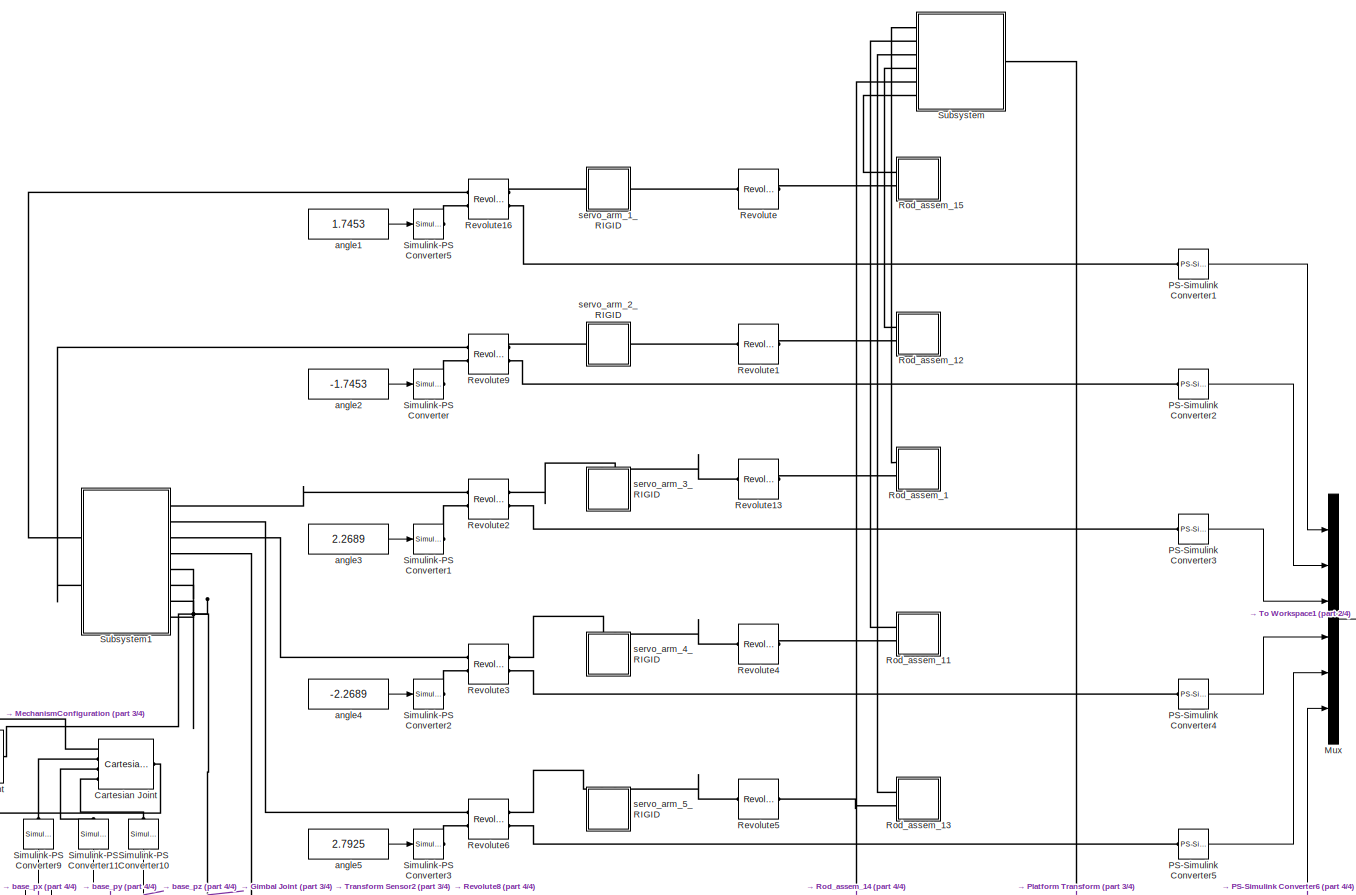
[diagram: root canvas - part 1/4, top center region]
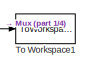
[diagram: root canvas - part 2/4, middle right region]
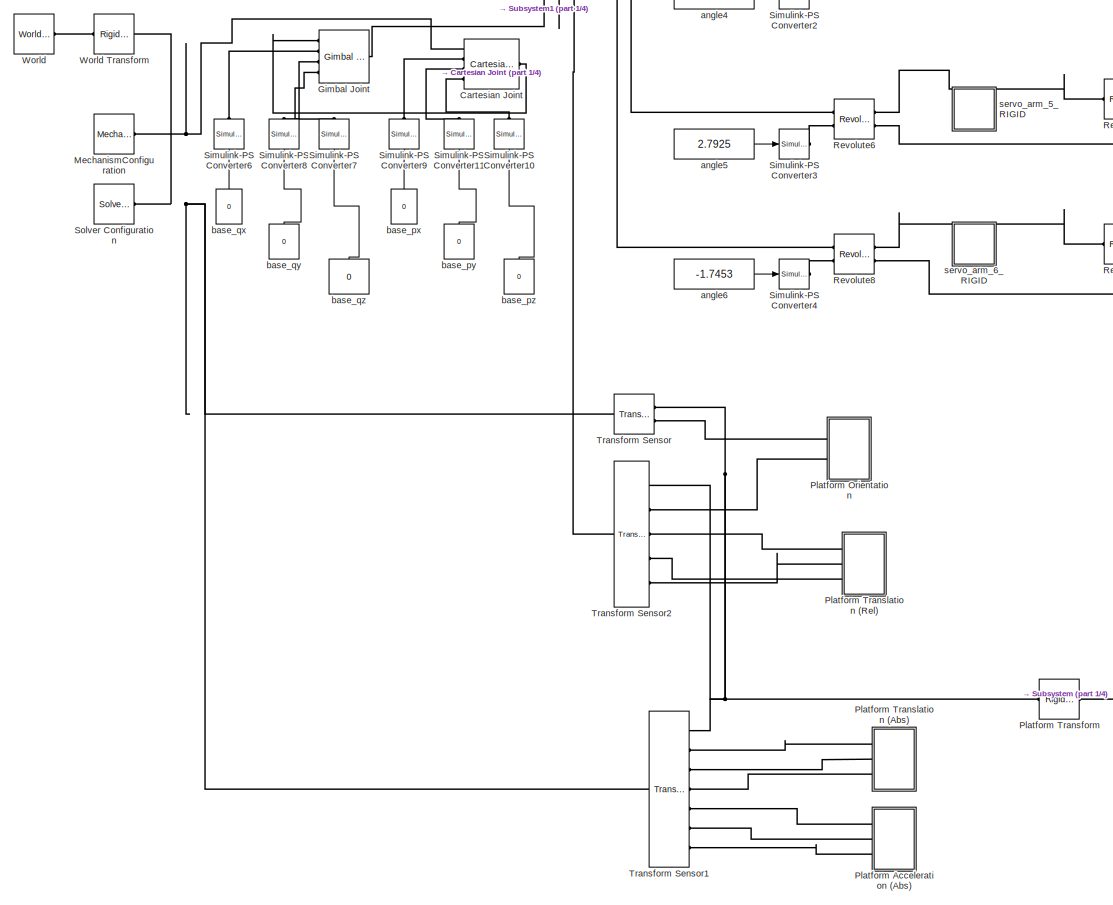
[diagram: root canvas - part 3/4, bottom left region]
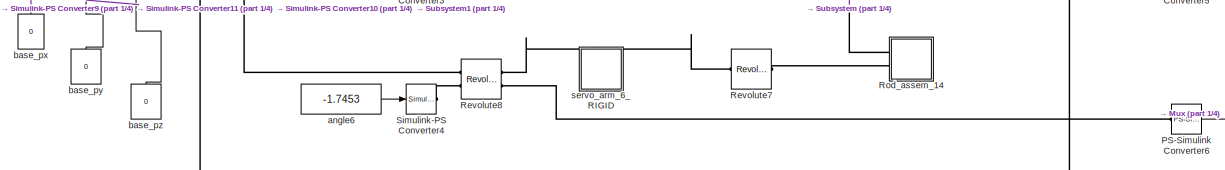
[diagram: root canvas - part 4/4, central region]
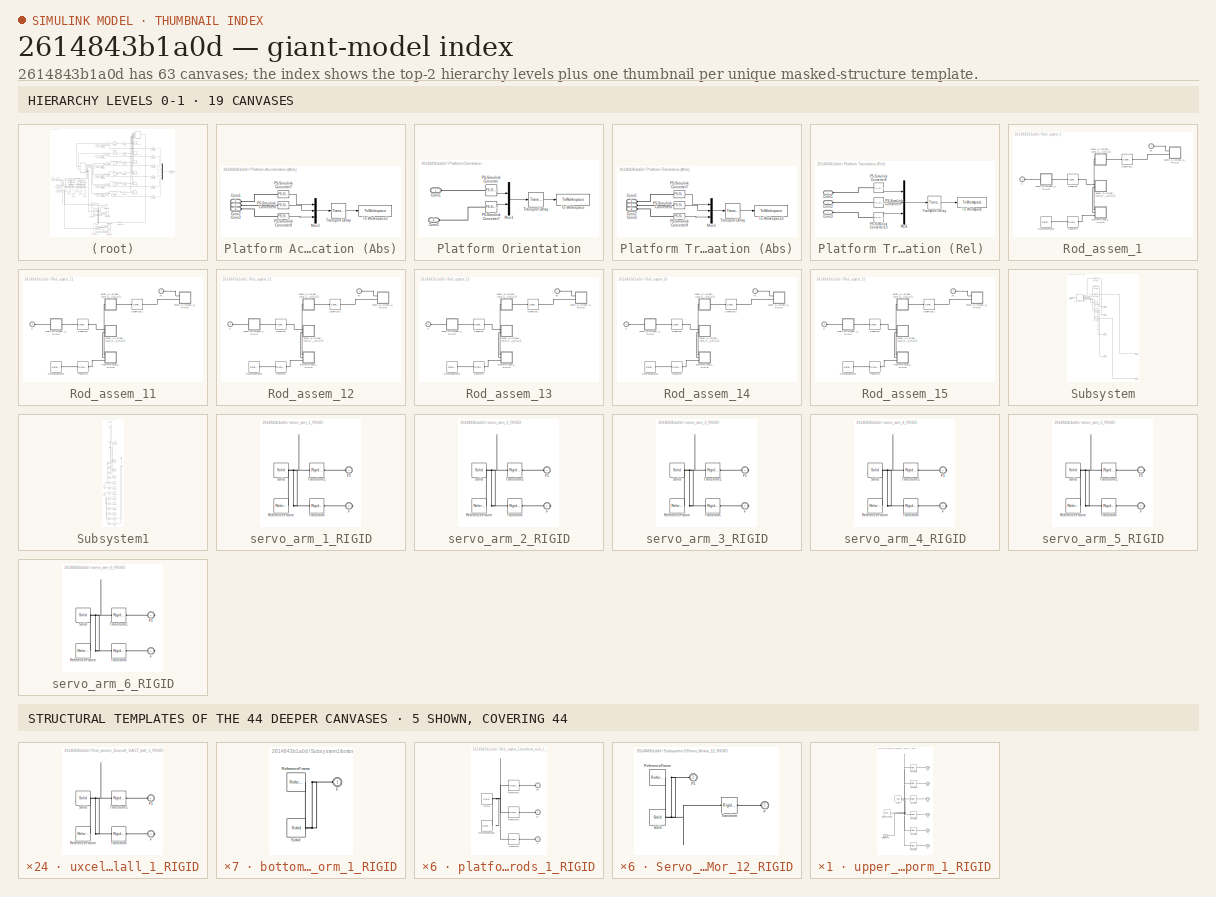
[diagram: thumbnail index - top-2 hierarchy levels (19 canvases) + 5 structural-template representatives of the remaining 44 canvases]
MODEL slx_2614843b1a0d
KIND model
CONFIG AbsTol = auto
CONFIG EnableMultiTasking = off
CONFIG FixedStep = auto
CONFIG MaxStep = auto
CONFIG MinStep = 1e-6
CONFIG RelTol = auto
CONFIG SampleTimeConstraint = Unconstrained
CONFIG Solver = VariableStepAuto
CONFIG SolverName = VariableStepAuto
CONFIG StartTime = 0.0
CONFIG StopTime = inf
WORKSPACE source: external: MATLAB File  (data not in archive)
BLOCK [Reference] Cartesian Joint  REF=sm_lib/Joints/Cartesian
Joint
  Ports = [0, 0, 0, 0, 0, 4, 1]
  SourceBlock = sm_lib/Joints/Cartesian\nJoint
  SourceProductBaseCode = MS
  SourceProductName = Simscape Multibody
  SourceType = Cartesian\nJoint
BLOCK [Reference] Gimbal Joint  REF=sm_lib/Joints/Gimbal Joint
  Ports = [0, 0, 0, 0, 0, 4, 1]
  SourceBlock = sm_lib/Joints/Gimbal Joint
  SourceProductBaseCode = MS
  SourceProductName = Simscape Multibody
  SourceType = Gimbal Joint
BLOCK [Reference] MechanismConfiguration  REF=sm_lib/Utilities/Mechanism
Configuration
  Ports = [0, 0, 0, 0, 0, 0, 1]
  SourceBlock = sm_lib/Utilities/Mechanism\nConfiguration
  SourceProductBaseCode = MS
  SourceProductName = Simscape Multibody
  SourceType = Mechanism\nConfiguration
BLOCK [Mux] Mux
  DisplayOption = bar
  Inputs = 6
  Ports = [6, 1]
BLOCK [Reference] PS-Simulink Converter1  REF=nesl_utility/PS-Simulink
Converter
  Ports = [0, 1, 0, 0, 0, 1]
  SourceBlock = nesl_utility/PS-Simulink\nConverter
  SourceProductBaseCode = SS
  SourceProductName = Simscape
  SourceType = PS-Simulink\nConverter
BLOCK [Reference] PS-Simulink Converter2  REF=nesl_utility/PS-Simulink
Converter
  Ports = [0, 1, 0, 0, 0, 1]
  SourceBlock = nesl_utility/PS-Simulink\nConverter
  SourceProductBaseCode = SS
  SourceProductName = Simscape
  SourceType = PS-Simulink\nConverter
BLOCK [Reference] PS-Simulink Converter3  REF=nesl_utility/PS-Simulink
Converter
  Ports = [0, 1, 0, 0, 0, 1]
  SourceBlock = nesl_utility/PS-Simulink\nConverter
  SourceProductBaseCode = SS
  SourceProductName = Simscape
  SourceType = PS-Simulink\nConverter
BLOCK [Reference] PS-Simulink Converter4  REF=nesl_utility/PS-Simulink
Converter
  Ports = [0, 1, 0, 0, 0, 1]
  SourceBlock = nesl_utility/PS-Simulink\nConverter
  SourceProductBaseCode = SS
  SourceProductName = Simscape
  SourceType = PS-Simulink\nConverter
BLOCK [Reference] PS-Simulink Converter5  REF=nesl_utility/PS-Simulink
Converter
  Ports = [0, 1, 0, 0, 0, 1]
  SourceBlock = nesl_utility/PS-Simulink\nConverter
  SourceProductBaseCode = SS
  SourceProductName = Simscape
  SourceType = PS-Simulink\nConverter
BLOCK [Reference] PS-Simulink Converter6  REF=nesl_utility/PS-Simulink
Converter
  Ports = [0, 1, 0, 0, 0, 1]
  SourceBlock = nesl_utility/PS-Simulink\nConverter
  SourceProductBaseCode = SS
  SourceProductName = Simscape
  SourceType = PS-Simulink\nConverter
BLOCK [SubSystem] Platform Acceleration (Abs)
  Ports = [0, 0, 0, 0, 0, 3]
  RequestExecContextInheritance = off
  Variant = off
BLOCK [PMIOPort] Platform Acceleration (Abs)/Conn1
  Port = 1
  Side = Left
BLOCK [PMIOPort] Platform Acceleration (Abs)/Conn2
  Port = 2
  Side = Left
BLOCK [PMIOPort] Platform Acceleration (Abs)/Conn3
  Port = 3
  Side = Left
BLOCK [Mux] Platform Acceleration (Abs)/Mux1
  DisplayOption = bar
  Inputs = 3
  Ports = [3, 1]
BLOCK [Reference] Platform Acceleration (Abs)/PS-Simulink Converter7  REF=nesl_utility/PS-Simulink
Converter
  Ports = [0, 1, 0, 0, 0, 1]
  SourceBlock = nesl_utility/PS-Simulink\nConverter
  SourceProductBaseCode = SS
  SourceProductName = Simscape
  SourceType = PS-Simulink\nConverter
BLOCK [Reference] Platform Acceleration (Abs)/PS-Simulink Converter8  REF=nesl_utility/PS-Simulink
Converter
  Ports = [0, 1, 0, 0, 0, 1]
  SourceBlock = nesl_utility/PS-Simulink\nConverter
  SourceProductBaseCode = SS
  SourceProductName = Simscape
  SourceType = PS-Simulink\nConverter
BLOCK [Reference] Platform Acceleration (Abs)/PS-Simulink Converter9  REF=nesl_utility/PS-Simulink
Converter
  Ports = [0, 1, 0, 0, 0, 1]
  SourceBlock = nesl_utility/PS-Simulink\nConverter
  SourceProductBaseCode = SS
  SourceProductName = Simscape
  SourceType = PS-Simulink\nConverter
BLOCK [ToWorkspace] Platform Acceleration (Abs)/To Workspace2
  FixptAsFi = on
  MaxDataPoints = inf
  Ports = [1]
  SampleTime = -1
  Save2DSignal = 3-D array (concatenate along third dimension)
  SaveFormat = Structure With Time
  VariableName = platform_acceleration
BLOCK [TransportDelay] Platform Acceleration (Abs)/Transport Delay
  DelayTime = sensor_delay
  Ports = [1, 1]
BLOCK [SubSystem] Platform Orientation
  Ports = [0, 0, 0, 0, 0, 2]
  RequestExecContextInheritance = off
  Variant = off
BLOCK [PMIOPort] Platform Orientation/Conn1
  Port = 1
  Side = Left
BLOCK [PMIOPort] Platform Orientation/Conn2
  Port = 2
  Side = Left
BLOCK [Mux] Platform Orientation/Mux1
  DisplayOption = bar
  Inputs = 2
  Ports = [2, 1]
BLOCK [Reference] Platform Orientation/PS-Simulink Converter  REF=nesl_utility/PS-Simulink
Converter
  Ports = [0, 1, 0, 0, 0, 1]
  SourceBlock = nesl_utility/PS-Simulink\nConverter
  SourceProductBaseCode = SS
  SourceProductName = Simscape
  SourceType = PS-Simulink\nConverter
BLOCK [Reference] Platform Orientation/PS-Simulink Converter7  REF=nesl_utility/PS-Simulink
Converter
  Ports = [0, 1, 0, 0, 0, 1]
  SourceBlock = nesl_utility/PS-Simulink\nConverter
  SourceProductBaseCode = SS
  SourceProductName = Simscape
  SourceType = PS-Simulink\nConverter
BLOCK [ToWorkspace] Platform Orientation/To Workspace
  FixptAsFi = on
  MaxDataPoints = inf
  Ports = [1]
  SampleTime = -1
  Save2DSignal = 3-D array (concatenate along third dimension)
  SaveFormat = Structure With Time
  VariableName = platform_orientation
BLOCK [TransportDelay] Platform Orientation/Transport Delay
  DelayTime = sensor_delay
  Ports = [1, 1]
BLOCK [Reference] Platform Transform   REF=sm_lib/Frames and
Transforms/Rigid
Transform
  Ports = [0, 0, 0, 0, 0, 1, 1]
  SourceBlock = sm_lib/Frames and\nTransforms/Rigid\nTransform
  SourceProductBaseCode = MS
  SourceProductName = Simscape Multibody
  SourceType = Rigid\nTransform
BLOCK [SubSystem] Platform Translation (Abs)
  Ports = [0, 0, 0, 0, 0, 3]
  RequestExecContextInheritance = off
  Variant = off
BLOCK [PMIOPort] Platform Translation (Abs)/Conn1
  Port = 1
  Side = Left
BLOCK [PMIOPort] Platform Translation (Abs)/Conn2
  Port = 2
  Side = Left
BLOCK [PMIOPort] Platform Translation (Abs)/Conn3
  Port = 3
  Side = Left
BLOCK [Mux] Platform Translation (Abs)/Mux1
  DisplayOption = bar
  Inputs = 3
  Ports = [3, 1]
BLOCK [Reference] Platform Translation (Abs)/PS-Simulink Converter7  REF=nesl_utility/PS-Simulink
Converter
  Ports = [0, 1, 0, 0, 0, 1]
  SourceBlock = nesl_utility/PS-Simulink\nConverter
  SourceProductBaseCode = SS
  SourceProductName = Simscape
  SourceType = PS-Simulink\nConverter
BLOCK [Reference] Platform Translation (Abs)/PS-Simulink Converter8  REF=nesl_utility/PS-Simulink
Converter
  Ports = [0, 1, 0, 0, 0, 1]
  SourceBlock = nesl_utility/PS-Simulink\nConverter
  SourceProductBaseCode = SS
  SourceProductName = Simscape
  SourceType = PS-Simulink\nConverter
BLOCK [Reference] Platform Translation (Abs)/PS-Simulink Converter9  REF=nesl_utility/PS-Simulink
Converter
  Ports = [0, 1, 0, 0, 0, 1]
  SourceBlock = nesl_utility/PS-Simulink\nConverter
  SourceProductBaseCode = SS
  SourceProductName = Simscape
  SourceType = PS-Simulink\nConverter
BLOCK [ToWorkspace] Platform Translation (Abs)/To Workspace2
  FixptAsFi = on
  MaxDataPoints = inf
  Ports = [1]
  SampleTime = -1
  Save2DSignal = 3-D array (concatenate along third dimension)
  SaveFormat = Structure With Time
  VariableName = platform_translation_abs
BLOCK [TransportDelay] Platform Translation (Abs)/Transport Delay
  DelayTime = sensor_delay
  Ports = [1, 1]
BLOCK [SubSystem] Platform Translation (Rel) 
  Ports = [0, 0, 0, 0, 0, 3]
  RequestExecContextInheritance = off
  Variant = off
BLOCK [PMIOPort] Platform Translation (Rel) /Conn1
  Port = 1
  Side = Left
BLOCK [PMIOPort] Platform Translation (Rel) /Conn2
  Port = 2
  Side = Left
BLOCK [PMIOPort] Platform Translation (Rel) /Conn3
  Port = 3
  Side = Left
BLOCK [Mux] Platform Translation (Rel) /Mux1
  DisplayOption = bar
  Inputs = 3
  Ports = [3, 1]
BLOCK [Reference] Platform Translation (Rel) /PS-Simulink Converter10  REF=nesl_utility/PS-Simulink
Converter
  Ports = [0, 1, 0, 0, 0, 1]
  SourceBlock = nesl_utility/PS-Simulink\nConverter
  SourceProductBaseCode = SS
  SourceProductName = Simscape
  SourceType = PS-Simulink\nConverter
BLOCK [Reference] Platform Translation (Rel) /PS-Simulink Converter8  REF=nesl_utility/PS-Simulink
Converter
  Ports = [0, 1, 0, 0, 0, 1]
  SourceBlock = nesl_utility/PS-Simulink\nConverter
  SourceProductBaseCode = SS
  SourceProductName = Simscape
  SourceType = PS-Simulink\nConverter
BLOCK [Reference] Platform Translation (Rel) /PS-Simulink Converter9  REF=nesl_utility/PS-Simulink
Converter
  Ports = [0, 1, 0, 0, 0, 1]
  SourceBlock = nesl_utility/PS-Simulink\nConverter
  SourceProductBaseCode = SS
  SourceProductName = Simscape
  SourceType = PS-Simulink\nConverter
BLOCK [ToWorkspace] Platform Translation (Rel) /To Workspace
  FixptAsFi = on
  MaxDataPoints = inf
  Ports = [1]
  SampleTime = -1
  Save2DSignal = 3-D array (concatenate along third dimension)
  SaveFormat = Structure With Time
  VariableName = platform_translation_rel
BLOCK [TransportDelay] Platform Translation (Rel) /Transport Delay
  DelayTime = sensor_delay
  Ports = [1, 1]
BLOCK [Reference] Revolute  REF=sm_lib/Joints/Revolute Joint
  Ports = [0, 0, 0, 0, 0, 1, 1]
  SourceBlock = sm_lib/Joints/Revolute Joint
  SourceProductBaseCode = MS
  SourceProductName = Simscape Multibody
  SourceType = Revolute Joint
BLOCK [Reference] Revolute1  REF=sm_lib/Joints/Revolute Joint
  Ports = [0, 0, 0, 0, 0, 1, 1]
  SourceBlock = sm_lib/Joints/Revolute Joint
  SourceProductBaseCode = MS
  SourceProductName = Simscape Multibody
  SourceType = Revolute Joint
BLOCK [Reference] Revolute13  REF=sm_lib/Joints/Revolute Joint
  Ports = [0, 0, 0, 0, 0, 1, 1]
  SourceBlock = sm_lib/Joints/Revolute Joint
  SourceProductBaseCode = MS
  SourceProductName = Simscape Multibody
  SourceType = Revolute Joint
BLOCK [Reference] Revolute16  REF=sm_lib/Joints/Revolute Joint
  Ports = [0, 0, 0, 0, 0, 2, 2]
  SourceBlock = sm_lib/Joints/Revolute Joint
  SourceProductBaseCode = MS
  SourceProductName = Simscape Multibody
  SourceType = Revolute Joint
BLOCK [Reference] Revolute2  REF=sm_lib/Joints/Revolute Joint
  Ports = [0, 0, 0, 0, 0, 2, 2]
  SourceBlock = sm_lib/Joints/Revolute Joint
  SourceProductBaseCode = MS
  SourceProductName = Simscape Multibody
  SourceType = Revolute Joint
BLOCK [Reference] Revolute3  REF=sm_lib/Joints/Revolute Joint
  Ports = [0, 0, 0, 0, 0, 2, 2]
  SourceBlock = sm_lib/Joints/Revolute Joint
  SourceProductBaseCode = MS
  SourceProductName = Simscape Multibody
  SourceType = Revolute Joint
BLOCK [Reference] Revolute4  REF=sm_lib/Joints/Revolute Joint
  Ports = [0, 0, 0, 0, 0, 1, 1]
  SourceBlock = sm_lib/Joints/Revolute Joint
  SourceProductBaseCode = MS
  SourceProductName = Simscape Multibody
  SourceType = Revolute Joint
BLOCK [Reference] Revolute5  REF=sm_lib/Joints/Revolute Joint
  Ports = [0, 0, 0, 0, 0, 1, 1]
  SourceBlock = sm_lib/Joints/Revolute Joint
  SourceProductBaseCode = MS
  SourceProductName = Simscape Multibody
  SourceType = Revolute Joint
BLOCK [Reference] Revolute6  REF=sm_lib/Joints/Revolute Joint
  Ports = [0, 0, 0, 0, 0, 2, 2]
  SourceBlock = sm_lib/Joints/Revolute Joint
  SourceProductBaseCode = MS
  SourceProductName = Simscape Multibody
  SourceType = Revolute Joint
BLOCK [Reference] Revolute7  REF=sm_lib/Joints/Revolute Joint
  Ports = [0, 0, 0, 0, 0, 1, 1]
  SourceBlock = sm_lib/Joints/Revolute Joint
  SourceProductBaseCode = MS
  SourceProductName = Simscape Multibody
  SourceType = Revolute Joint
BLOCK [Reference] Revolute8  REF=sm_lib/Joints/Revolute Joint
  Ports = [0, 0, 0, 0, 0, 2, 2]
  SourceBlock = sm_lib/Joints/Revolute Joint
  SourceProductBaseCode = MS
  SourceProductName = Simscape Multibody
  SourceType = Revolute Joint
BLOCK [Reference] Revolute9  REF=sm_lib/Joints/Revolute Joint
  Ports = [0, 0, 0, 0, 0, 2, 2]
  SourceBlock = sm_lib/Joints/Revolute Joint
  SourceProductBaseCode = MS
  SourceProductName = Simscape Multibody
  SourceType = Revolute Joint
BLOCK [SubSystem] Rod_assem_1
  Ports = [0, 0, 0, 0, 0, 2]
  RequestExecContextInheritance = off
  Variant = off
BLOCK [PMIOPort] Rod_assem_1/F
  Port = 2
  Side = Left
BLOCK [PMIOPort] Rod_assem_1/F1
  Port = 1
  Side = Left
BLOCK [Reference] Rod_assem_1/ReferenceFrame  REF=sm_lib/Frames and
Transforms/Reference
Frame
  Ports = [0, 0, 0, 0, 0, 0, 1]
  SourceBlock = sm_lib/Frames and\nTransforms/Reference\nFrame
  SourceProductBaseCode = MS
  SourceProductName = Simscape Multibody
  SourceType = Reference\nFrame
BLOCK [Reference] Rod_assem_1/Spherical  REF=sm_lib/Joints/Spherical
Joint
  Ports = [0, 0, 0, 0, 0, 1, 1]
  SourceBlock = sm_lib/Joints/Spherical\nJoint
  SourceProductBaseCode = MS
  SourceProductName = Simscape Multibody
  SourceType = Spherical\nJoint
BLOCK [Reference] Rod_assem_1/Spherical1  REF=sm_lib/Joints/Spherical
Joint
  Ports = [0, 0, 0, 0, 0, 1, 1]
  SourceBlock = sm_lib/Joints/Spherical\nJoint
  SourceProductBaseCode = MS
  SourceProductName = Simscape Multibody
  SourceType = Spherical\nJoint
BLOCK [Reference] Rod_assem_1/Transform  REF=sm_lib/Frames and
Transforms/Rigid
Transform
  Ports = [0, 0, 0, 0, 0, 1, 1]
  SourceBlock = sm_lib/Frames and\nTransforms/Rigid\nTransform
  SourceProductBaseCode = MS
  SourceProductName = Simscape Multibody
  SourceType = Rigid\nTransform
BLOCK [SubSystem] Rod_assem_1/platform_rods_1_RIGID
  Ports = [0, 0, 0, 0, 0, 3]
  RequestExecContextInheritance = off
  Variant = off
BLOCK [PMIOPort] Rod_assem_1/platform_rods_1_RIGID/F
  Port = 3
  Side = Left
BLOCK [PMIOPort] Rod_assem_1/platform_rods_1_RIGID/F1
  Port = 2
  Side = Left
BLOCK [PMIOPort] Rod_assem_1/platform_rods_1_RIGID/F2
  Port = 1
  Side = Left
BLOCK [Reference] Rod_assem_1/platform_rods_1_RIGID/ReferenceFrame  REF=sm_lib/Frames and
Transforms/Reference
Frame
  Ports = [0, 0, 0, 0, 0, 0, 1]
  SourceBlock = sm_lib/Frames and\nTransforms/Reference\nFrame
  SourceProductBaseCode = MS
  SourceProductName = Simscape Multibody
  SourceType = Reference\nFrame
BLOCK [Reference] Rod_assem_1/platform_rods_1_RIGID/Solid  REF=sm_lib/Body Elements/Solid
  Ports = [0, 0, 0, 0, 0, 0, 1]
  SourceBlock = sm_lib/Body Elements/Solid
  SourceProductBaseCode = MS
  SourceProductName = Simscape Multibody
  SourceType = Solid
BLOCK [Reference] Rod_assem_1/platform_rods_1_RIGID/Transform  REF=sm_lib/Frames and
Transforms/Rigid
Transform
  Ports = [0, 0, 0, 0, 0, 1, 1]
  SourceBlock = sm_lib/Frames and\nTransforms/Rigid\nTransform
  SourceProductBaseCode = MS
  SourceProductName = Simscape Multibody
  SourceType = Rigid\nTransform
BLOCK [Reference] Rod_assem_1/platform_rods_1_RIGID/Transform1  REF=sm_lib/Frames and
Transforms/Rigid
Transform
  Ports = [0, 0, 0, 0, 0, 1, 1]
  SourceBlock = sm_lib/Frames and\nTransforms/Rigid\nTransform
  SourceProductBaseCode = MS
  SourceProductName = Simscape Multibody
  SourceType = Rigid\nTransform
BLOCK [Reference] Rod_assem_1/platform_rods_1_RIGID/Transform2  REF=sm_lib/Frames and
Transforms/Rigid
Transform
  Ports = [0, 0, 0, 0, 0, 1, 1]
  SourceBlock = sm_lib/Frames and\nTransforms/Rigid\nTransform
  SourceProductBaseCode = MS
  SourceProductName = Simscape Multibody
  SourceType = Rigid\nTransform
BLOCK [SubSystem] Rod_assem_1/uxcell_SA5T_ball_1_RIGID
  Ports = [0, 0, 0, 0, 0, 1, 1]
  RequestExecContextInheritance = off
  Variant = off
BLOCK [PMIOPort] Rod_assem_1/uxcell_SA5T_ball_1_RIGID/F
  Port = 2
  Side = Right
BLOCK [PMIOPort] Rod_assem_1/uxcell_SA5T_ball_1_RIGID/F1
  Port = 1
  Side = Left
BLOCK [Reference] Rod_assem_1/uxcell_SA5T_ball_1_RIGID/ReferenceFrame  REF=sm_lib/Frames and
Transforms/Reference
Frame
  Ports = [0, 0, 0, 0, 0, 0, 1]
  SourceBlock = sm_lib/Frames and\nTransforms/Reference\nFrame
  SourceProductBaseCode = MS
  SourceProductName = Simscape Multibody
  SourceType = Reference\nFrame
BLOCK [Reference] Rod_assem_1/uxcell_SA5T_ball_1_RIGID/Solid  REF=sm_lib/Body Elements/Solid
  Ports = [0, 0, 0, 0, 0, 0, 1]
  SourceBlock = sm_lib/Body Elements/Solid
  SourceProductBaseCode = MS
  SourceProductName = Simscape Multibody
  SourceType = Solid
BLOCK [Reference] Rod_assem_1/uxcell_SA5T_ball_1_RIGID/Transform  REF=sm_lib/Frames and
Transforms/Rigid
Transform
  Ports = [0, 0, 0, 0, 0, 1, 1]
  SourceBlock = sm_lib/Frames and\nTransforms/Rigid\nTransform
  SourceProductBaseCode = MS
  SourceProductName = Simscape Multibody
  SourceType = Rigid\nTransform
BLOCK [Reference] Rod_assem_1/uxcell_SA5T_ball_1_RIGID/Transform1  REF=sm_lib/Frames and
Transforms/Rigid
Transform
  Ports = [0, 0, 0, 0, 0, 1, 1]
  SourceBlock = sm_lib/Frames and\nTransforms/Rigid\nTransform
  SourceProductBaseCode = MS
  SourceProductName = Simscape Multibody
  SourceType = Rigid\nTransform
BLOCK [SubSystem] Rod_assem_1/uxcell_SA5T_ball_2_RIGID
  Ports = [0, 0, 0, 0, 0, 2]
  RequestExecContextInheritance = off
  Variant = off
BLOCK [PMIOPort] Rod_assem_1/uxcell_SA5T_ball_2_RIGID/F
  Port = 2
  Side = Left
BLOCK [PMIOPort] Rod_assem_1/uxcell_SA5T_ball_2_RIGID/F1
  Port = 1
  Side = Left
BLOCK [Reference] Rod_assem_1/uxcell_SA5T_ball_2_RIGID/ReferenceFrame  REF=sm_lib/Frames and
Transforms/Reference
Frame
  Ports = [0, 0, 0, 0, 0, 0, 1]
  SourceBlock = sm_lib/Frames and\nTransforms/Reference\nFrame
  SourceProductBaseCode = MS
  SourceProductName = Simscape Multibody
  SourceType = Reference\nFrame
BLOCK [Reference] Rod_assem_1/uxcell_SA5T_ball_2_RIGID/Solid  REF=sm_lib/Body Elements/Solid
  Ports = [0, 0, 0, 0, 0, 0, 1]
  SourceBlock = sm_lib/Body Elements/Solid
  SourceProductBaseCode = MS
  SourceProductName = Simscape Multibody
  SourceType = Solid
BLOCK [Reference] Rod_assem_1/uxcell_SA5T_ball_2_RIGID/Transform  REF=sm_lib/Frames and
Transforms/Rigid
Transform
  Ports = [0, 0, 0, 0, 0, 1, 1]
  SourceBlock = sm_lib/Frames and\nTransforms/Rigid\nTransform
  SourceProductBaseCode = MS
  SourceProductName = Simscape Multibody
  SourceType = Rigid\nTransform
BLOCK [Reference] Rod_assem_1/uxcell_SA5T_ball_2_RIGID/Transform1  REF=sm_lib/Frames and
Transforms/Rigid
Transform
  Ports = [0, 0, 0, 0, 0, 1, 1]
  SourceBlock = sm_lib/Frames and\nTransforms/Rigid\nTransform
  SourceProductBaseCode = MS
  SourceProductName = Simscape Multibody
  SourceType = Rigid\nTransform
BLOCK [SubSystem] Rod_assem_1/uxcell_SA5T_ball_joint_housing_1_RIGID
  Ports = [0, 0, 0, 0, 0, 2]
  RequestExecContextInheritance = off
  Variant = off
BLOCK [PMIOPort] Rod_assem_1/uxcell_SA5T_ball_joint_housing_1_RIGID/F
  Port = 2
  Side = Left
BLOCK [PMIOPort] Rod_assem_1/uxcell_SA5T_ball_joint_housing_1_RIGID/F1
  Port = 1
  Side = Left
BLOCK [Reference] Rod_assem_1/uxcell_SA5T_ball_joint_housing_1_RIGID/ReferenceFrame  REF=sm_lib/Frames and
Transforms/Reference
Frame
  Ports = [0, 0, 0, 0, 0, 0, 1]
  SourceBlock = sm_lib/Frames and\nTransforms/Reference\nFrame
  SourceProductBaseCode = MS
  SourceProductName = Simscape Multibody
  SourceType = Reference\nFrame
BLOCK [Reference] Rod_assem_1/uxcell_SA5T_ball_joint_housing_1_RIGID/Solid  REF=sm_lib/Body Elements/Solid
  Ports = [0, 0, 0, 0, 0, 0, 1]
  SourceBlock = sm_lib/Body Elements/Solid
  SourceProductBaseCode = MS
  SourceProductName = Simscape Multibody
  SourceType = Solid
BLOCK [Reference] Rod_assem_1/uxcell_SA5T_ball_joint_housing_1_RIGID/Transform  REF=sm_lib/Frames and
Transforms/Rigid
Transform
  Ports = [0, 0, 0, 0, 0, 1, 1]
  SourceBlock = sm_lib/Frames and\nTransforms/Rigid\nTransform
  SourceProductBaseCode = MS
  SourceProductName = Simscape Multibody
  SourceType = Rigid\nTransform
BLOCK [Reference] Rod_assem_1/uxcell_SA5T_ball_joint_housing_1_RIGID/Transform1  REF=sm_lib/Frames and
Transforms/Rigid
Transform
  Ports = [0, 0, 0, 0, 0, 1, 1]
  SourceBlock = sm_lib/Frames and\nTransforms/Rigid\nTransform
  SourceProductBaseCode = MS
  SourceProductName = Simscape Multibody
  SourceType = Rigid\nTransform
BLOCK [SubSystem] Rod_assem_1/uxcell_SA5T_ball_joint_housing_2_RIGID
  Ports = [0, 0, 0, 0, 0, 1, 1]
  RequestExecContextInheritance = off
  Variant = off
BLOCK [PMIOPort] Rod_assem_1/uxcell_SA5T_ball_joint_housing_2_RIGID/F
  Port = 1
  Side = Left
BLOCK [PMIOPort] Rod_assem_1/uxcell_SA5T_ball_joint_housing_2_RIGID/F1
  Port = 2
  Side = Right
BLOCK [Reference] Rod_assem_1/uxcell_SA5T_ball_joint_housing_2_RIGID/ReferenceFrame  REF=sm_lib/Frames and
Transforms/Reference
Frame
  Ports = [0, 0, 0, 0, 0, 0, 1]
  SourceBlock = sm_lib/Frames and\nTransforms/Reference\nFrame
  SourceProductBaseCode = MS
  SourceProductName = Simscape Multibody
  SourceType = Reference\nFrame
BLOCK [Reference] Rod_assem_1/uxcell_SA5T_ball_joint_housing_2_RIGID/Solid  REF=sm_lib/Body Elements/Solid
  Ports = [0, 0, 0, 0, 0, 0, 1]
  SourceBlock = sm_lib/Body Elements/Solid
  SourceProductBaseCode = MS
  SourceProductName = Simscape Multibody
  SourceType = Solid
BLOCK [Reference] Rod_assem_1/uxcell_SA5T_ball_joint_housing_2_RIGID/Transform  REF=sm_lib/Frames and
Transforms/Rigid
Transform
  Ports = [0, 0, 0, 0, 0, 1, 1]
  SourceBlock = sm_lib/Frames and\nTransforms/Rigid\nTransform
  SourceProductBaseCode = MS
  SourceProductName = Simscape Multibody
  SourceType = Rigid\nTransform
BLOCK [Reference] Rod_assem_1/uxcell_SA5T_ball_joint_housing_2_RIGID/Transform1  REF=sm_lib/Frames and
Transforms/Rigid
Transform
  Ports = [0, 0, 0, 0, 0, 1, 1]
  SourceBlock = sm_lib/Frames and\nTransforms/Rigid\nTransform
  SourceProductBaseCode = MS
  SourceProductName = Simscape Multibody
  SourceType = Rigid\nTransform
BLOCK [SubSystem] Rod_assem_11
  Ports = [0, 0, 0, 0, 0, 2]
  RequestExecContextInheritance = off
  Variant = off
BLOCK [PMIOPort] Rod_assem_11/F
  Port = 2
  Side = Left
BLOCK [PMIOPort] Rod_assem_11/F1
  Port = 1
  Side = Left
BLOCK [Reference] Rod_assem_11/ReferenceFrame  REF=sm_lib/Frames and
Transforms/Reference
Frame
  Ports = [0, 0, 0, 0, 0, 0, 1]
  SourceBlock = sm_lib/Frames and\nTransforms/Reference\nFrame
  SourceProductBaseCode = MS
  SourceProductName = Simscape Multibody
  SourceType = Reference\nFrame
BLOCK [Reference] Rod_assem_11/Spherical  REF=sm_lib/Joints/Spherical
Joint
  Ports = [0, 0, 0, 0, 0, 1, 1]
  SourceBlock = sm_lib/Joints/Spherical\nJoint
  SourceProductBaseCode = MS
  SourceProductName = Simscape Multibody
  SourceType = Spherical\nJoint
BLOCK [Reference] Rod_assem_11/Spherical1  REF=sm_lib/Joints/Spherical
Joint
  Ports = [0, 0, 0, 0, 0, 1, 1]
  SourceBlock = sm_lib/Joints/Spherical\nJoint
  SourceProductBaseCode = MS
  SourceProductName = Simscape Multibody
  SourceType = Spherical\nJoint
BLOCK [Reference] Rod_assem_11/Transform  REF=sm_lib/Frames and
Transforms/Rigid
Transform
  Ports = [0, 0, 0, 0, 0, 1, 1]
  SourceBlock = sm_lib/Frames and\nTransforms/Rigid\nTransform
  SourceProductBaseCode = MS
  SourceProductName = Simscape Multibody
  SourceType = Rigid\nTransform
BLOCK [SubSystem] Rod_assem_11/platform_rods_1_RIGID
  Ports = [0, 0, 0, 0, 0, 3]
  RequestExecContextInheritance = off
  Variant = off
BLOCK [PMIOPort] Rod_assem_11/platform_rods_1_RIGID/F
  Port = 3
  Side = Left
BLOCK [PMIOPort] Rod_assem_11/platform_rods_1_RIGID/F1
  Port = 2
  Side = Left
BLOCK [PMIOPort] Rod_assem_11/platform_rods_1_RIGID/F2
  Port = 1
  Side = Left
BLOCK [Reference] Rod_assem_11/platform_rods_1_RIGID/ReferenceFrame  REF=sm_lib/Frames and
Transforms/Reference
Frame
  Ports = [0, 0, 0, 0, 0, 0, 1]
  SourceBlock = sm_lib/Frames and\nTransforms/Reference\nFrame
  SourceProductBaseCode = MS
  SourceProductName = Simscape Multibody
  SourceType = Reference\nFrame
BLOCK [Reference] Rod_assem_11/platform_rods_1_RIGID/Solid  REF=sm_lib/Body Elements/Solid
  Ports = [0, 0, 0, 0, 0, 0, 1]
  SourceBlock = sm_lib/Body Elements/Solid
  SourceProductBaseCode = MS
  SourceProductName = Simscape Multibody
  SourceType = Solid
BLOCK [Reference] Rod_assem_11/platform_rods_1_RIGID/Transform  REF=sm_lib/Frames and
Transforms/Rigid
Transform
  Ports = [0, 0, 0, 0, 0, 1, 1]
  SourceBlock = sm_lib/Frames and\nTransforms/Rigid\nTransform
  SourceProductBaseCode = MS
  SourceProductName = Simscape Multibody
  SourceType = Rigid\nTransform
BLOCK [Reference] Rod_assem_11/platform_rods_1_RIGID/Transform1  REF=sm_lib/Frames and
Transforms/Rigid
Transform
  Ports = [0, 0, 0, 0, 0, 1, 1]
  SourceBlock = sm_lib/Frames and\nTransforms/Rigid\nTransform
  SourceProductBaseCode = MS
  SourceProductName = Simscape Multibody
  SourceType = Rigid\nTransform
BLOCK [Reference] Rod_assem_11/platform_rods_1_RIGID/Transform2  REF=sm_lib/Frames and
Transforms/Rigid
Transform
  Ports = [0, 0, 0, 0, 0, 1, 1]
  SourceBlock = sm_lib/Frames and\nTransforms/Rigid\nTransform
  SourceProductBaseCode = MS
  SourceProductName = Simscape Multibody
  SourceType = Rigid\nTransform
BLOCK [SubSystem] Rod_assem_11/uxcell_SA5T_ball_1_RIGID
  Ports = [0, 0, 0, 0, 0, 1, 1]
  RequestExecContextInheritance = off
  Variant = off
BLOCK [PMIOPort] Rod_assem_11/uxcell_SA5T_ball_1_RIGID/F
  Port = 2
  Side = Right
BLOCK [PMIOPort] Rod_assem_11/uxcell_SA5T_ball_1_RIGID/F1
  Port = 1
  Side = Left
BLOCK [Reference] Rod_assem_11/uxcell_SA5T_ball_1_RIGID/ReferenceFrame  REF=sm_lib/Frames and
Transforms/Reference
Frame
  Ports = [0, 0, 0, 0, 0, 0, 1]
  SourceBlock = sm_lib/Frames and\nTransforms/Reference\nFrame
  SourceProductBaseCode = MS
  SourceProductName = Simscape Multibody
  SourceType = Reference\nFrame
BLOCK [Reference] Rod_assem_11/uxcell_SA5T_ball_1_RIGID/Solid  REF=sm_lib/Body Elements/Solid
  Ports = [0, 0, 0, 0, 0, 0, 1]
  SourceBlock = sm_lib/Body Elements/Solid
  SourceProductBaseCode = MS
  SourceProductName = Simscape Multibody
  SourceType = Solid
BLOCK [Reference] Rod_assem_11/uxcell_SA5T_ball_1_RIGID/Transform  REF=sm_lib/Frames and
Transforms/Rigid
Transform
  Ports = [0, 0, 0, 0, 0, 1, 1]
  SourceBlock = sm_lib/Frames and\nTransforms/Rigid\nTransform
  SourceProductBaseCode = MS
  SourceProductName = Simscape Multibody
  SourceType = Rigid\nTransform
BLOCK [Reference] Rod_assem_11/uxcell_SA5T_ball_1_RIGID/Transform1  REF=sm_lib/Frames and
Transforms/Rigid
Transform
  Ports = [0, 0, 0, 0, 0, 1, 1]
  SourceBlock = sm_lib/Frames and\nTransforms/Rigid\nTransform
  SourceProductBaseCode = MS
  SourceProductName = Simscape Multibody
  SourceType = Rigid\nTransform
BLOCK [SubSystem] Rod_assem_11/uxcell_SA5T_ball_2_RIGID
  Ports = [0, 0, 0, 0, 0, 2]
  RequestExecContextInheritance = off
  Variant = off
BLOCK [PMIOPort] Rod_assem_11/uxcell_SA5T_ball_2_RIGID/F
  Port = 2
  Side = Left
BLOCK [PMIOPort] Rod_assem_11/uxcell_SA5T_ball_2_RIGID/F1
  Port = 1
  Side = Left
BLOCK [Reference] Rod_assem_11/uxcell_SA5T_ball_2_RIGID/ReferenceFrame  REF=sm_lib/Frames and
Transforms/Reference
Frame
  Ports = [0, 0, 0, 0, 0, 0, 1]
  SourceBlock = sm_lib/Frames and\nTransforms/Reference\nFrame
  SourceProductBaseCode = MS
  SourceProductName = Simscape Multibody
  SourceType = Reference\nFrame
BLOCK [Reference] Rod_assem_11/uxcell_SA5T_ball_2_RIGID/Solid  REF=sm_lib/Body Elements/Solid
  Ports = [0, 0, 0, 0, 0, 0, 1]
  SourceBlock = sm_lib/Body Elements/Solid
  SourceProductBaseCode = MS
  SourceProductName = Simscape Multibody
  SourceType = Solid
BLOCK [Reference] Rod_assem_11/uxcell_SA5T_ball_2_RIGID/Transform  REF=sm_lib/Frames and
Transforms/Rigid
Transform
  Ports = [0, 0, 0, 0, 0, 1, 1]
  SourceBlock = sm_lib/Frames and\nTransforms/Rigid\nTransform
  SourceProductBaseCode = MS
  SourceProductName = Simscape Multibody
  SourceType = Rigid\nTransform
BLOCK [Reference] Rod_assem_11/uxcell_SA5T_ball_2_RIGID/Transform1  REF=sm_lib/Frames and
Transforms/Rigid
Transform
  Ports = [0, 0, 0, 0, 0, 1, 1]
  SourceBlock = sm_lib/Frames and\nTransforms/Rigid\nTransform
  SourceProductBaseCode = MS
  SourceProductName = Simscape Multibody
  SourceType = Rigid\nTransform
BLOCK [SubSystem] Rod_assem_11/uxcell_SA5T_ball_joint_housing_1_RIGID
  Ports = [0, 0, 0, 0, 0, 2]
  RequestExecContextInheritance = off
  Variant = off
BLOCK [PMIOPort] Rod_assem_11/uxcell_SA5T_ball_joint_housing_1_RIGID/F
  Port = 2
  Side = Left
BLOCK [PMIOPort] Rod_assem_11/uxcell_SA5T_ball_joint_housing_1_RIGID/F1
  Port = 1
  Side = Left
BLOCK [Reference] Rod_assem_11/uxcell_SA5T_ball_joint_housing_1_RIGID/ReferenceFrame  REF=sm_lib/Frames and
Transforms/Reference
Frame
  Ports = [0, 0, 0, 0, 0, 0, 1]
  SourceBlock = sm_lib/Frames and\nTransforms/Reference\nFrame
  SourceProductBaseCode = MS
  SourceProductName = Simscape Multibody
  SourceType = Reference\nFrame
BLOCK [Reference] Rod_assem_11/uxcell_SA5T_ball_joint_housing_1_RIGID/Solid  REF=sm_lib/Body Elements/Solid
  Ports = [0, 0, 0, 0, 0, 0, 1]
  SourceBlock = sm_lib/Body Elements/Solid
  SourceProductBaseCode = MS
  SourceProductName = Simscape Multibody
  SourceType = Solid
BLOCK [Reference] Rod_assem_11/uxcell_SA5T_ball_joint_housing_1_RIGID/Transform  REF=sm_lib/Frames and
Transforms/Rigid
Transform
  Ports = [0, 0, 0, 0, 0, 1, 1]
  SourceBlock = sm_lib/Frames and\nTransforms/Rigid\nTransform
  SourceProductBaseCode = MS
  SourceProductName = Simscape Multibody
  SourceType = Rigid\nTransform
BLOCK [Reference] Rod_assem_11/uxcell_SA5T_ball_joint_housing_1_RIGID/Transform1  REF=sm_lib/Frames and
Transforms/Rigid
Transform
  Ports = [0, 0, 0, 0, 0, 1, 1]
  SourceBlock = sm_lib/Frames and\nTransforms/Rigid\nTransform
  SourceProductBaseCode = MS
  SourceProductName = Simscape Multibody
  SourceType = Rigid\nTransform
BLOCK [SubSystem] Rod_assem_11/uxcell_SA5T_ball_joint_housing_2_RIGID
  Ports = [0, 0, 0, 0, 0, 1, 1]
  RequestExecContextInheritance = off
  Variant = off
BLOCK [PMIOPort] Rod_assem_11/uxcell_SA5T_ball_joint_housing_2_RIGID/F
  Port = 1
  Side = Left
BLOCK [PMIOPort] Rod_assem_11/uxcell_SA5T_ball_joint_housing_2_RIGID/F1
  Port = 2
  Side = Right
BLOCK [Reference] Rod_assem_11/uxcell_SA5T_ball_joint_housing_2_RIGID/ReferenceFrame  REF=sm_lib/Frames and
Transforms/Reference
Frame
  Ports = [0, 0, 0, 0, 0, 0, 1]
  SourceBlock = sm_lib/Frames and\nTransforms/Reference\nFrame
  SourceProductBaseCode = MS
  SourceProductName = Simscape Multibody
  SourceType = Reference\nFrame
BLOCK [Reference] Rod_assem_11/uxcell_SA5T_ball_joint_housing_2_RIGID/Solid  REF=sm_lib/Body Elements/Solid
  Ports = [0, 0, 0, 0, 0, 0, 1]
  SourceBlock = sm_lib/Body Elements/Solid
  SourceProductBaseCode = MS
  SourceProductName = Simscape Multibody
  SourceType = Solid
BLOCK [Reference] Rod_assem_11/uxcell_SA5T_ball_joint_housing_2_RIGID/Transform  REF=sm_lib/Frames and
Transforms/Rigid
Transform
  Ports = [0, 0, 0, 0, 0, 1, 1]
  SourceBlock = sm_lib/Frames and\nTransforms/Rigid\nTransform
  SourceProductBaseCode = MS
  SourceProductName = Simscape Multibody
  SourceType = Rigid\nTransform
BLOCK [Reference] Rod_assem_11/uxcell_SA5T_ball_joint_housing_2_RIGID/Transform1  REF=sm_lib/Frames and
Transforms/Rigid
Transform
  Ports = [0, 0, 0, 0, 0, 1, 1]
  SourceBlock = sm_lib/Frames and\nTransforms/Rigid\nTransform
  SourceProductBaseCode = MS
  SourceProductName = Simscape Multibody
  SourceType = Rigid\nTransform
BLOCK [SubSystem] Rod_assem_12
  Ports = [0, 0, 0, 0, 0, 2]
  RequestExecContextInheritance = off
  Variant = off
BLOCK [PMIOPort] Rod_assem_12/F
  Port = 2
  Side = Left
BLOCK [PMIOPort] Rod_assem_12/F1
  Port = 1
  Side = Left
BLOCK [Reference] Rod_assem_12/ReferenceFrame  REF=sm_lib/Frames and
Transforms/Reference
Frame
  Ports = [0, 0, 0, 0, 0, 0, 1]
  SourceBlock = sm_lib/Frames and\nTransforms/Reference\nFrame
  SourceProductBaseCode = MS
  SourceProductName = Simscape Multibody
  SourceType = Reference\nFrame
BLOCK [Reference] Rod_assem_12/Spherical  REF=sm_lib/Joints/Spherical
Joint
  Ports = [0, 0, 0, 0, 0, 1, 1]
  SourceBlock = sm_lib/Joints/Spherical\nJoint
  SourceProductBaseCode = MS
  SourceProductName = Simscape Multibody
  SourceType = Spherical\nJoint
BLOCK [Reference] Rod_assem_12/Spherical1  REF=sm_lib/Joints/Spherical
Joint
  Ports = [0, 0, 0, 0, 0, 1, 1]
  SourceBlock = sm_lib/Joints/Spherical\nJoint
  SourceProductBaseCode = MS
  SourceProductName = Simscape Multibody
  SourceType = Spherical\nJoint
BLOCK [Reference] Rod_assem_12/Transform  REF=sm_lib/Frames and
Transforms/Rigid
Transform
  Ports = [0, 0, 0, 0, 0, 1, 1]
  SourceBlock = sm_lib/Frames and\nTransforms/Rigid\nTransform
  SourceProductBaseCode = MS
  SourceProductName = Simscape Multibody
  SourceType = Rigid\nTransform
BLOCK [SubSystem] Rod_assem_12/platform_rods_1_RIGID
  Ports = [0, 0, 0, 0, 0, 3]
  RequestExecContextInheritance = off
  Variant = off
BLOCK [PMIOPort] Rod_assem_12/platform_rods_1_RIGID/F
  Port = 3
  Side = Left
BLOCK [PMIOPort] Rod_assem_12/platform_rods_1_RIGID/F1
  Port = 2
  Side = Left
BLOCK [PMIOPort] Rod_assem_12/platform_rods_1_RIGID/F2
  Port = 1
  Side = Left
BLOCK [Reference] Rod_assem_12/platform_rods_1_RIGID/ReferenceFrame  REF=sm_lib/Frames and
Transforms/Reference
Frame
  Ports = [0, 0, 0, 0, 0, 0, 1]
  SourceBlock = sm_lib/Frames and\nTransforms/Reference\nFrame
  SourceProductBaseCode = MS
  SourceProductName = Simscape Multibody
  SourceType = Reference\nFrame
BLOCK [Reference] Rod_assem_12/platform_rods_1_RIGID/Solid  REF=sm_lib/Body Elements/Solid
  Ports = [0, 0, 0, 0, 0, 0, 1]
  SourceBlock = sm_lib/Body Elements/Solid
  SourceProductBaseCode = MS
  SourceProductName = Simscape Multibody
  SourceType = Solid
BLOCK [Reference] Rod_assem_12/platform_rods_1_RIGID/Transform  REF=sm_lib/Frames and
Transforms/Rigid
Transform
  Ports = [0, 0, 0, 0, 0, 1, 1]
  SourceBlock = sm_lib/Frames and\nTransforms/Rigid\nTransform
  SourceProductBaseCode = MS
  SourceProductName = Simscape Multibody
  SourceType = Rigid\nTransform
BLOCK [Reference] Rod_assem_12/platform_rods_1_RIGID/Transform1  REF=sm_lib/Frames and
Transforms/Rigid
Transform
  Ports = [0, 0, 0, 0, 0, 1, 1]
  SourceBlock = sm_lib/Frames and\nTransforms/Rigid\nTransform
  SourceProductBaseCode = MS
  SourceProductName = Simscape Multibody
  SourceType = Rigid\nTransform
BLOCK [Reference] Rod_assem_12/platform_rods_1_RIGID/Transform2  REF=sm_lib/Frames and
Transforms/Rigid
Transform
  Ports = [0, 0, 0, 0, 0, 1, 1]
  SourceBlock = sm_lib/Frames and\nTransforms/Rigid\nTransform
  SourceProductBaseCode = MS
  SourceProductName = Simscape Multibody
  SourceType = Rigid\nTransform
BLOCK [SubSystem] Rod_assem_12/uxcell_SA5T_ball_1_RIGID
  Ports = [0, 0, 0, 0, 0, 1, 1]
  RequestExecContextInheritance = off
  Variant = off
BLOCK [PMIOPort] Rod_assem_12/uxcell_SA5T_ball_1_RIGID/F
  Port = 2
  Side = Right
BLOCK [PMIOPort] Rod_assem_12/uxcell_SA5T_ball_1_RIGID/F1
  Port = 1
  Side = Left
BLOCK [Reference] Rod_assem_12/uxcell_SA5T_ball_1_RIGID/ReferenceFrame  REF=sm_lib/Frames and
Transforms/Reference
Frame
  Ports = [0, 0, 0, 0, 0, 0, 1]
  SourceBlock = sm_lib/Frames and\nTransforms/Reference\nFrame
  SourceProductBaseCode = MS
  SourceProductName = Simscape Multibody
  SourceType = Reference\nFrame
BLOCK [Reference] Rod_assem_12/uxcell_SA5T_ball_1_RIGID/Solid  REF=sm_lib/Body Elements/Solid
  Ports = [0, 0, 0, 0, 0, 0, 1]
  SourceBlock = sm_lib/Body Elements/Solid
  SourceProductBaseCode = MS
  SourceProductName = Simscape Multibody
  SourceType = Solid
BLOCK [Reference] Rod_assem_12/uxcell_SA5T_ball_1_RIGID/Transform  REF=sm_lib/Frames and
Transforms/Rigid
Transform
  Ports = [0, 0, 0, 0, 0, 1, 1]
  SourceBlock = sm_lib/Frames and\nTransforms/Rigid\nTransform
  SourceProductBaseCode = MS
  SourceProductName = Simscape Multibody
  SourceType = Rigid\nTransform
BLOCK [Reference] Rod_assem_12/uxcell_SA5T_ball_1_RIGID/Transform1  REF=sm_lib/Frames and
Transforms/Rigid
Transform
  Ports = [0, 0, 0, 0, 0, 1, 1]
  SourceBlock = sm_lib/Frames and\nTransforms/Rigid\nTransform
  SourceProductBaseCode = MS
  SourceProductName = Simscape Multibody
  SourceType = Rigid\nTransform
BLOCK [SubSystem] Rod_assem_12/uxcell_SA5T_ball_2_RIGID
  Ports = [0, 0, 0, 0, 0, 2]
  RequestExecContextInheritance = off
  Variant = off
BLOCK [PMIOPort] Rod_assem_12/uxcell_SA5T_ball_2_RIGID/F
  Port = 2
  Side = Left
BLOCK [PMIOPort] Rod_assem_12/uxcell_SA5T_ball_2_RIGID/F1
  Port = 1
  Side = Left
BLOCK [Reference] Rod_assem_12/uxcell_SA5T_ball_2_RIGID/ReferenceFrame  REF=sm_lib/Frames and
Transforms/Reference
Frame
  Ports = [0, 0, 0, 0, 0, 0, 1]
  SourceBlock = sm_lib/Frames and\nTransforms/Reference\nFrame
  SourceProductBaseCode = MS
  SourceProductName = Simscape Multibody
  SourceType = Reference\nFrame
BLOCK [Reference] Rod_assem_12/uxcell_SA5T_ball_2_RIGID/Solid  REF=sm_lib/Body Elements/Solid
  Ports = [0, 0, 0, 0, 0, 0, 1]
  SourceBlock = sm_lib/Body Elements/Solid
  SourceProductBaseCode = MS
  SourceProductName = Simscape Multibody
  SourceType = Solid
BLOCK [Reference] Rod_assem_12/uxcell_SA5T_ball_2_RIGID/Transform  REF=sm_lib/Frames and
Transforms/Rigid
Transform
  Ports = [0, 0, 0, 0, 0, 1, 1]
  SourceBlock = sm_lib/Frames and\nTransforms/Rigid\nTransform
  SourceProductBaseCode = MS
  SourceProductName = Simscape Multibody
  SourceType = Rigid\nTransform
BLOCK [Reference] Rod_assem_12/uxcell_SA5T_ball_2_RIGID/Transform1  REF=sm_lib/Frames and
Transforms/Rigid
Transform
  Ports = [0, 0, 0, 0, 0, 1, 1]
  SourceBlock = sm_lib/Frames and\nTransforms/Rigid\nTransform
  SourceProductBaseCode = MS
  SourceProductName = Simscape Multibody
  SourceType = Rigid\nTransform
BLOCK [SubSystem] Rod_assem_12/uxcell_SA5T_ball_joint_housing_1_RIGID
  Ports = [0, 0, 0, 0, 0, 2]
  RequestExecContextInheritance = off
  Variant = off
BLOCK [PMIOPort] Rod_assem_12/uxcell_SA5T_ball_joint_housing_1_RIGID/F
  Port = 2
  Side = Left
BLOCK [PMIOPort] Rod_assem_12/uxcell_SA5T_ball_joint_housing_1_RIGID/F1
  Port = 1
  Side = Left
BLOCK [Reference] Rod_assem_12/uxcell_SA5T_ball_joint_housing_1_RIGID/ReferenceFrame  REF=sm_lib/Frames and
Transforms/Reference
Frame
  Ports = [0, 0, 0, 0, 0, 0, 1]
  SourceBlock = sm_lib/Frames and\nTransforms/Reference\nFrame
  SourceProductBaseCode = MS
  SourceProductName = Simscape Multibody
  SourceType = Reference\nFrame
BLOCK [Reference] Rod_assem_12/uxcell_SA5T_ball_joint_housing_1_RIGID/Solid  REF=sm_lib/Body Elements/Solid
  Ports = [0, 0, 0, 0, 0, 0, 1]
  SourceBlock = sm_lib/Body Elements/Solid
  SourceProductBaseCode = MS
  SourceProductName = Simscape Multibody
  SourceType = Solid
BLOCK [Reference] Rod_assem_12/uxcell_SA5T_ball_joint_housing_1_RIGID/Transform  REF=sm_lib/Frames and
Transforms/Rigid
Transform
  Ports = [0, 0, 0, 0, 0, 1, 1]
  SourceBlock = sm_lib/Frames and\nTransforms/Rigid\nTransform
  SourceProductBaseCode = MS
  SourceProductName = Simscape Multibody
  SourceType = Rigid\nTransform
BLOCK [Reference] Rod_assem_12/uxcell_SA5T_ball_joint_housing_1_RIGID/Transform1  REF=sm_lib/Frames and
Transforms/Rigid
Transform
  Ports = [0, 0, 0, 0, 0, 1, 1]
  SourceBlock = sm_lib/Frames and\nTransforms/Rigid\nTransform
  SourceProductBaseCode = MS
  SourceProductName = Simscape Multibody
  SourceType = Rigid\nTransform
BLOCK [SubSystem] Rod_assem_12/uxcell_SA5T_ball_joint_housing_2_RIGID
  Ports = [0, 0, 0, 0, 0, 1, 1]
  RequestExecContextInheritance = off
  Variant = off
BLOCK [PMIOPort] Rod_assem_12/uxcell_SA5T_ball_joint_housing_2_RIGID/F
  Port = 1
  Side = Left
BLOCK [PMIOPort] Rod_assem_12/uxcell_SA5T_ball_joint_housing_2_RIGID/F1
  Port = 2
  Side = Right
BLOCK [Reference] Rod_assem_12/uxcell_SA5T_ball_joint_housing_2_RIGID/ReferenceFrame  REF=sm_lib/Frames and
Transforms/Reference
Frame
  Ports = [0, 0, 0, 0, 0, 0, 1]
  SourceBlock = sm_lib/Frames and\nTransforms/Reference\nFrame
  SourceProductBaseCode = MS
  SourceProductName = Simscape Multibody
  SourceType = Reference\nFrame
BLOCK [Reference] Rod_assem_12/uxcell_SA5T_ball_joint_housing_2_RIGID/Solid  REF=sm_lib/Body Elements/Solid
  Ports = [0, 0, 0, 0, 0, 0, 1]
  SourceBlock = sm_lib/Body Elements/Solid
  SourceProductBaseCode = MS
  SourceProductName = Simscape Multibody
  SourceType = Solid
BLOCK [Reference] Rod_assem_12/uxcell_SA5T_ball_joint_housing_2_RIGID/Transform  REF=sm_lib/Frames and
Transforms/Rigid
Transform
  Ports = [0, 0, 0, 0, 0, 1, 1]
  SourceBlock = sm_lib/Frames and\nTransforms/Rigid\nTransform
  SourceProductBaseCode = MS
  SourceProductName = Simscape Multibody
  SourceType = Rigid\nTransform
BLOCK [Reference] Rod_assem_12/uxcell_SA5T_ball_joint_housing_2_RIGID/Transform1  REF=sm_lib/Frames and
Transforms/Rigid
Transform
  Ports = [0, 0, 0, 0, 0, 1, 1]
  SourceBlock = sm_lib/Frames and\nTransforms/Rigid\nTransform
  SourceProductBaseCode = MS
  SourceProductName = Simscape Multibody
  SourceType = Rigid\nTransform
BLOCK [SubSystem] Rod_assem_13
  Ports = [0, 0, 0, 0, 0, 2]
  RequestExecContextInheritance = off
  Variant = off
BLOCK [PMIOPort] Rod_assem_13/F
  Port = 2
  Side = Left
BLOCK [PMIOPort] Rod_assem_13/F1
  Port = 1
  Side = Left
BLOCK [Reference] Rod_assem_13/ReferenceFrame  REF=sm_lib/Frames and
Transforms/Reference
Frame
  Ports = [0, 0, 0, 0, 0, 0, 1]
  SourceBlock = sm_lib/Frames and\nTransforms/Reference\nFrame
  SourceProductBaseCode = MS
  SourceProductName = Simscape Multibody
  SourceType = Reference\nFrame
BLOCK [Reference] Rod_assem_13/Spherical  REF=sm_lib/Joints/Spherical
Joint
  Ports = [0, 0, 0, 0, 0, 1, 1]
  SourceBlock = sm_lib/Joints/Spherical\nJoint
  SourceProductBaseCode = MS
  SourceProductName = Simscape Multibody
  SourceType = Spherical\nJoint
BLOCK [Reference] Rod_assem_13/Spherical1  REF=sm_lib/Joints/Spherical
Joint
  Ports = [0, 0, 0, 0, 0, 1, 1]
  SourceBlock = sm_lib/Joints/Spherical\nJoint
  SourceProductBaseCode = MS
  SourceProductName = Simscape Multibody
  SourceType = Spherical\nJoint
BLOCK [Reference] Rod_assem_13/Transform  REF=sm_lib/Frames and
Transforms/Rigid
Transform
  Ports = [0, 0, 0, 0, 0, 1, 1]
  SourceBlock = sm_lib/Frames and\nTransforms/Rigid\nTransform
  SourceProductBaseCode = MS
  SourceProductName = Simscape Multibody
  SourceType = Rigid\nTransform
BLOCK [SubSystem] Rod_assem_13/platform_rods_1_RIGID
  Ports = [0, 0, 0, 0, 0, 3]
  RequestExecContextInheritance = off
  Variant = off
BLOCK [PMIOPort] Rod_assem_13/platform_rods_1_RIGID/F
  Port = 3
  Side = Left
BLOCK [PMIOPort] Rod_assem_13/platform_rods_1_RIGID/F1
  Port = 2
  Side = Left
BLOCK [PMIOPort] Rod_assem_13/platform_rods_1_RIGID/F2
  Port = 1
  Side = Left
BLOCK [Reference] Rod_assem_13/platform_rods_1_RIGID/ReferenceFrame  REF=sm_lib/Frames and
Transforms/Reference
Frame
  Ports = [0, 0, 0, 0, 0, 0, 1]
  SourceBlock = sm_lib/Frames and\nTransforms/Reference\nFrame
  SourceProductBaseCode = MS
  SourceProductName = Simscape Multibody
  SourceType = Reference\nFrame
BLOCK [Reference] Rod_assem_13/platform_rods_1_RIGID/Solid  REF=sm_lib/Body Elements/Solid
  Ports = [0, 0, 0, 0, 0, 0, 1]
  SourceBlock = sm_lib/Body Elements/Solid
  SourceProductBaseCode = MS
  SourceProductName = Simscape Multibody
  SourceType = Solid
BLOCK [Reference] Rod_assem_13/platform_rods_1_RIGID/Transform  REF=sm_lib/Frames and
Transforms/Rigid
Transform
  Ports = [0, 0, 0, 0, 0, 1, 1]
  SourceBlock = sm_lib/Frames and\nTransforms/Rigid\nTransform
  SourceProductBaseCode = MS
  SourceProductName = Simscape Multibody
  SourceType = Rigid\nTransform
BLOCK [Reference] Rod_assem_13/platform_rods_1_RIGID/Transform1  REF=sm_lib/Frames and
Transforms/Rigid
Transform
  Ports = [0, 0, 0, 0, 0, 1, 1]
  SourceBlock = sm_lib/Frames and\nTransforms/Rigid\nTransform
  SourceProductBaseCode = MS
  SourceProductName = Simscape Multibody
  SourceType = Rigid\nTransform
BLOCK [Reference] Rod_assem_13/platform_rods_1_RIGID/Transform2  REF=sm_lib/Frames and
Transforms/Rigid
Transform
  Ports = [0, 0, 0, 0, 0, 1, 1]
  SourceBlock = sm_lib/Frames and\nTransforms/Rigid\nTransform
  SourceProductBaseCode = MS
  SourceProductName = Simscape Multibody
  SourceType = Rigid\nTransform
BLOCK [SubSystem] Rod_assem_13/uxcell_SA5T_ball_1_RIGID
  Ports = [0, 0, 0, 0, 0, 1, 1]
  RequestExecContextInheritance = off
  Variant = off
BLOCK [PMIOPort] Rod_assem_13/uxcell_SA5T_ball_1_RIGID/F
  Port = 2
  Side = Right
BLOCK [PMIOPort] Rod_assem_13/uxcell_SA5T_ball_1_RIGID/F1
  Port = 1
  Side = Left
BLOCK [Reference] Rod_assem_13/uxcell_SA5T_ball_1_RIGID/ReferenceFrame  REF=sm_lib/Frames and
Transforms/Reference
Frame
  Ports = [0, 0, 0, 0, 0, 0, 1]
  SourceBlock = sm_lib/Frames and\nTransforms/Reference\nFrame
  SourceProductBaseCode = MS
  SourceProductName = Simscape Multibody
  SourceType = Reference\nFrame
BLOCK [Reference] Rod_assem_13/uxcell_SA5T_ball_1_RIGID/Solid  REF=sm_lib/Body Elements/Solid
  Ports = [0, 0, 0, 0, 0, 0, 1]
  SourceBlock = sm_lib/Body Elements/Solid
  SourceProductBaseCode = MS
  SourceProductName = Simscape Multibody
  SourceType = Solid
BLOCK [Reference] Rod_assem_13/uxcell_SA5T_ball_1_RIGID/Transform  REF=sm_lib/Frames and
Transforms/Rigid
Transform
  Ports = [0, 0, 0, 0, 0, 1, 1]
  SourceBlock = sm_lib/Frames and\nTransforms/Rigid\nTransform
  SourceProductBaseCode = MS
  SourceProductName = Simscape Multibody
  SourceType = Rigid\nTransform
BLOCK [Reference] Rod_assem_13/uxcell_SA5T_ball_1_RIGID/Transform1  REF=sm_lib/Frames and
Transforms/Rigid
Transform
  Ports = [0, 0, 0, 0, 0, 1, 1]
  SourceBlock = sm_lib/Frames and\nTransforms/Rigid\nTransform
  SourceProductBaseCode = MS
  SourceProductName = Simscape Multibody
  SourceType = Rigid\nTransform
BLOCK [SubSystem] Rod_assem_13/uxcell_SA5T_ball_2_RIGID
  Ports = [0, 0, 0, 0, 0, 2]
  RequestExecContextInheritance = off
  Variant = off
BLOCK [PMIOPort] Rod_assem_13/uxcell_SA5T_ball_2_RIGID/F
  Port = 2
  Side = Left
BLOCK [PMIOPort] Rod_assem_13/uxcell_SA5T_ball_2_RIGID/F1
  Port = 1
  Side = Left
BLOCK [Reference] Rod_assem_13/uxcell_SA5T_ball_2_RIGID/ReferenceFrame  REF=sm_lib/Frames and
Transforms/Reference
Frame
  Ports = [0, 0, 0, 0, 0, 0, 1]
  SourceBlock = sm_lib/Frames and\nTransforms/Reference\nFrame
  SourceProductBaseCode = MS
  SourceProductName = Simscape Multibody
  SourceType = Reference\nFrame
BLOCK [Reference] Rod_assem_13/uxcell_SA5T_ball_2_RIGID/Solid  REF=sm_lib/Body Elements/Solid
  Ports = [0, 0, 0, 0, 0, 0, 1]
  SourceBlock = sm_lib/Body Elements/Solid
  SourceProductBaseCode = MS
  SourceProductName = Simscape Multibody
  SourceType = Solid
BLOCK [Reference] Rod_assem_13/uxcell_SA5T_ball_2_RIGID/Transform  REF=sm_lib/Frames and
Transforms/Rigid
Transform
  Ports = [0, 0, 0, 0, 0, 1, 1]
  SourceBlock = sm_lib/Frames and\nTransforms/Rigid\nTransform
  SourceProductBaseCode = MS
  SourceProductName = Simscape Multibody
  SourceType = Rigid\nTransform
BLOCK [Reference] Rod_assem_13/uxcell_SA5T_ball_2_RIGID/Transform1  REF=sm_lib/Frames and
Transforms/Rigid
Transform
  Ports = [0, 0, 0, 0, 0, 1, 1]
  SourceBlock = sm_lib/Frames and\nTransforms/Rigid\nTransform
  SourceProductBaseCode = MS
  SourceProductName = Simscape Multibody
  SourceType = Rigid\nTransform
BLOCK [SubSystem] Rod_assem_13/uxcell_SA5T_ball_joint_housing_1_RIGID
  Ports = [0, 0, 0, 0, 0, 2]
  RequestExecContextInheritance = off
  Variant = off
BLOCK [PMIOPort] Rod_assem_13/uxcell_SA5T_ball_joint_housing_1_RIGID/F
  Port = 2
  Side = Left
BLOCK [PMIOPort] Rod_assem_13/uxcell_SA5T_ball_joint_housing_1_RIGID/F1
  Port = 1
  Side = Left
BLOCK [Reference] Rod_assem_13/uxcell_SA5T_ball_joint_housing_1_RIGID/ReferenceFrame  REF=sm_lib/Frames and
Transforms/Reference
Frame
  Ports = [0, 0, 0, 0, 0, 0, 1]
  SourceBlock = sm_lib/Frames and\nTransforms/Reference\nFrame
  SourceProductBaseCode = MS
  SourceProductName = Simscape Multibody
  SourceType = Reference\nFrame
BLOCK [Reference] Rod_assem_13/uxcell_SA5T_ball_joint_housing_1_RIGID/Solid  REF=sm_lib/Body Elements/Solid
  Ports = [0, 0, 0, 0, 0, 0, 1]
  SourceBlock = sm_lib/Body Elements/Solid
  SourceProductBaseCode = MS
  SourceProductName = Simscape Multibody
  SourceType = Solid
BLOCK [Reference] Rod_assem_13/uxcell_SA5T_ball_joint_housing_1_RIGID/Transform  REF=sm_lib/Frames and
Transforms/Rigid
Transform
  Ports = [0, 0, 0, 0, 0, 1, 1]
  SourceBlock = sm_lib/Frames and\nTransforms/Rigid\nTransform
  SourceProductBaseCode = MS
  SourceProductName = Simscape Multibody
  SourceType = Rigid\nTransform
BLOCK [Reference] Rod_assem_13/uxcell_SA5T_ball_joint_housing_1_RIGID/Transform1  REF=sm_lib/Frames and
Transforms/Rigid
Transform
  Ports = [0, 0, 0, 0, 0, 1, 1]
  SourceBlock = sm_lib/Frames and\nTransforms/Rigid\nTransform
  SourceProductBaseCode = MS
  SourceProductName = Simscape Multibody
  SourceType = Rigid\nTransform
BLOCK [SubSystem] Rod_assem_13/uxcell_SA5T_ball_joint_housing_2_RIGID
  Ports = [0, 0, 0, 0, 0, 1, 1]
  RequestExecContextInheritance = off
  Variant = off
BLOCK [PMIOPort] Rod_assem_13/uxcell_SA5T_ball_joint_housing_2_RIGID/F
  Port = 1
  Side = Left
BLOCK [PMIOPort] Rod_assem_13/uxcell_SA5T_ball_joint_housing_2_RIGID/F1
  Port = 2
  Side = Right
BLOCK [Reference] Rod_assem_13/uxcell_SA5T_ball_joint_housing_2_RIGID/ReferenceFrame  REF=sm_lib/Frames and
Transforms/Reference
Frame
  Ports = [0, 0, 0, 0, 0, 0, 1]
  SourceBlock = sm_lib/Frames and\nTransforms/Reference\nFrame
  SourceProductBaseCode = MS
  SourceProductName = Simscape Multibody
  SourceType = Reference\nFrame
BLOCK [Reference] Rod_assem_13/uxcell_SA5T_ball_joint_housing_2_RIGID/Solid  REF=sm_lib/Body Elements/Solid
  Ports = [0, 0, 0, 0, 0, 0, 1]
  SourceBlock = sm_lib/Body Elements/Solid
  SourceProductBaseCode = MS
  SourceProductName = Simscape Multibody
  SourceType = Solid
BLOCK [Reference] Rod_assem_13/uxcell_SA5T_ball_joint_housing_2_RIGID/Transform  REF=sm_lib/Frames and
Transforms/Rigid
Transform
  Ports = [0, 0, 0, 0, 0, 1, 1]
  SourceBlock = sm_lib/Frames and\nTransforms/Rigid\nTransform
  SourceProductBaseCode = MS
  SourceProductName = Simscape Multibody
  SourceType = Rigid\nTransform
BLOCK [Reference] Rod_assem_13/uxcell_SA5T_ball_joint_housing_2_RIGID/Transform1  REF=sm_lib/Frames and
Transforms/Rigid
Transform
  Ports = [0, 0, 0, 0, 0, 1, 1]
  SourceBlock = sm_lib/Frames and\nTransforms/Rigid\nTransform
  SourceProductBaseCode = MS
  SourceProductName = Simscape Multibody
  SourceType = Rigid\nTransform
BLOCK [SubSystem] Rod_assem_14
  Ports = [0, 0, 0, 0, 0, 2]
  RequestExecContextInheritance = off
  Variant = off
BLOCK [PMIOPort] Rod_assem_14/F
  Port = 2
  Side = Left
BLOCK [PMIOPort] Rod_assem_14/F1
  Port = 1
  Side = Left
BLOCK [Reference] Rod_assem_14/ReferenceFrame  REF=sm_lib/Frames and
Transforms/Reference
Frame
  Ports = [0, 0, 0, 0, 0, 0, 1]
  SourceBlock = sm_lib/Frames and\nTransforms/Reference\nFrame
  SourceProductBaseCode = MS
  SourceProductName = Simscape Multibody
  SourceType = Reference\nFrame
BLOCK [Reference] Rod_assem_14/Spherical  REF=sm_lib/Joints/Spherical
Joint
  Ports = [0, 0, 0, 0, 0, 1, 1]
  SourceBlock = sm_lib/Joints/Spherical\nJoint
  SourceProductBaseCode = MS
  SourceProductName = Simscape Multibody
  SourceType = Spherical\nJoint
BLOCK [Reference] Rod_assem_14/Spherical1  REF=sm_lib/Joints/Spherical
Joint
  Ports = [0, 0, 0, 0, 0, 1, 1]
  SourceBlock = sm_lib/Joints/Spherical\nJoint
  SourceProductBaseCode = MS
  SourceProductName = Simscape Multibody
  SourceType = Spherical\nJoint
BLOCK [Reference] Rod_assem_14/Transform  REF=sm_lib/Frames and
Transforms/Rigid
Transform
  Ports = [0, 0, 0, 0, 0, 1, 1]
  SourceBlock = sm_lib/Frames and\nTransforms/Rigid\nTransform
  SourceProductBaseCode = MS
  SourceProductName = Simscape Multibody
  SourceType = Rigid\nTransform
BLOCK [SubSystem] Rod_assem_14/platform_rods_1_RIGID
  Ports = [0, 0, 0, 0, 0, 3]
  RequestExecContextInheritance = off
  Variant = off
BLOCK [PMIOPort] Rod_assem_14/platform_rods_1_RIGID/F
  Port = 3
  Side = Left
BLOCK [PMIOPort] Rod_assem_14/platform_rods_1_RIGID/F1
  Port = 2
  Side = Left
BLOCK [PMIOPort] Rod_assem_14/platform_rods_1_RIGID/F2
  Port = 1
  Side = Left
BLOCK [Reference] Rod_assem_14/platform_rods_1_RIGID/ReferenceFrame  REF=sm_lib/Frames and
Transforms/Reference
Frame
  Ports = [0, 0, 0, 0, 0, 0, 1]
  SourceBlock = sm_lib/Frames and\nTransforms/Reference\nFrame
  SourceProductBaseCode = MS
  SourceProductName = Simscape Multibody
  SourceType = Reference\nFrame
BLOCK [Reference] Rod_assem_14/platform_rods_1_RIGID/Solid  REF=sm_lib/Body Elements/Solid
  Ports = [0, 0, 0, 0, 0, 0, 1]
  SourceBlock = sm_lib/Body Elements/Solid
  SourceProductBaseCode = MS
  SourceProductName = Simscape Multibody
  SourceType = Solid
BLOCK [Reference] Rod_assem_14/platform_rods_1_RIGID/Transform  REF=sm_lib/Frames and
Transforms/Rigid
Transform
  Ports = [0, 0, 0, 0, 0, 1, 1]
  SourceBlock = sm_lib/Frames and\nTransforms/Rigid\nTransform
  SourceProductBaseCode = MS
  SourceProductName = Simscape Multibody
  SourceType = Rigid\nTransform
BLOCK [Reference] Rod_assem_14/platform_rods_1_RIGID/Transform1  REF=sm_lib/Frames and
Transforms/Rigid
Transform
  Ports = [0, 0, 0, 0, 0, 1, 1]
  SourceBlock = sm_lib/Frames and\nTransforms/Rigid\nTransform
  SourceProductBaseCode = MS
  SourceProductName = Simscape Multibody
  SourceType = Rigid\nTransform
BLOCK [Reference] Rod_assem_14/platform_rods_1_RIGID/Transform2  REF=sm_lib/Frames and
Transforms/Rigid
Transform
  Ports = [0, 0, 0, 0, 0, 1, 1]
  SourceBlock = sm_lib/Frames and\nTransforms/Rigid\nTransform
  SourceProductBaseCode = MS
  SourceProductName = Simscape Multibody
  SourceType = Rigid\nTransform
BLOCK [SubSystem] Rod_assem_14/uxcell_SA5T_ball_1_RIGID
  Ports = [0, 0, 0, 0, 0, 1, 1]
  RequestExecContextInheritance = off
  Variant = off
BLOCK [PMIOPort] Rod_assem_14/uxcell_SA5T_ball_1_RIGID/F
  Port = 2
  Side = Right
BLOCK [PMIOPort] Rod_assem_14/uxcell_SA5T_ball_1_RIGID/F1
  Port = 1
  Side = Left
BLOCK [Reference] Rod_assem_14/uxcell_SA5T_ball_1_RIGID/ReferenceFrame  REF=sm_lib/Frames and
Transforms/Reference
Frame
  Ports = [0, 0, 0, 0, 0, 0, 1]
  SourceBlock = sm_lib/Frames and\nTransforms/Reference\nFrame
  SourceProductBaseCode = MS
  SourceProductName = Simscape Multibody
  SourceType = Reference\nFrame
BLOCK [Reference] Rod_assem_14/uxcell_SA5T_ball_1_RIGID/Solid  REF=sm_lib/Body Elements/Solid
  Ports = [0, 0, 0, 0, 0, 0, 1]
  SourceBlock = sm_lib/Body Elements/Solid
  SourceProductBaseCode = MS
  SourceProductName = Simscape Multibody
  SourceType = Solid
BLOCK [Reference] Rod_assem_14/uxcell_SA5T_ball_1_RIGID/Transform  REF=sm_lib/Frames and
Transforms/Rigid
Transform
  Ports = [0, 0, 0, 0, 0, 1, 1]
  SourceBlock = sm_lib/Frames and\nTransforms/Rigid\nTransform
  SourceProductBaseCode = MS
  SourceProductName = Simscape Multibody
  SourceType = Rigid\nTransform
BLOCK [Reference] Rod_assem_14/uxcell_SA5T_ball_1_RIGID/Transform1  REF=sm_lib/Frames and
Transforms/Rigid
Transform
  Ports = [0, 0, 0, 0, 0, 1, 1]
  SourceBlock = sm_lib/Frames and\nTransforms/Rigid\nTransform
  SourceProductBaseCode = MS
  SourceProductName = Simscape Multibody
  SourceType = Rigid\nTransform
BLOCK [SubSystem] Rod_assem_14/uxcell_SA5T_ball_2_RIGID
  Ports = [0, 0, 0, 0, 0, 2]
  RequestExecContextInheritance = off
  Variant = off
BLOCK [PMIOPort] Rod_assem_14/uxcell_SA5T_ball_2_RIGID/F
  Port = 2
  Side = Left
BLOCK [PMIOPort] Rod_assem_14/uxcell_SA5T_ball_2_RIGID/F1
  Port = 1
  Side = Left
BLOCK [Reference] Rod_assem_14/uxcell_SA5T_ball_2_RIGID/ReferenceFrame  REF=sm_lib/Frames and
Transforms/Reference
Frame
  Ports = [0, 0, 0, 0, 0, 0, 1]
  SourceBlock = sm_lib/Frames and\nTransforms/Reference\nFrame
  SourceProductBaseCode = MS
  SourceProductName = Simscape Multibody
  SourceType = Reference\nFrame
BLOCK [Reference] Rod_assem_14/uxcell_SA5T_ball_2_RIGID/Solid  REF=sm_lib/Body Elements/Solid
  Ports = [0, 0, 0, 0, 0, 0, 1]
  SourceBlock = sm_lib/Body Elements/Solid
  SourceProductBaseCode = MS
  SourceProductName = Simscape Multibody
  SourceType = Solid
BLOCK [Reference] Rod_assem_14/uxcell_SA5T_ball_2_RIGID/Transform  REF=sm_lib/Frames and
Transforms/Rigid
Transform
  Ports = [0, 0, 0, 0, 0, 1, 1]
  SourceBlock = sm_lib/Frames and\nTransforms/Rigid\nTransform
  SourceProductBaseCode = MS
  SourceProductName = Simscape Multibody
  SourceType = Rigid\nTransform
BLOCK [Reference] Rod_assem_14/uxcell_SA5T_ball_2_RIGID/Transform1  REF=sm_lib/Frames and
Transforms/Rigid
Transform
  Ports = [0, 0, 0, 0, 0, 1, 1]
  SourceBlock = sm_lib/Frames and\nTransforms/Rigid\nTransform
  SourceProductBaseCode = MS
  SourceProductName = Simscape Multibody
  SourceType = Rigid\nTransform
BLOCK [SubSystem] Rod_assem_14/uxcell_SA5T_ball_joint_housing_1_RIGID
  Ports = [0, 0, 0, 0, 0, 2]
  RequestExecContextInheritance = off
  Variant = off
BLOCK [PMIOPort] Rod_assem_14/uxcell_SA5T_ball_joint_housing_1_RIGID/F
  Port = 2
  Side = Left
BLOCK [PMIOPort] Rod_assem_14/uxcell_SA5T_ball_joint_housing_1_RIGID/F1
  Port = 1
  Side = Left
BLOCK [Reference] Rod_assem_14/uxcell_SA5T_ball_joint_housing_1_RIGID/ReferenceFrame  REF=sm_lib/Frames and
Transforms/Reference
Frame
  Ports = [0, 0, 0, 0, 0, 0, 1]
  SourceBlock = sm_lib/Frames and\nTransforms/Reference\nFrame
  SourceProductBaseCode = MS
  SourceProductName = Simscape Multibody
  SourceType = Reference\nFrame
BLOCK [Reference] Rod_assem_14/uxcell_SA5T_ball_joint_housing_1_RIGID/Solid  REF=sm_lib/Body Elements/Solid
  Ports = [0, 0, 0, 0, 0, 0, 1]
  SourceBlock = sm_lib/Body Elements/Solid
  SourceProductBaseCode = MS
  SourceProductName = Simscape Multibody
  SourceType = Solid
BLOCK [Reference] Rod_assem_14/uxcell_SA5T_ball_joint_housing_1_RIGID/Transform  REF=sm_lib/Frames and
Transforms/Rigid
Transform
  Ports = [0, 0, 0, 0, 0, 1, 1]
  SourceBlock = sm_lib/Frames and\nTransforms/Rigid\nTransform
  SourceProductBaseCode = MS
  SourceProductName = Simscape Multibody
  SourceType = Rigid\nTransform
BLOCK [Reference] Rod_assem_14/uxcell_SA5T_ball_joint_housing_1_RIGID/Transform1  REF=sm_lib/Frames and
Transforms/Rigid
Transform
  Ports = [0, 0, 0, 0, 0, 1, 1]
  SourceBlock = sm_lib/Frames and\nTransforms/Rigid\nTransform
  SourceProductBaseCode = MS
  SourceProductName = Simscape Multibody
  SourceType = Rigid\nTransform
BLOCK [SubSystem] Rod_assem_14/uxcell_SA5T_ball_joint_housing_2_RIGID
  Ports = [0, 0, 0, 0, 0, 1, 1]
  RequestExecContextInheritance = off
  Variant = off
BLOCK [PMIOPort] Rod_assem_14/uxcell_SA5T_ball_joint_housing_2_RIGID/F
  Port = 1
  Side = Left
BLOCK [PMIOPort] Rod_assem_14/uxcell_SA5T_ball_joint_housing_2_RIGID/F1
  Port = 2
  Side = Right
BLOCK [Reference] Rod_assem_14/uxcell_SA5T_ball_joint_housing_2_RIGID/ReferenceFrame  REF=sm_lib/Frames and
Transforms/Reference
Frame
  Ports = [0, 0, 0, 0, 0, 0, 1]
  SourceBlock = sm_lib/Frames and\nTransforms/Reference\nFrame
  SourceProductBaseCode = MS
  SourceProductName = Simscape Multibody
  SourceType = Reference\nFrame
BLOCK [Reference] Rod_assem_14/uxcell_SA5T_ball_joint_housing_2_RIGID/Solid  REF=sm_lib/Body Elements/Solid
  Ports = [0, 0, 0, 0, 0, 0, 1]
  SourceBlock = sm_lib/Body Elements/Solid
  SourceProductBaseCode = MS
  SourceProductName = Simscape Multibody
  SourceType = Solid
BLOCK [Reference] Rod_assem_14/uxcell_SA5T_ball_joint_housing_2_RIGID/Transform  REF=sm_lib/Frames and
Transforms/Rigid
Transform
  Ports = [0, 0, 0, 0, 0, 1, 1]
  SourceBlock = sm_lib/Frames and\nTransforms/Rigid\nTransform
  SourceProductBaseCode = MS
  SourceProductName = Simscape Multibody
  SourceType = Rigid\nTransform
BLOCK [Reference] Rod_assem_14/uxcell_SA5T_ball_joint_housing_2_RIGID/Transform1  REF=sm_lib/Frames and
Transforms/Rigid
Transform
  Ports = [0, 0, 0, 0, 0, 1, 1]
  SourceBlock = sm_lib/Frames and\nTransforms/Rigid\nTransform
  SourceProductBaseCode = MS
  SourceProductName = Simscape Multibody
  SourceType = Rigid\nTransform
BLOCK [SubSystem] Rod_assem_15
  Ports = [0, 0, 0, 0, 0, 2]
  RequestExecContextInheritance = off
  Variant = off
BLOCK [PMIOPort] Rod_assem_15/F
  Port = 2
  Side = Left
BLOCK [PMIOPort] Rod_assem_15/F1
  Port = 1
  Side = Left
BLOCK [Reference] Rod_assem_15/ReferenceFrame  REF=sm_lib/Frames and
Transforms/Reference
Frame
  Ports = [0, 0, 0, 0, 0, 0, 1]
  SourceBlock = sm_lib/Frames and\nTransforms/Reference\nFrame
  SourceProductBaseCode = MS
  SourceProductName = Simscape Multibody
  SourceType = Reference\nFrame
BLOCK [Reference] Rod_assem_15/Spherical  REF=sm_lib/Joints/Spherical
Joint
  Ports = [0, 0, 0, 0, 0, 1, 1]
  SourceBlock = sm_lib/Joints/Spherical\nJoint
  SourceProductBaseCode = MS
  SourceProductName = Simscape Multibody
  SourceType = Spherical\nJoint
BLOCK [Reference] Rod_assem_15/Spherical1  REF=sm_lib/Joints/Spherical
Joint
  Ports = [0, 0, 0, 0, 0, 1, 1]
  SourceBlock = sm_lib/Joints/Spherical\nJoint
  SourceProductBaseCode = MS
  SourceProductName = Simscape Multibody
  SourceType = Spherical\nJoint
BLOCK [Reference] Rod_assem_15/Transform  REF=sm_lib/Frames and
Transforms/Rigid
Transform
  Ports = [0, 0, 0, 0, 0, 1, 1]
  SourceBlock = sm_lib/Frames and\nTransforms/Rigid\nTransform
  SourceProductBaseCode = MS
  SourceProductName = Simscape Multibody
  SourceType = Rigid\nTransform
BLOCK [SubSystem] Rod_assem_15/platform_rods_1_RIGID
  Ports = [0, 0, 0, 0, 0, 3]
  RequestExecContextInheritance = off
  Variant = off
BLOCK [PMIOPort] Rod_assem_15/platform_rods_1_RIGID/F
  Port = 3
  Side = Left
BLOCK [PMIOPort] Rod_assem_15/platform_rods_1_RIGID/F1
  Port = 2
  Side = Left
BLOCK [PMIOPort] Rod_assem_15/platform_rods_1_RIGID/F2
  Port = 1
  Side = Left
BLOCK [Reference] Rod_assem_15/platform_rods_1_RIGID/ReferenceFrame  REF=sm_lib/Frames and
Transforms/Reference
Frame
  Ports = [0, 0, 0, 0, 0, 0, 1]
  SourceBlock = sm_lib/Frames and\nTransforms/Reference\nFrame
  SourceProductBaseCode = MS
  SourceProductName = Simscape Multibody
  SourceType = Reference\nFrame
BLOCK [Reference] Rod_assem_15/platform_rods_1_RIGID/Solid  REF=sm_lib/Body Elements/Solid
  Ports = [0, 0, 0, 0, 0, 0, 1]
  SourceBlock = sm_lib/Body Elements/Solid
  SourceProductBaseCode = MS
  SourceProductName = Simscape Multibody
  SourceType = Solid
BLOCK [Reference] Rod_assem_15/platform_rods_1_RIGID/Transform  REF=sm_lib/Frames and
Transforms/Rigid
Transform
  Ports = [0, 0, 0, 0, 0, 1, 1]
  SourceBlock = sm_lib/Frames and\nTransforms/Rigid\nTransform
  SourceProductBaseCode = MS
  SourceProductName = Simscape Multibody
  SourceType = Rigid\nTransform
BLOCK [Reference] Rod_assem_15/platform_rods_1_RIGID/Transform1  REF=sm_lib/Frames and
Transforms/Rigid
Transform
  Ports = [0, 0, 0, 0, 0, 1, 1]
  SourceBlock = sm_lib/Frames and\nTransforms/Rigid\nTransform
  SourceProductBaseCode = MS
  SourceProductName = Simscape Multibody
  SourceType = Rigid\nTransform
BLOCK [Reference] Rod_assem_15/platform_rods_1_RIGID/Transform2  REF=sm_lib/Frames and
Transforms/Rigid
Transform
  Ports = [0, 0, 0, 0, 0, 1, 1]
  SourceBlock = sm_lib/Frames and\nTransforms/Rigid\nTransform
  SourceProductBaseCode = MS
  SourceProductName = Simscape Multibody
  SourceType = Rigid\nTransform
BLOCK [SubSystem] Rod_assem_15/uxcell_SA5T_ball_1_RIGID
  Ports = [0, 0, 0, 0, 0, 1, 1]
  RequestExecContextInheritance = off
  Variant = off
BLOCK [PMIOPort] Rod_assem_15/uxcell_SA5T_ball_1_RIGID/F
  Port = 2
  Side = Right
BLOCK [PMIOPort] Rod_assem_15/uxcell_SA5T_ball_1_RIGID/F1
  Port = 1
  Side = Left
BLOCK [Reference] Rod_assem_15/uxcell_SA5T_ball_1_RIGID/ReferenceFrame  REF=sm_lib/Frames and
Transforms/Reference
Frame
  Ports = [0, 0, 0, 0, 0, 0, 1]
  SourceBlock = sm_lib/Frames and\nTransforms/Reference\nFrame
  SourceProductBaseCode = MS
  SourceProductName = Simscape Multibody
  SourceType = Reference\nFrame
BLOCK [Reference] Rod_assem_15/uxcell_SA5T_ball_1_RIGID/Solid  REF=sm_lib/Body Elements/Solid
  Ports = [0, 0, 0, 0, 0, 0, 1]
  SourceBlock = sm_lib/Body Elements/Solid
  SourceProductBaseCode = MS
  SourceProductName = Simscape Multibody
  SourceType = Solid
BLOCK [Reference] Rod_assem_15/uxcell_SA5T_ball_1_RIGID/Transform  REF=sm_lib/Frames and
Transforms/Rigid
Transform
  Ports = [0, 0, 0, 0, 0, 1, 1]
  SourceBlock = sm_lib/Frames and\nTransforms/Rigid\nTransform
  SourceProductBaseCode = MS
  SourceProductName = Simscape Multibody
  SourceType = Rigid\nTransform
BLOCK [Reference] Rod_assem_15/uxcell_SA5T_ball_1_RIGID/Transform1  REF=sm_lib/Frames and
Transforms/Rigid
Transform
  Ports = [0, 0, 0, 0, 0, 1, 1]
  SourceBlock = sm_lib/Frames and\nTransforms/Rigid\nTransform
  SourceProductBaseCode = MS
  SourceProductName = Simscape Multibody
  SourceType = Rigid\nTransform
BLOCK [SubSystem] Rod_assem_15/uxcell_SA5T_ball_2_RIGID
  Ports = [0, 0, 0, 0, 0, 2]
  RequestExecContextInheritance = off
  Variant = off
BLOCK [PMIOPort] Rod_assem_15/uxcell_SA5T_ball_2_RIGID/F
  Port = 2
  Side = Left
BLOCK [PMIOPort] Rod_assem_15/uxcell_SA5T_ball_2_RIGID/F1
  Port = 1
  Side = Left
BLOCK [Reference] Rod_assem_15/uxcell_SA5T_ball_2_RIGID/ReferenceFrame  REF=sm_lib/Frames and
Transforms/Reference
Frame
  Ports = [0, 0, 0, 0, 0, 0, 1]
  SourceBlock = sm_lib/Frames and\nTransforms/Reference\nFrame
  SourceProductBaseCode = MS
  SourceProductName = Simscape Multibody
  SourceType = Reference\nFrame
BLOCK [Reference] Rod_assem_15/uxcell_SA5T_ball_2_RIGID/Solid  REF=sm_lib/Body Elements/Solid
  Ports = [0, 0, 0, 0, 0, 0, 1]
  SourceBlock = sm_lib/Body Elements/Solid
  SourceProductBaseCode = MS
  SourceProductName = Simscape Multibody
  SourceType = Solid
BLOCK [Reference] Rod_assem_15/uxcell_SA5T_ball_2_RIGID/Transform  REF=sm_lib/Frames and
Transforms/Rigid
Transform
  Ports = [0, 0, 0, 0, 0, 1, 1]
  SourceBlock = sm_lib/Frames and\nTransforms/Rigid\nTransform
  SourceProductBaseCode = MS
  SourceProductName = Simscape Multibody
  SourceType = Rigid\nTransform
BLOCK [Reference] Rod_assem_15/uxcell_SA5T_ball_2_RIGID/Transform1  REF=sm_lib/Frames and
Transforms/Rigid
Transform
  Ports = [0, 0, 0, 0, 0, 1, 1]
  SourceBlock = sm_lib/Frames and\nTransforms/Rigid\nTransform
  SourceProductBaseCode = MS
  SourceProductName = Simscape Multibody
  SourceType = Rigid\nTransform
BLOCK [SubSystem] Rod_assem_15/uxcell_SA5T_ball_joint_housing_1_RIGID
  Ports = [0, 0, 0, 0, 0, 2]
  RequestExecContextInheritance = off
  Variant = off
BLOCK [PMIOPort] Rod_assem_15/uxcell_SA5T_ball_joint_housing_1_RIGID/F
  Port = 2
  Side = Left
BLOCK [PMIOPort] Rod_assem_15/uxcell_SA5T_ball_joint_housing_1_RIGID/F1
  Port = 1
  Side = Left
BLOCK [Reference] Rod_assem_15/uxcell_SA5T_ball_joint_housing_1_RIGID/ReferenceFrame  REF=sm_lib/Frames and
Transforms/Reference
Frame
  Ports = [0, 0, 0, 0, 0, 0, 1]
  SourceBlock = sm_lib/Frames and\nTransforms/Reference\nFrame
  SourceProductBaseCode = MS
  SourceProductName = Simscape Multibody
  SourceType = Reference\nFrame
BLOCK [Reference] Rod_assem_15/uxcell_SA5T_ball_joint_housing_1_RIGID/Solid  REF=sm_lib/Body Elements/Solid
  Ports = [0, 0, 0, 0, 0, 0, 1]
  SourceBlock = sm_lib/Body Elements/Solid
  SourceProductBaseCode = MS
  SourceProductName = Simscape Multibody
  SourceType = Solid
BLOCK [Reference] Rod_assem_15/uxcell_SA5T_ball_joint_housing_1_RIGID/Transform  REF=sm_lib/Frames and
Transforms/Rigid
Transform
  Ports = [0, 0, 0, 0, 0, 1, 1]
  SourceBlock = sm_lib/Frames and\nTransforms/Rigid\nTransform
  SourceProductBaseCode = MS
  SourceProductName = Simscape Multibody
  SourceType = Rigid\nTransform
BLOCK [Reference] Rod_assem_15/uxcell_SA5T_ball_joint_housing_1_RIGID/Transform1  REF=sm_lib/Frames and
Transforms/Rigid
Transform
  Ports = [0, 0, 0, 0, 0, 1, 1]
  SourceBlock = sm_lib/Frames and\nTransforms/Rigid\nTransform
  SourceProductBaseCode = MS
  SourceProductName = Simscape Multibody
  SourceType = Rigid\nTransform
BLOCK [SubSystem] Rod_assem_15/uxcell_SA5T_ball_joint_housing_2_RIGID
  Ports = [0, 0, 0, 0, 0, 1, 1]
  RequestExecContextInheritance = off
  Variant = off
BLOCK [PMIOPort] Rod_assem_15/uxcell_SA5T_ball_joint_housing_2_RIGID/F
  Port = 1
  Side = Left
BLOCK [PMIOPort] Rod_assem_15/uxcell_SA5T_ball_joint_housing_2_RIGID/F1
  Port = 2
  Side = Right
BLOCK [Reference] Rod_assem_15/uxcell_SA5T_ball_joint_housing_2_RIGID/ReferenceFrame  REF=sm_lib/Frames and
Transforms/Reference
Frame
  Ports = [0, 0, 0, 0, 0, 0, 1]
  SourceBlock = sm_lib/Frames and\nTransforms/Reference\nFrame
  SourceProductBaseCode = MS
  SourceProductName = Simscape Multibody
  SourceType = Reference\nFrame
BLOCK [Reference] Rod_assem_15/uxcell_SA5T_ball_joint_housing_2_RIGID/Solid  REF=sm_lib/Body Elements/Solid
  Ports = [0, 0, 0, 0, 0, 0, 1]
  SourceBlock = sm_lib/Body Elements/Solid
  SourceProductBaseCode = MS
  SourceProductName = Simscape Multibody
  SourceType = Solid
BLOCK [Reference] Rod_assem_15/uxcell_SA5T_ball_joint_housing_2_RIGID/Transform  REF=sm_lib/Frames and
Transforms/Rigid
Transform
  Ports = [0, 0, 0, 0, 0, 1, 1]
  SourceBlock = sm_lib/Frames and\nTransforms/Rigid\nTransform
  SourceProductBaseCode = MS
  SourceProductName = Simscape Multibody
  SourceType = Rigid\nTransform
BLOCK [Reference] Rod_assem_15/uxcell_SA5T_ball_joint_housing_2_RIGID/Transform1  REF=sm_lib/Frames and
Transforms/Rigid
Transform
  Ports = [0, 0, 0, 0, 0, 1, 1]
  SourceBlock = sm_lib/Frames and\nTransforms/Rigid\nTransform
  SourceProductBaseCode = MS
  SourceProductName = Simscape Multibody
  SourceType = Rigid\nTransform
BLOCK [Reference] Simulink-PS Converter  REF=nesl_utility/Simulink-PS
Converter
  Ports = [1, 0, 0, 0, 0, 0, 1]
  SourceBlock = nesl_utility/Simulink-PS\nConverter
  SourceProductBaseCode = SS
  SourceProductName = Simscape
  SourceType = Simulink-PS\nConverter
BLOCK [Reference] Simulink-PS Converter1  REF=nesl_utility/Simulink-PS
Converter
  Ports = [1, 0, 0, 0, 0, 0, 1]
  SourceBlock = nesl_utility/Simulink-PS\nConverter
  SourceProductBaseCode = SS
  SourceProductName = Simscape
  SourceType = Simulink-PS\nConverter
BLOCK [Reference] Simulink-PS Converter10  REF=nesl_utility/Simulink-PS
Converter
  Ports = [1, 0, 0, 0, 0, 0, 1]
  SourceBlock = nesl_utility/Simulink-PS\nConverter
  SourceProductBaseCode = SS
  SourceProductName = Simscape
  SourceType = Simulink-PS\nConverter
BLOCK [Reference] Simulink-PS Converter11  REF=nesl_utility/Simulink-PS
Converter
  Ports = [1, 0, 0, 0, 0, 0, 1]
  SourceBlock = nesl_utility/Simulink-PS\nConverter
  SourceProductBaseCode = SS
  SourceProductName = Simscape
  SourceType = Simulink-PS\nConverter
BLOCK [Reference] Simulink-PS Converter2  REF=nesl_utility/Simulink-PS
Converter
  Ports = [1, 0, 0, 0, 0, 0, 1]
  SourceBlock = nesl_utility/Simulink-PS\nConverter
  SourceProductBaseCode = SS
  SourceProductName = Simscape
  SourceType = Simulink-PS\nConverter
BLOCK [Reference] Simulink-PS Converter3  REF=nesl_utility/Simulink-PS
Converter
  Ports = [1, 0, 0, 0, 0, 0, 1]
  SourceBlock = nesl_utility/Simulink-PS\nConverter
  SourceProductBaseCode = SS
  SourceProductName = Simscape
  SourceType = Simulink-PS\nConverter
BLOCK [Reference] Simulink-PS Converter4  REF=nesl_utility/Simulink-PS
Converter
  Ports = [1, 0, 0, 0, 0, 0, 1]
  SourceBlock = nesl_utility/Simulink-PS\nConverter
  SourceProductBaseCode = SS
  SourceProductName = Simscape
  SourceType = Simulink-PS\nConverter
BLOCK [Reference] Simulink-PS Converter5  REF=nesl_utility/Simulink-PS
Converter
  Ports = [1, 0, 0, 0, 0, 0, 1]
  SourceBlock = nesl_utility/Simulink-PS\nConverter
  SourceProductBaseCode = SS
  SourceProductName = Simscape
  SourceType = Simulink-PS\nConverter
BLOCK [Reference] Simulink-PS Converter6  REF=nesl_utility/Simulink-PS
Converter
  Ports = [1, 0, 0, 0, 0, 0, 1]
  SourceBlock = nesl_utility/Simulink-PS\nConverter
  SourceProductBaseCode = SS
  SourceProductName = Simscape
  SourceType = Simulink-PS\nConverter
BLOCK [Reference] Simulink-PS Converter7  REF=nesl_utility/Simulink-PS
Converter
  Ports = [1, 0, 0, 0, 0, 0, 1]
  SourceBlock = nesl_utility/Simulink-PS\nConverter
  SourceProductBaseCode = SS
  SourceProductName = Simscape
  SourceType = Simulink-PS\nConverter
BLOCK [Reference] Simulink-PS Converter8  REF=nesl_utility/Simulink-PS
Converter
  Ports = [1, 0, 0, 0, 0, 0, 1]
  SourceBlock = nesl_utility/Simulink-PS\nConverter
  SourceProductBaseCode = SS
  SourceProductName = Simscape
  SourceType = Simulink-PS\nConverter
BLOCK [Reference] Simulink-PS Converter9  REF=nesl_utility/Simulink-PS
Converter
  Ports = [1, 0, 0, 0, 0, 0, 1]
  SourceBlock = nesl_utility/Simulink-PS\nConverter
  SourceProductBaseCode = SS
  SourceProductName = Simscape
  SourceType = Simulink-PS\nConverter
BLOCK [Reference] Solver Configuration  REF=nesl_utility/Solver
Configuration
  Ports = [0, 0, 0, 0, 0, 0, 1]
  SourceBlock = nesl_utility/Solver\nConfiguration
  SourceProductBaseCode = SS
  SourceProductName = Simscape
  SourceType = Solver\nConfiguration
BLOCK [SubSystem] Subsystem
  Ports = [0, 0, 0, 0, 0, 1, 6]
  RequestExecContextInheritance = off
  Variant = off
BLOCK [PMIOPort] Subsystem/Conn1
  Port = 1
  Side = Right
BLOCK [PMIOPort] Subsystem/Conn2
  Port = 2
  Side = Right
BLOCK [PMIOPort] Subsystem/Conn3
  Port = 3
  Side = Right
BLOCK [PMIOPort] Subsystem/Conn4
  Port = 4
  Side = Right
BLOCK [PMIOPort] Subsystem/Conn5
  Port = 5
  Side = Right
BLOCK [PMIOPort] Subsystem/Conn6
  Port = 6
  Side = Right
BLOCK [PMIOPort] Subsystem/Platform Body 
  Port = 7
  Side = Left
BLOCK [Reference] Subsystem/Revolute10  REF=sm_lib/Joints/Revolute Joint
  Ports = [0, 0, 0, 0, 0, 1, 1]
  SourceBlock = sm_lib/Joints/Revolute Joint
  SourceProductBaseCode = MS
  SourceProductName = Simscape Multibody
  SourceType = Revolute Joint
BLOCK [Reference] Subsystem/Revolute11  REF=sm_lib/Joints/Revolute Joint
  Ports = [0, 0, 0, 0, 0, 1, 1]
  SourceBlock = sm_lib/Joints/Revolute Joint
  SourceProductBaseCode = MS
  SourceProductName = Simscape Multibody
  SourceType = Revolute Joint
BLOCK [Reference] Subsystem/Revolute12  REF=sm_lib/Joints/Revolute Joint
  Ports = [0, 0, 0, 0, 0, 1, 1]
  SourceBlock = sm_lib/Joints/Revolute Joint
  SourceProductBaseCode = MS
  SourceProductName = Simscape Multibody
  SourceType = Revolute Joint
BLOCK [Reference] Subsystem/Revolute14  REF=sm_lib/Joints/Revolute Joint
  Ports = [0, 0, 0, 0, 0, 1, 1]
  SourceBlock = sm_lib/Joints/Revolute Joint
  SourceProductBaseCode = MS
  SourceProductName = Simscape Multibody
  SourceType = Revolute Joint
BLOCK [Reference] Subsystem/Revolute15  REF=sm_lib/Joints/Revolute Joint
  Ports = [0, 0, 0, 0, 0, 1, 1]
  SourceBlock = sm_lib/Joints/Revolute Joint
  SourceProductBaseCode = MS
  SourceProductName = Simscape Multibody
  SourceType = Revolute Joint
BLOCK [Reference] Subsystem/Revolute9  REF=sm_lib/Joints/Revolute Joint
  Ports = [0, 0, 0, 0, 0, 1, 1]
  SourceBlock = sm_lib/Joints/Revolute Joint
  SourceProductBaseCode = MS
  SourceProductName = Simscape Multibody
  SourceType = Revolute Joint
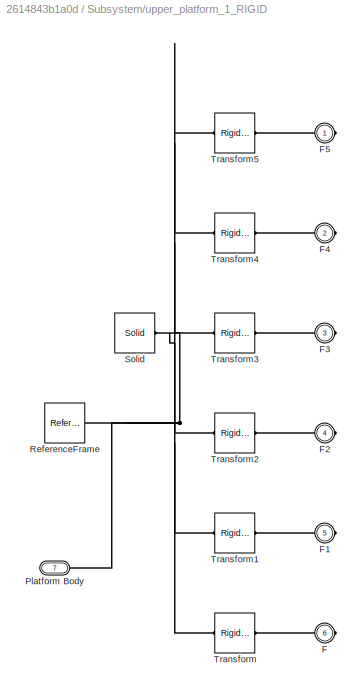
BLOCK [SubSystem] Subsystem/upper_platform_1_RIGID
  Ports = [0, 0, 0, 0, 0, 1, 6]
  RequestExecContextInheritance = off
  Variant = off
BLOCK [PMIOPort] Subsystem/upper_platform_1_RIGID/F
  Port = 6
  Side = Right
BLOCK [PMIOPort] Subsystem/upper_platform_1_RIGID/F1
  Port = 5
  Side = Right
BLOCK [PMIOPort] Subsystem/upper_platform_1_RIGID/F2
  Port = 4
  Side = Right
BLOCK [PMIOPort] Subsystem/upper_platform_1_RIGID/F3
  Port = 3
  Side = Right
BLOCK [PMIOPort] Subsystem/upper_platform_1_RIGID/F4
  Port = 2
  Side = Right
BLOCK [PMIOPort] Subsystem/upper_platform_1_RIGID/F5
  Port = 1
  Side = Right
BLOCK [PMIOPort] Subsystem/upper_platform_1_RIGID/Platform Body 
  Port = 7
  Side = Left
BLOCK [Reference] Subsystem/upper_platform_1_RIGID/ReferenceFrame  REF=sm_lib/Frames and
Transforms/Reference
Frame
  Ports = [0, 0, 0, 0, 0, 0, 1]
  SourceBlock = sm_lib/Frames and\nTransforms/Reference\nFrame
  SourceProductBaseCode = MS
  SourceProductName = Simscape Multibody
  SourceType = Reference\nFrame
BLOCK [Reference] Subsystem/upper_platform_1_RIGID/Solid  REF=sm_lib/Body Elements/Solid
  Ports = [0, 0, 0, 0, 0, 0, 1]
  SourceBlock = sm_lib/Body Elements/Solid
  SourceProductBaseCode = MS
  SourceProductName = Simscape Multibody
  SourceType = Solid
BLOCK [Reference] Subsystem/upper_platform_1_RIGID/Transform  REF=sm_lib/Frames and
Transforms/Rigid
Transform
  Ports = [0, 0, 0, 0, 0, 1, 1]
  SourceBlock = sm_lib/Frames and\nTransforms/Rigid\nTransform
  SourceProductBaseCode = MS
  SourceProductName = Simscape Multibody
  SourceType = Rigid\nTransform
BLOCK [Reference] Subsystem/upper_platform_1_RIGID/Transform1  REF=sm_lib/Frames and
Transforms/Rigid
Transform
  Ports = [0, 0, 0, 0, 0, 1, 1]
  SourceBlock = sm_lib/Frames and\nTransforms/Rigid\nTransform
  SourceProductBaseCode = MS
  SourceProductName = Simscape Multibody
  SourceType = Rigid\nTransform
BLOCK [Reference] Subsystem/upper_platform_1_RIGID/Transform2  REF=sm_lib/Frames and
Transforms/Rigid
Transform
  Ports = [0, 0, 0, 0, 0, 1, 1]
  SourceBlock = sm_lib/Frames and\nTransforms/Rigid\nTransform
  SourceProductBaseCode = MS
  SourceProductName = Simscape Multibody
  SourceType = Rigid\nTransform
BLOCK [Reference] Subsystem/upper_platform_1_RIGID/Transform3  REF=sm_lib/Frames and
Transforms/Rigid
Transform
  Ports = [0, 0, 0, 0, 0, 1, 1]
  SourceBlock = sm_lib/Frames and\nTransforms/Rigid\nTransform
  SourceProductBaseCode = MS
  SourceProductName = Simscape Multibody
  SourceType = Rigid\nTransform
BLOCK [Reference] Subsystem/upper_platform_1_RIGID/Transform4  REF=sm_lib/Frames and
Transforms/Rigid
Transform
  Ports = [0, 0, 0, 0, 0, 1, 1]
  SourceBlock = sm_lib/Frames and\nTransforms/Rigid\nTransform
  SourceProductBaseCode = MS
  SourceProductName = Simscape Multibody
  SourceType = Rigid\nTransform
BLOCK [Reference] Subsystem/upper_platform_1_RIGID/Transform5  REF=sm_lib/Frames and
Transforms/Rigid
Transform
  Ports = [0, 0, 0, 0, 0, 1, 1]
  SourceBlock = sm_lib/Frames and\nTransforms/Rigid\nTransform
  SourceProductBaseCode = MS
  SourceProductName = Simscape Multibody
  SourceType = Rigid\nTransform
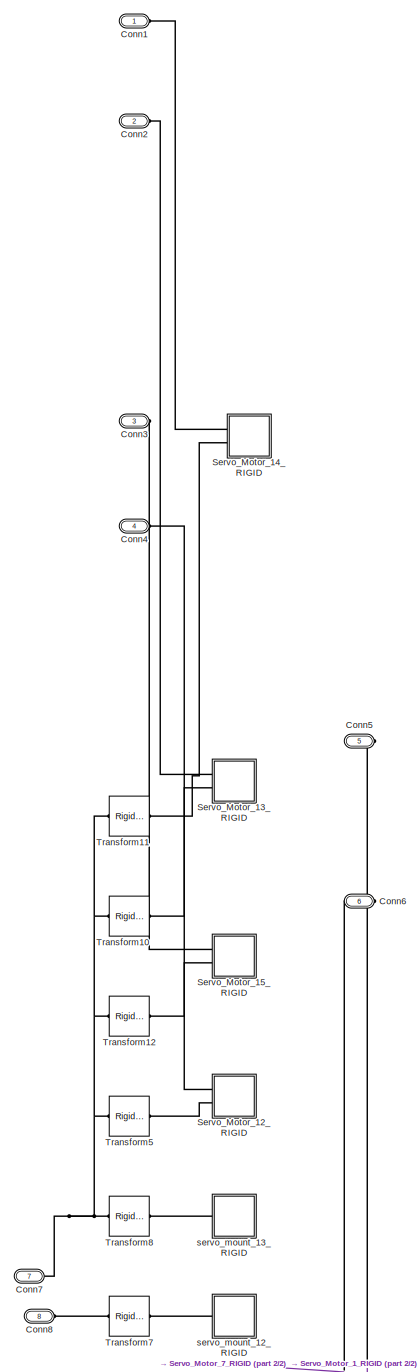
[diagram: Subsystem1 - part 1/2, full width, middle band]
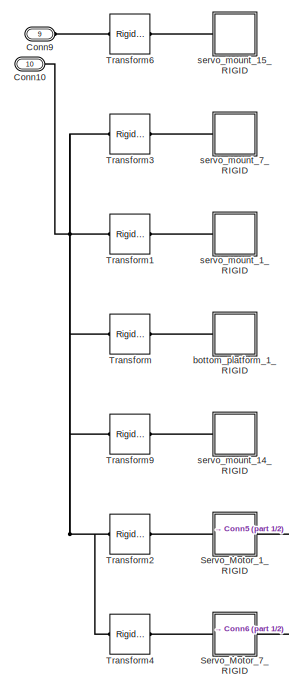
[diagram: Subsystem1 - part 2/2, bottom center region]
BLOCK [SubSystem] Subsystem1
  Ports = [0, 0, 0, 0, 0, 8, 2]
  RequestExecContextInheritance = off
  Variant = off
BLOCK [PMIOPort] Subsystem1/Conn1
  Port = 1
  Side = Left
BLOCK [PMIOPort] Subsystem1/Conn10
  Port = 10
  Side = Left
BLOCK [PMIOPort] Subsystem1/Conn2
  Port = 2
  Side = Left
BLOCK [PMIOPort] Subsystem1/Conn3
  Port = 3
  Side = Left
BLOCK [PMIOPort] Subsystem1/Conn4
  Port = 4
  Side = Left
BLOCK [PMIOPort] Subsystem1/Conn5
  Port = 5
  Side = Right
BLOCK [PMIOPort] Subsystem1/Conn6
  Port = 6
  Side = Right
BLOCK [PMIOPort] Subsystem1/Conn7
  Port = 7
  Side = Left
BLOCK [PMIOPort] Subsystem1/Conn8
  Port = 8
  Side = Left
BLOCK [PMIOPort] Subsystem1/Conn9
  Port = 9
  Side = Left
BLOCK [SubSystem] Subsystem1/Servo_Motor_12_RIGID
  Ports = [0, 0, 0, 0, 0, 2]
  RequestExecContextInheritance = off
  Variant = off
BLOCK [PMIOPort] Subsystem1/Servo_Motor_12_RIGID/F
  Port = 1
  Side = Left
BLOCK [PMIOPort] Subsystem1/Servo_Motor_12_RIGID/F1
  Port = 2
  Side = Left
BLOCK [Reference] Subsystem1/Servo_Motor_12_RIGID/ReferenceFrame  REF=sm_lib/Frames and
Transforms/Reference
Frame
  Ports = [0, 0, 0, 0, 0, 0, 1]
  SourceBlock = sm_lib/Frames and\nTransforms/Reference\nFrame
  SourceProductBaseCode = MS
  SourceProductName = Simscape Multibody
  SourceType = Reference\nFrame
BLOCK [Reference] Subsystem1/Servo_Motor_12_RIGID/Solid  REF=sm_lib/Body Elements/Solid
  Ports = [0, 0, 0, 0, 0, 0, 1]
  SourceBlock = sm_lib/Body Elements/Solid
  SourceProductBaseCode = MS
  SourceProductName = Simscape Multibody
  SourceType = Solid
BLOCK [Reference] Subsystem1/Servo_Motor_12_RIGID/Transform  REF=sm_lib/Frames and
Transforms/Rigid
Transform
  Ports = [0, 0, 0, 0, 0, 1, 1]
  SourceBlock = sm_lib/Frames and\nTransforms/Rigid\nTransform
  SourceProductBaseCode = MS
  SourceProductName = Simscape Multibody
  SourceType = Rigid\nTransform
BLOCK [SubSystem] Subsystem1/Servo_Motor_13_RIGID
  Ports = [0, 0, 0, 0, 0, 2]
  RequestExecContextInheritance = off
  Variant = off
BLOCK [PMIOPort] Subsystem1/Servo_Motor_13_RIGID/F
  Port = 1
  Side = Left
BLOCK [PMIOPort] Subsystem1/Servo_Motor_13_RIGID/F1
  Port = 2
  Side = Left
BLOCK [Reference] Subsystem1/Servo_Motor_13_RIGID/ReferenceFrame  REF=sm_lib/Frames and
Transforms/Reference
Frame
  Ports = [0, 0, 0, 0, 0, 0, 1]
  SourceBlock = sm_lib/Frames and\nTransforms/Reference\nFrame
  SourceProductBaseCode = MS
  SourceProductName = Simscape Multibody
  SourceType = Reference\nFrame
BLOCK [Reference] Subsystem1/Servo_Motor_13_RIGID/Solid  REF=sm_lib/Body Elements/Solid
  Ports = [0, 0, 0, 0, 0, 0, 1]
  SourceBlock = sm_lib/Body Elements/Solid
  SourceProductBaseCode = MS
  SourceProductName = Simscape Multibody
  SourceType = Solid
BLOCK [Reference] Subsystem1/Servo_Motor_13_RIGID/Transform  REF=sm_lib/Frames and
Transforms/Rigid
Transform
  Ports = [0, 0, 0, 0, 0, 1, 1]
  SourceBlock = sm_lib/Frames and\nTransforms/Rigid\nTransform
  SourceProductBaseCode = MS
  SourceProductName = Simscape Multibody
  SourceType = Rigid\nTransform
BLOCK [SubSystem] Subsystem1/Servo_Motor_14_RIGID
  Ports = [0, 0, 0, 0, 0, 2]
  RequestExecContextInheritance = off
  Variant = off
BLOCK [PMIOPort] Subsystem1/Servo_Motor_14_RIGID/F
  Port = 1
  Side = Left
BLOCK [PMIOPort] Subsystem1/Servo_Motor_14_RIGID/F1
  Port = 2
  Side = Left
BLOCK [Reference] Subsystem1/Servo_Motor_14_RIGID/ReferenceFrame  REF=sm_lib/Frames and
Transforms/Reference
Frame
  Ports = [0, 0, 0, 0, 0, 0, 1]
  SourceBlock = sm_lib/Frames and\nTransforms/Reference\nFrame
  SourceProductBaseCode = MS
  SourceProductName = Simscape Multibody
  SourceType = Reference\nFrame
BLOCK [Reference] Subsystem1/Servo_Motor_14_RIGID/Solid  REF=sm_lib/Body Elements/Solid
  Ports = [0, 0, 0, 0, 0, 0, 1]
  SourceBlock = sm_lib/Body Elements/Solid
  SourceProductBaseCode = MS
  SourceProductName = Simscape Multibody
  SourceType = Solid
BLOCK [Reference] Subsystem1/Servo_Motor_14_RIGID/Transform  REF=sm_lib/Frames and
Transforms/Rigid
Transform
  Ports = [0, 0, 0, 0, 0, 1, 1]
  SourceBlock = sm_lib/Frames and\nTransforms/Rigid\nTransform
  SourceProductBaseCode = MS
  SourceProductName = Simscape Multibody
  SourceType = Rigid\nTransform
BLOCK [SubSystem] Subsystem1/Servo_Motor_15_RIGID
  Ports = [0, 0, 0, 0, 0, 2]
  RequestExecContextInheritance = off
  Variant = off
BLOCK [PMIOPort] Subsystem1/Servo_Motor_15_RIGID/F
  Port = 1
  Side = Left
BLOCK [PMIOPort] Subsystem1/Servo_Motor_15_RIGID/F1
  Port = 2
  Side = Left
BLOCK [Reference] Subsystem1/Servo_Motor_15_RIGID/ReferenceFrame  REF=sm_lib/Frames and
Transforms/Reference
Frame
  Ports = [0, 0, 0, 0, 0, 0, 1]
  SourceBlock = sm_lib/Frames and\nTransforms/Reference\nFrame
  SourceProductBaseCode = MS
  SourceProductName = Simscape Multibody
  SourceType = Reference\nFrame
BLOCK [Reference] Subsystem1/Servo_Motor_15_RIGID/Solid  REF=sm_lib/Body Elements/Solid
  Ports = [0, 0, 0, 0, 0, 0, 1]
  SourceBlock = sm_lib/Body Elements/Solid
  SourceProductBaseCode = MS
  SourceProductName = Simscape Multibody
  SourceType = Solid
BLOCK [Reference] Subsystem1/Servo_Motor_15_RIGID/Transform  REF=sm_lib/Frames and
Transforms/Rigid
Transform
  Ports = [0, 0, 0, 0, 0, 1, 1]
  SourceBlock = sm_lib/Frames and\nTransforms/Rigid\nTransform
  SourceProductBaseCode = MS
  SourceProductName = Simscape Multibody
  SourceType = Rigid\nTransform
BLOCK [SubSystem] Subsystem1/Servo_Motor_1_RIGID
  Ports = [0, 0, 0, 0, 0, 1, 1]
  RequestExecContextInheritance = off
  Variant = off
BLOCK [PMIOPort] Subsystem1/Servo_Motor_1_RIGID/F
  Port = 2
  Side = Right
BLOCK [PMIOPort] Subsystem1/Servo_Motor_1_RIGID/F1
  Port = 1
  Side = Left
BLOCK [Reference] Subsystem1/Servo_Motor_1_RIGID/ReferenceFrame  REF=sm_lib/Frames and
Transforms/Reference
Frame
  Ports = [0, 0, 0, 0, 0, 0, 1]
  SourceBlock = sm_lib/Frames and\nTransforms/Reference\nFrame
  SourceProductBaseCode = MS
  SourceProductName = Simscape Multibody
  SourceType = Reference\nFrame
BLOCK [Reference] Subsystem1/Servo_Motor_1_RIGID/Solid  REF=sm_lib/Body Elements/Solid
  Ports = [0, 0, 0, 0, 0, 0, 1]
  SourceBlock = sm_lib/Body Elements/Solid
  SourceProductBaseCode = MS
  SourceProductName = Simscape Multibody
  SourceType = Solid
BLOCK [Reference] Subsystem1/Servo_Motor_1_RIGID/Transform  REF=sm_lib/Frames and
Transforms/Rigid
Transform
  Ports = [0, 0, 0, 0, 0, 1, 1]
  SourceBlock = sm_lib/Frames and\nTransforms/Rigid\nTransform
  SourceProductBaseCode = MS
  SourceProductName = Simscape Multibody
  SourceType = Rigid\nTransform
BLOCK [SubSystem] Subsystem1/Servo_Motor_7_RIGID
  Ports = [0, 0, 0, 0, 0, 1, 1]
  RequestExecContextInheritance = off
  Variant = off
BLOCK [PMIOPort] Subsystem1/Servo_Motor_7_RIGID/F
  Port = 2
  Side = Right
BLOCK [PMIOPort] Subsystem1/Servo_Motor_7_RIGID/F1
  Port = 1
  Side = Left
BLOCK [Reference] Subsystem1/Servo_Motor_7_RIGID/ReferenceFrame  REF=sm_lib/Frames and
Transforms/Reference
Frame
  Ports = [0, 0, 0, 0, 0, 0, 1]
  SourceBlock = sm_lib/Frames and\nTransforms/Reference\nFrame
  SourceProductBaseCode = MS
  SourceProductName = Simscape Multibody
  SourceType = Reference\nFrame
BLOCK [Reference] Subsystem1/Servo_Motor_7_RIGID/Solid  REF=sm_lib/Body Elements/Solid
  Ports = [0, 0, 0, 0, 0, 0, 1]
  SourceBlock = sm_lib/Body Elements/Solid
  SourceProductBaseCode = MS
  SourceProductName = Simscape Multibody
  SourceType = Solid
BLOCK [Reference] Subsystem1/Servo_Motor_7_RIGID/Transform  REF=sm_lib/Frames and
Transforms/Rigid
Transform
  Ports = [0, 0, 0, 0, 0, 1, 1]
  SourceBlock = sm_lib/Frames and\nTransforms/Rigid\nTransform
  SourceProductBaseCode = MS
  SourceProductName = Simscape Multibody
  SourceType = Rigid\nTransform
BLOCK [Reference] Subsystem1/Transform  REF=sm_lib/Frames and
Transforms/Rigid
Transform
  Ports = [0, 0, 0, 0, 0, 1, 1]
  SourceBlock = sm_lib/Frames and\nTransforms/Rigid\nTransform
  SourceProductBaseCode = MS
  SourceProductName = Simscape Multibody
  SourceType = Rigid\nTransform
BLOCK [Reference] Subsystem1/Transform1  REF=sm_lib/Frames and
Transforms/Rigid
Transform
  Ports = [0, 0, 0, 0, 0, 1, 1]
  SourceBlock = sm_lib/Frames and\nTransforms/Rigid\nTransform
  SourceProductBaseCode = MS
  SourceProductName = Simscape Multibody
  SourceType = Rigid\nTransform
BLOCK [Reference] Subsystem1/Transform10  REF=sm_lib/Frames and
Transforms/Rigid
Transform
  Ports = [0, 0, 0, 0, 0, 1, 1]
  SourceBlock = sm_lib/Frames and\nTransforms/Rigid\nTransform
  SourceProductBaseCode = MS
  SourceProductName = Simscape Multibody
  SourceType = Rigid\nTransform
BLOCK [Reference] Subsystem1/Transform11  REF=sm_lib/Frames and
Transforms/Rigid
Transform
  Ports = [0, 0, 0, 0, 0, 1, 1]
  SourceBlock = sm_lib/Frames and\nTransforms/Rigid\nTransform
  SourceProductBaseCode = MS
  SourceProductName = Simscape Multibody
  SourceType = Rigid\nTransform
BLOCK [Reference] Subsystem1/Transform12  REF=sm_lib/Frames and
Transforms/Rigid
Transform
  Ports = [0, 0, 0, 0, 0, 1, 1]
  SourceBlock = sm_lib/Frames and\nTransforms/Rigid\nTransform
  SourceProductBaseCode = MS
  SourceProductName = Simscape Multibody
  SourceType = Rigid\nTransform
BLOCK [Reference] Subsystem1/Transform2  REF=sm_lib/Frames and
Transforms/Rigid
Transform
  Ports = [0, 0, 0, 0, 0, 1, 1]
  SourceBlock = sm_lib/Frames and\nTransforms/Rigid\nTransform
  SourceProductBaseCode = MS
  SourceProductName = Simscape Multibody
  SourceType = Rigid\nTransform
BLOCK [Reference] Subsystem1/Transform3  REF=sm_lib/Frames and
Transforms/Rigid
Transform
  Ports = [0, 0, 0, 0, 0, 1, 1]
  SourceBlock = sm_lib/Frames and\nTransforms/Rigid\nTransform
  SourceProductBaseCode = MS
  SourceProductName = Simscape Multibody
  SourceType = Rigid\nTransform
BLOCK [Reference] Subsystem1/Transform4  REF=sm_lib/Frames and
Transforms/Rigid
Transform
  Ports = [0, 0, 0, 0, 0, 1, 1]
  SourceBlock = sm_lib/Frames and\nTransforms/Rigid\nTransform
  SourceProductBaseCode = MS
  SourceProductName = Simscape Multibody
  SourceType = Rigid\nTransform
BLOCK [Reference] Subsystem1/Transform5  REF=sm_lib/Frames and
Transforms/Rigid
Transform
  Ports = [0, 0, 0, 0, 0, 1, 1]
  SourceBlock = sm_lib/Frames and\nTransforms/Rigid\nTransform
  SourceProductBaseCode = MS
  SourceProductName = Simscape Multibody
  SourceType = Rigid\nTransform
BLOCK [Reference] Subsystem1/Transform6  REF=sm_lib/Frames and
Transforms/Rigid
Transform
  Ports = [0, 0, 0, 0, 0, 1, 1]
  SourceBlock = sm_lib/Frames and\nTransforms/Rigid\nTransform
  SourceProductBaseCode = MS
  SourceProductName = Simscape Multibody
  SourceType = Rigid\nTransform
BLOCK [Reference] Subsystem1/Transform7  REF=sm_lib/Frames and
Transforms/Rigid
Transform
  Ports = [0, 0, 0, 0, 0, 1, 1]
  SourceBlock = sm_lib/Frames and\nTransforms/Rigid\nTransform
  SourceProductBaseCode = MS
  SourceProductName = Simscape Multibody
  SourceType = Rigid\nTransform
BLOCK [Reference] Subsystem1/Transform8  REF=sm_lib/Frames and
Transforms/Rigid
Transform
  Ports = [0, 0, 0, 0, 0, 1, 1]
  SourceBlock = sm_lib/Frames and\nTransforms/Rigid\nTransform
  SourceProductBaseCode = MS
  SourceProductName = Simscape Multibody
  SourceType = Rigid\nTransform
BLOCK [Reference] Subsystem1/Transform9  REF=sm_lib/Frames and
Transforms/Rigid
Transform
  Ports = [0, 0, 0, 0, 0, 1, 1]
  SourceBlock = sm_lib/Frames and\nTransforms/Rigid\nTransform
  SourceProductBaseCode = MS
  SourceProductName = Simscape Multibody
  SourceType = Rigid\nTransform
BLOCK [SubSystem] Subsystem1/bottom_platform_1_RIGID
  Ports = [0, 0, 0, 0, 0, 1]
  RequestExecContextInheritance = off
  Variant = off
BLOCK [PMIOPort] Subsystem1/bottom_platform_1_RIGID/F
  Port = 1
  Side = Left
BLOCK [Reference] Subsystem1/bottom_platform_1_RIGID/ReferenceFrame  REF=sm_lib/Frames and
Transforms/Reference
Frame
  Ports = [0, 0, 0, 0, 0, 0, 1]
  SourceBlock = sm_lib/Frames and\nTransforms/Reference\nFrame
  SourceProductBaseCode = MS
  SourceProductName = Simscape Multibody
  SourceType = Reference\nFrame
BLOCK [Reference] Subsystem1/bottom_platform_1_RIGID/Solid  REF=sm_lib/Body Elements/Solid
  Ports = [0, 0, 0, 0, 0, 0, 1]
  SourceBlock = sm_lib/Body Elements/Solid
  SourceProductBaseCode = MS
  SourceProductName = Simscape Multibody
  SourceType = Solid
BLOCK [SubSystem] Subsystem1/servo_mount_12_RIGID
  Ports = [0, 0, 0, 0, 0, 1]
  RequestExecContextInheritance = off
  Variant = off
BLOCK [PMIOPort] Subsystem1/servo_mount_12_RIGID/F
  Port = 1
  Side = Left
BLOCK [Reference] Subsystem1/servo_mount_12_RIGID/ReferenceFrame  REF=sm_lib/Frames and
Transforms/Reference
Frame
  Ports = [0, 0, 0, 0, 0, 0, 1]
  SourceBlock = sm_lib/Frames and\nTransforms/Reference\nFrame
  SourceProductBaseCode = MS
  SourceProductName = Simscape Multibody
  SourceType = Reference\nFrame
BLOCK [Reference] Subsystem1/servo_mount_12_RIGID/Solid  REF=sm_lib/Body Elements/Solid
  Ports = [0, 0, 0, 0, 0, 0, 1]
  SourceBlock = sm_lib/Body Elements/Solid
  SourceProductBaseCode = MS
  SourceProductName = Simscape Multibody
  SourceType = Solid
BLOCK [SubSystem] Subsystem1/servo_mount_13_RIGID
  Ports = [0, 0, 0, 0, 0, 1]
  RequestExecContextInheritance = off
  Variant = off
BLOCK [PMIOPort] Subsystem1/servo_mount_13_RIGID/F
  Port = 1
  Side = Left
BLOCK [Reference] Subsystem1/servo_mount_13_RIGID/ReferenceFrame  REF=sm_lib/Frames and
Transforms/Reference
Frame
  Ports = [0, 0, 0, 0, 0, 0, 1]
  SourceBlock = sm_lib/Frames and\nTransforms/Reference\nFrame
  SourceProductBaseCode = MS
  SourceProductName = Simscape Multibody
  SourceType = Reference\nFrame
BLOCK [Reference] Subsystem1/servo_mount_13_RIGID/Solid  REF=sm_lib/Body Elements/Solid
  Ports = [0, 0, 0, 0, 0, 0, 1]
  SourceBlock = sm_lib/Body Elements/Solid
  SourceProductBaseCode = MS
  SourceProductName = Simscape Multibody
  SourceType = Solid
BLOCK [SubSystem] Subsystem1/servo_mount_14_RIGID
  Ports = [0, 0, 0, 0, 0, 1]
  RequestExecContextInheritance = off
  Variant = off
BLOCK [PMIOPort] Subsystem1/servo_mount_14_RIGID/F
  Port = 1
  Side = Left
BLOCK [Reference] Subsystem1/servo_mount_14_RIGID/ReferenceFrame  REF=sm_lib/Frames and
Transforms/Reference
Frame
  Ports = [0, 0, 0, 0, 0, 0, 1]
  SourceBlock = sm_lib/Frames and\nTransforms/Reference\nFrame
  SourceProductBaseCode = MS
  SourceProductName = Simscape Multibody
  SourceType = Reference\nFrame
BLOCK [Reference] Subsystem1/servo_mount_14_RIGID/Solid  REF=sm_lib/Body Elements/Solid
  Ports = [0, 0, 0, 0, 0, 0, 1]
  SourceBlock = sm_lib/Body Elements/Solid
  SourceProductBaseCode = MS
  SourceProductName = Simscape Multibody
  SourceType = Solid
BLOCK [SubSystem] Subsystem1/servo_mount_15_RIGID
  Ports = [0, 0, 0, 0, 0, 1]
  RequestExecContextInheritance = off
  Variant = off
BLOCK [PMIOPort] Subsystem1/servo_mount_15_RIGID/F
  Port = 1
  Side = Left
BLOCK [Reference] Subsystem1/servo_mount_15_RIGID/ReferenceFrame  REF=sm_lib/Frames and
Transforms/Reference
Frame
  Ports = [0, 0, 0, 0, 0, 0, 1]
  SourceBlock = sm_lib/Frames and\nTransforms/Reference\nFrame
  SourceProductBaseCode = MS
  SourceProductName = Simscape Multibody
  SourceType = Reference\nFrame
BLOCK [Reference] Subsystem1/servo_mount_15_RIGID/Solid  REF=sm_lib/Body Elements/Solid
  Ports = [0, 0, 0, 0, 0, 0, 1]
  SourceBlock = sm_lib/Body Elements/Solid
  SourceProductBaseCode = MS
  SourceProductName = Simscape Multibody
  SourceType = Solid
BLOCK [SubSystem] Subsystem1/servo_mount_1_RIGID
  Ports = [0, 0, 0, 0, 0, 1]
  RequestExecContextInheritance = off
  Variant = off
BLOCK [PMIOPort] Subsystem1/servo_mount_1_RIGID/F
  Port = 1
  Side = Left
BLOCK [Reference] Subsystem1/servo_mount_1_RIGID/ReferenceFrame  REF=sm_lib/Frames and
Transforms/Reference
Frame
  Ports = [0, 0, 0, 0, 0, 0, 1]
  SourceBlock = sm_lib/Frames and\nTransforms/Reference\nFrame
  SourceProductBaseCode = MS
  SourceProductName = Simscape Multibody
  SourceType = Reference\nFrame
BLOCK [Reference] Subsystem1/servo_mount_1_RIGID/Solid  REF=sm_lib/Body Elements/Solid
  Ports = [0, 0, 0, 0, 0, 0, 1]
  SourceBlock = sm_lib/Body Elements/Solid
  SourceProductBaseCode = MS
  SourceProductName = Simscape Multibody
  SourceType = Solid
BLOCK [SubSystem] Subsystem1/servo_mount_7_RIGID
  Ports = [0, 0, 0, 0, 0, 1]
  RequestExecContextInheritance = off
  Variant = off
BLOCK [PMIOPort] Subsystem1/servo_mount_7_RIGID/F
  Port = 1
  Side = Left
BLOCK [Reference] Subsystem1/servo_mount_7_RIGID/ReferenceFrame  REF=sm_lib/Frames and
Transforms/Reference
Frame
  Ports = [0, 0, 0, 0, 0, 0, 1]
  SourceBlock = sm_lib/Frames and\nTransforms/Reference\nFrame
  SourceProductBaseCode = MS
  SourceProductName = Simscape Multibody
  SourceType = Reference\nFrame
BLOCK [Reference] Subsystem1/servo_mount_7_RIGID/Solid  REF=sm_lib/Body Elements/Solid
  Ports = [0, 0, 0, 0, 0, 0, 1]
  SourceBlock = sm_lib/Body Elements/Solid
  SourceProductBaseCode = MS
  SourceProductName = Simscape Multibody
  SourceType = Solid
BLOCK [ToWorkspace] To Workspace1
  MaxDataPoints = inf
  Ports = [1]
  SampleTime = -1
  Save2DSignal = 3-D array (concatenate along third dimension)
  SaveFormat = Structure With Time
  VariableName = motor_states
BLOCK [Reference] Transform Sensor  REF=sm_lib/Frames and
Transforms/Transform
Sensor
  Ports = [0, 0, 0, 0, 0, 1, 2]
  SourceBlock = sm_lib/Frames and\nTransforms/Transform\nSensor
  SourceProductBaseCode = MS
  SourceProductName = Simscape Multibody
  SourceType = Transform\nSensor
BLOCK [Reference] Transform Sensor1  REF=sm_lib/Frames and
Transforms/Transform
Sensor
  Ports = [0, 0, 0, 0, 0, 1, 7]
  SourceBlock = sm_lib/Frames and\nTransforms/Transform\nSensor
  SourceProductBaseCode = MS
  SourceProductName = Simscape Multibody
  SourceType = Transform\nSensor
BLOCK [Reference] Transform Sensor2  REF=sm_lib/Frames and
Transforms/Transform
Sensor
  Ports = [0, 0, 0, 0, 0, 1, 5]
  SourceBlock = sm_lib/Frames and\nTransforms/Transform\nSensor
  SourceProductBaseCode = MS
  SourceProductName = Simscape Multibody
  SourceType = Transform\nSensor
BLOCK [Reference] World  REF=sm_lib/Frames and
Transforms/World Frame
  Ports = [0, 0, 0, 0, 0, 0, 1]
  SourceBlock = sm_lib/Frames and\nTransforms/World Frame
  SourceProductBaseCode = MS
  SourceProductName = Simscape Multibody
  SourceType = World Frame
BLOCK [Reference] World Transform   REF=sm_lib/Frames and
Transforms/Rigid
Transform
  Ports = [0, 0, 0, 0, 0, 1, 1]
  SourceBlock = sm_lib/Frames and\nTransforms/Rigid\nTransform
  SourceProductBaseCode = MS
  SourceProductName = Simscape Multibody
  SourceType = Rigid\nTransform
BLOCK [Constant] angle1
  Value = 1.7453
BLOCK [Constant] angle2
  Value = -1.7453
BLOCK [Constant] angle3
  Value = 2.2689
BLOCK [Constant] angle4
  Value = -2.2689
BLOCK [Constant] angle5
  Value = 2.7925
BLOCK [Constant] angle6
  Value = -1.7453
BLOCK [Constant] base_px
  Value = 0
BLOCK [Constant] base_py
  Value = 0
BLOCK [Constant] base_pz
  Value = 0
BLOCK [Constant] base_qx
  Value = 0
BLOCK [Constant] base_qy
  Value = 0
BLOCK [Constant] base_qz
  Value = 0
BLOCK [SubSystem] servo_arm_1_RIGID
  Ports = [0, 0, 0, 0, 0, 1, 1]
  RequestExecContextInheritance = off
  Variant = off
BLOCK [PMIOPort] servo_arm_1_RIGID/F
  Port = 2
  Side = Right
BLOCK [PMIOPort] servo_arm_1_RIGID/F1
  Port = 1
  Side = Left
BLOCK [Reference] servo_arm_1_RIGID/ReferenceFrame  REF=sm_lib/Frames and
Transforms/Reference
Frame
  Ports = [0, 0, 0, 0, 0, 0, 1]
  SourceBlock = sm_lib/Frames and\nTransforms/Reference\nFrame
  SourceProductBaseCode = MS
  SourceProductName = Simscape Multibody
  SourceType = Reference\nFrame
BLOCK [Reference] servo_arm_1_RIGID/Solid  REF=sm_lib/Body Elements/Solid
  Ports = [0, 0, 0, 0, 0, 0, 1]
  SourceBlock = sm_lib/Body Elements/Solid
  SourceProductBaseCode = MS
  SourceProductName = Simscape Multibody
  SourceType = Solid
BLOCK [Reference] servo_arm_1_RIGID/Transform  REF=sm_lib/Frames and
Transforms/Rigid
Transform
  Ports = [0, 0, 0, 0, 0, 1, 1]
  SourceBlock = sm_lib/Frames and\nTransforms/Rigid\nTransform
  SourceProductBaseCode = MS
  SourceProductName = Simscape Multibody
  SourceType = Rigid\nTransform
BLOCK [Reference] servo_arm_1_RIGID/Transform1  REF=sm_lib/Frames and
Transforms/Rigid
Transform
  Ports = [0, 0, 0, 0, 0, 1, 1]
  SourceBlock = sm_lib/Frames and\nTransforms/Rigid\nTransform
  SourceProductBaseCode = MS
  SourceProductName = Simscape Multibody
  SourceType = Rigid\nTransform
BLOCK [SubSystem] servo_arm_2_RIGID
  Ports = [0, 0, 0, 0, 0, 1, 1]
  RequestExecContextInheritance = off
  Variant = off
BLOCK [PMIOPort] servo_arm_2_RIGID/F
  Port = 2
  Side = Right
BLOCK [PMIOPort] servo_arm_2_RIGID/F1
  Port = 1
  Side = Left
BLOCK [Reference] servo_arm_2_RIGID/ReferenceFrame  REF=sm_lib/Frames and
Transforms/Reference
Frame
  Ports = [0, 0, 0, 0, 0, 0, 1]
  SourceBlock = sm_lib/Frames and\nTransforms/Reference\nFrame
  SourceProductBaseCode = MS
  SourceProductName = Simscape Multibody
  SourceType = Reference\nFrame
BLOCK [Reference] servo_arm_2_RIGID/Solid  REF=sm_lib/Body Elements/Solid
  Ports = [0, 0, 0, 0, 0, 0, 1]
  SourceBlock = sm_lib/Body Elements/Solid
  SourceProductBaseCode = MS
  SourceProductName = Simscape Multibody
  SourceType = Solid
BLOCK [Reference] servo_arm_2_RIGID/Transform  REF=sm_lib/Frames and
Transforms/Rigid
Transform
  Ports = [0, 0, 0, 0, 0, 1, 1]
  SourceBlock = sm_lib/Frames and\nTransforms/Rigid\nTransform
  SourceProductBaseCode = MS
  SourceProductName = Simscape Multibody
  SourceType = Rigid\nTransform
BLOCK [Reference] servo_arm_2_RIGID/Transform1  REF=sm_lib/Frames and
Transforms/Rigid
Transform
  Ports = [0, 0, 0, 0, 0, 1, 1]
  SourceBlock = sm_lib/Frames and\nTransforms/Rigid\nTransform
  SourceProductBaseCode = MS
  SourceProductName = Simscape Multibody
  SourceType = Rigid\nTransform
BLOCK [SubSystem] servo_arm_3_RIGID
  Ports = [0, 0, 0, 0, 0, 0, 2]
  RequestExecContextInheritance = off
  Variant = off
BLOCK [PMIOPort] servo_arm_3_RIGID/F
  Port = 2
  Side = Right
BLOCK [PMIOPort] servo_arm_3_RIGID/F1
  Port = 1
  Side = Right
BLOCK [Reference] servo_arm_3_RIGID/ReferenceFrame  REF=sm_lib/Frames and
Transforms/Reference
Frame
  Ports = [0, 0, 0, 0, 0, 0, 1]
  SourceBlock = sm_lib/Frames and\nTransforms/Reference\nFrame
  SourceProductBaseCode = MS
  SourceProductName = Simscape Multibody
  SourceType = Reference\nFrame
BLOCK [Reference] servo_arm_3_RIGID/Solid  REF=sm_lib/Body Elements/Solid
  Ports = [0, 0, 0, 0, 0, 0, 1]
  SourceBlock = sm_lib/Body Elements/Solid
  SourceProductBaseCode = MS
  SourceProductName = Simscape Multibody
  SourceType = Solid
BLOCK [Reference] servo_arm_3_RIGID/Transform  REF=sm_lib/Frames and
Transforms/Rigid
Transform
  Ports = [0, 0, 0, 0, 0, 1, 1]
  SourceBlock = sm_lib/Frames and\nTransforms/Rigid\nTransform
  SourceProductBaseCode = MS
  SourceProductName = Simscape Multibody
  SourceType = Rigid\nTransform
BLOCK [Reference] servo_arm_3_RIGID/Transform1  REF=sm_lib/Frames and
Transforms/Rigid
Transform
  Ports = [0, 0, 0, 0, 0, 1, 1]
  SourceBlock = sm_lib/Frames and\nTransforms/Rigid\nTransform
  SourceProductBaseCode = MS
  SourceProductName = Simscape Multibody
  SourceType = Rigid\nTransform
BLOCK [SubSystem] servo_arm_4_RIGID
  Ports = [0, 0, 0, 0, 0, 0, 2]
  RequestExecContextInheritance = off
  Variant = off
BLOCK [PMIOPort] servo_arm_4_RIGID/F
  Port = 2
  Side = Right
BLOCK [PMIOPort] servo_arm_4_RIGID/F1
  Port = 1
  Side = Right
BLOCK [Reference] servo_arm_4_RIGID/ReferenceFrame  REF=sm_lib/Frames and
Transforms/Reference
Frame
  Ports = [0, 0, 0, 0, 0, 0, 1]
  SourceBlock = sm_lib/Frames and\nTransforms/Reference\nFrame
  SourceProductBaseCode = MS
  SourceProductName = Simscape Multibody
  SourceType = Reference\nFrame
BLOCK [Reference] servo_arm_4_RIGID/Solid  REF=sm_lib/Body Elements/Solid
  Ports = [0, 0, 0, 0, 0, 0, 1]
  SourceBlock = sm_lib/Body Elements/Solid
  SourceProductBaseCode = MS
  SourceProductName = Simscape Multibody
  SourceType = Solid
BLOCK [Reference] servo_arm_4_RIGID/Transform  REF=sm_lib/Frames and
Transforms/Rigid
Transform
  Ports = [0, 0, 0, 0, 0, 1, 1]
  SourceBlock = sm_lib/Frames and\nTransforms/Rigid\nTransform
  SourceProductBaseCode = MS
  SourceProductName = Simscape Multibody
  SourceType = Rigid\nTransform
BLOCK [Reference] servo_arm_4_RIGID/Transform1  REF=sm_lib/Frames and
Transforms/Rigid
Transform
  Ports = [0, 0, 0, 0, 0, 1, 1]
  SourceBlock = sm_lib/Frames and\nTransforms/Rigid\nTransform
  SourceProductBaseCode = MS
  SourceProductName = Simscape Multibody
  SourceType = Rigid\nTransform
BLOCK [SubSystem] servo_arm_5_RIGID
  Ports = [0, 0, 0, 0, 0, 0, 2]
  RequestExecContextInheritance = off
  Variant = off
BLOCK [PMIOPort] servo_arm_5_RIGID/F
  Port = 2
  Side = Right
BLOCK [PMIOPort] servo_arm_5_RIGID/F1
  Port = 1
  Side = Right
BLOCK [Reference] servo_arm_5_RIGID/ReferenceFrame  REF=sm_lib/Frames and
Transforms/Reference
Frame
  Ports = [0, 0, 0, 0, 0, 0, 1]
  SourceBlock = sm_lib/Frames and\nTransforms/Reference\nFrame
  SourceProductBaseCode = MS
  SourceProductName = Simscape Multibody
  SourceType = Reference\nFrame
BLOCK [Reference] servo_arm_5_RIGID/Solid  REF=sm_lib/Body Elements/Solid
  Ports = [0, 0, 0, 0, 0, 0, 1]
  SourceBlock = sm_lib/Body Elements/Solid
  SourceProductBaseCode = MS
  SourceProductName = Simscape Multibody
  SourceType = Solid
BLOCK [Reference] servo_arm_5_RIGID/Transform  REF=sm_lib/Frames and
Transforms/Rigid
Transform
  Ports = [0, 0, 0, 0, 0, 1, 1]
  SourceBlock = sm_lib/Frames and\nTransforms/Rigid\nTransform
  SourceProductBaseCode = MS
  SourceProductName = Simscape Multibody
  SourceType = Rigid\nTransform
BLOCK [Reference] servo_arm_5_RIGID/Transform1  REF=sm_lib/Frames and
Transforms/Rigid
Transform
  Ports = [0, 0, 0, 0, 0, 1, 1]
  SourceBlock = sm_lib/Frames and\nTransforms/Rigid\nTransform
  SourceProductBaseCode = MS
  SourceProductName = Simscape Multibody
  SourceType = Rigid\nTransform
BLOCK [SubSystem] servo_arm_6_RIGID
  Ports = [0, 0, 0, 0, 0, 0, 2]
  RequestExecContextInheritance = off
  Variant = off
BLOCK [PMIOPort] servo_arm_6_RIGID/F
  Port = 2
  Side = Right
BLOCK [PMIOPort] servo_arm_6_RIGID/F1
  Port = 1
  Side = Right
BLOCK [Reference] servo_arm_6_RIGID/ReferenceFrame  REF=sm_lib/Frames and
Transforms/Reference
Frame
  Ports = [0, 0, 0, 0, 0, 0, 1]
  SourceBlock = sm_lib/Frames and\nTransforms/Reference\nFrame
  SourceProductBaseCode = MS
  SourceProductName = Simscape Multibody
  SourceType = Reference\nFrame
BLOCK [Reference] servo_arm_6_RIGID/Solid  REF=sm_lib/Body Elements/Solid
  Ports = [0, 0, 0, 0, 0, 0, 1]
  SourceBlock = sm_lib/Body Elements/Solid
  SourceProductBaseCode = MS
  SourceProductName = Simscape Multibody
  SourceType = Solid
BLOCK [Reference] servo_arm_6_RIGID/Transform  REF=sm_lib/Frames and
Transforms/Rigid
Transform
  Ports = [0, 0, 0, 0, 0, 1, 1]
  SourceBlock = sm_lib/Frames and\nTransforms/Rigid\nTransform
  SourceProductBaseCode = MS
  SourceProductName = Simscape Multibody
  SourceType = Rigid\nTransform
BLOCK [Reference] servo_arm_6_RIGID/Transform1  REF=sm_lib/Frames and
Transforms/Rigid
Transform
  Ports = [0, 0, 0, 0, 0, 1, 1]
  SourceBlock = sm_lib/Frames and\nTransforms/Rigid\nTransform
  SourceProductBaseCode = MS
  SourceProductName = Simscape Multibody
  SourceType = Rigid\nTransform
LINE Mux:1 -> To Workspace1:1
LINE PS-Simulink Converter1:1 -> Mux:1
LINE PS-Simulink Converter2:1 -> Mux:2
LINE PS-Simulink Converter3:1 -> Mux:3
LINE PS-Simulink Converter4:1 -> Mux:4
LINE PS-Simulink Converter5:1 -> Mux:5
LINE PS-Simulink Converter6:1 -> Mux:6
LINE Platform Acceleration (Abs)/Mux1:1 -> Platform Acceleration (Abs)/Transport Delay:1
LINE Platform Acceleration (Abs)/PS-Simulink Converter7:1 -> Platform Acceleration (Abs)/Mux1:1
LINE Platform Acceleration (Abs)/PS-Simulink Converter8:1 -> Platform Acceleration (Abs)/Mux1:2
LINE Platform Acceleration (Abs)/PS-Simulink Converter9:1 -> Platform Acceleration (Abs)/Mux1:3
LINE Platform Acceleration (Abs)/Transport Delay:1 -> Platform Acceleration (Abs)/To Workspace2:1
LINE Platform Orientation/Mux1:1 -> Platform Orientation/Transport Delay:1
LINE Platform Orientation/PS-Simulink Converter7:1 -> Platform Orientation/Mux1:2
LINE Platform Orientation/PS-Simulink Converter:1 -> Platform Orientation/Mux1:1
LINE Platform Orientation/Transport Delay:1 -> Platform Orientation/To Workspace:1
LINE Platform Translation (Abs)/Mux1:1 -> Platform Translation (Abs)/Transport Delay:1
LINE Platform Translation (Abs)/PS-Simulink Converter7:1 -> Platform Translation (Abs)/Mux1:1
LINE Platform Translation (Abs)/PS-Simulink Converter8:1 -> Platform Translation (Abs)/Mux1:2
LINE Platform Translation (Abs)/PS-Simulink Converter9:1 -> Platform Translation (Abs)/Mux1:3
LINE Platform Translation (Abs)/Transport Delay:1 -> Platform Translation (Abs)/To Workspace2:1
LINE Platform Translation (Rel) /Mux1:1 -> Platform Translation (Rel) /Transport Delay:1
LINE Platform Translation (Rel) /PS-Simulink Converter10:1 -> Platform Translation (Rel) /Mux1:3
LINE Platform Translation (Rel) /PS-Simulink Converter8:1 -> Platform Translation (Rel) /Mux1:1
LINE Platform Translation (Rel) /PS-Simulink Converter9:1 -> Platform Translation (Rel) /Mux1:2
LINE Platform Translation (Rel) /Transport Delay:1 -> Platform Translation (Rel) /To Workspace:1
LINE angle1:1 -> Simulink-PS Converter5:1
LINE angle2:1 -> Simulink-PS Converter:1
LINE angle3:1 -> Simulink-PS Converter1:1
LINE angle4:1 -> Simulink-PS Converter2:1
LINE angle5:1 -> Simulink-PS Converter3:1
LINE angle6:1 -> Simulink-PS Converter4:1
LINE base_px:1 -> Simulink-PS Converter9:1
LINE base_py:1 -> Simulink-PS Converter11:1
LINE base_pz:1 -> Simulink-PS Converter10:1
LINE base_qx:1 -> Simulink-PS Converter6:1
LINE base_qy:1 -> Simulink-PS Converter8:1
LINE base_qz:1 -> Simulink-PS Converter7:1
PNET net1: Cartesian Joint:LConn1 -- MechanismConfiguration:RConn1 -- Solver Configuration:RConn1 -- Transform Sensor1:LConn1 -- Transform Sensor:LConn1 -- World Transform :RConn1
PLINE Cartesian Joint:LConn2 -- Simulink-PS Converter9:RConn1
PLINE Cartesian Joint:LConn3 -- Simulink-PS Converter11:RConn1
PLINE Cartesian Joint:LConn4 -- Simulink-PS Converter10:RConn1
PLINE Cartesian Joint:RConn1 -- Gimbal Joint:LConn1
PLINE Gimbal Joint:LConn2 -- Simulink-PS Converter6:RConn1
PLINE Gimbal Joint:LConn3 -- Simulink-PS Converter8:RConn1
PLINE Gimbal Joint:LConn4 -- Simulink-PS Converter7:RConn1
PNET net2: Gimbal Joint:RConn1 -- Subsystem1:LConn5 -- Subsystem1:LConn6 -- Subsystem1:LConn7 -- Subsystem1:LConn8 -- Transform Sensor2:LConn1
PLINE PS-Simulink Converter1:LConn1 -- Revolute16:RConn2
PLINE PS-Simulink Converter2:LConn1 -- Revolute9:RConn2
PLINE PS-Simulink Converter3:LConn1 -- Revolute2:RConn2
PLINE PS-Simulink Converter4:LConn1 -- Revolute3:RConn2
PLINE PS-Simulink Converter5:LConn1 -- Revolute6:RConn2
PLINE PS-Simulink Converter6:LConn1 -- Revolute8:RConn2
PLINE Platform Acceleration (Abs)/Conn1:RConn1 -- Platform Acceleration (Abs)/PS-Simulink Converter7:LConn1
PLINE Platform Acceleration (Abs)/Conn2:RConn1 -- Platform Acceleration (Abs)/PS-Simulink Converter8:LConn1
PLINE Platform Acceleration (Abs)/Conn3:RConn1 -- Platform Acceleration (Abs)/PS-Simulink Converter9:LConn1
PLINE Platform Acceleration (Abs):LConn1 -- Transform Sensor1:RConn5
PLINE Platform Acceleration (Abs):LConn2 -- Transform Sensor1:RConn6
PLINE Platform Acceleration (Abs):LConn3 -- Transform Sensor1:RConn7
PLINE Platform Orientation/Conn1:RConn1 -- Platform Orientation/PS-Simulink Converter:LConn1
PLINE Platform Orientation/Conn2:RConn1 -- Platform Orientation/PS-Simulink Converter7:LConn1
PLINE Platform Orientation:LConn1 -- Transform Sensor:RConn2
PLINE Platform Orientation:LConn2 -- Transform Sensor2:RConn2
PLINE Platform Transform :LConn1 -- Subsystem:LConn1
PNET net3: Platform Transform :RConn1 -- Transform Sensor1:RConn1 -- Transform Sensor2:RConn1 -- Transform Sensor:RConn1
PLINE Platform Translation (Abs)/Conn1:RConn1 -- Platform Translation (Abs)/PS-Simulink Converter7:LConn1
PLINE Platform Translation (Abs)/Conn2:RConn1 -- Platform Translation (Abs)/PS-Simulink Converter8:LConn1
PLINE Platform Translation (Abs)/Conn3:RConn1 -- Platform Translation (Abs)/PS-Simulink Converter9:LConn1
PLINE Platform Translation (Abs):LConn1 -- Transform Sensor1:RConn2
PLINE Platform Translation (Abs):LConn2 -- Transform Sensor1:RConn3
PLINE Platform Translation (Abs):LConn3 -- Transform Sensor1:RConn4
PLINE Platform Translation (Rel) /Conn1:RConn1 -- Platform Translation (Rel) /PS-Simulink Converter8:LConn1
PLINE Platform Translation (Rel) /Conn2:RConn1 -- Platform Translation (Rel) /PS-Simulink Converter9:LConn1
PLINE Platform Translation (Rel) /Conn3:RConn1 -- Platform Translation (Rel) /PS-Simulink Converter10:LConn1
PLINE Platform Translation (Rel) :LConn1 -- Transform Sensor2:RConn3
PLINE Platform Translation (Rel) :LConn2 -- Transform Sensor2:RConn5
PLINE Platform Translation (Rel) :LConn3 -- Transform Sensor2:RConn4
PLINE Revolute13:LConn1 -- servo_arm_3_RIGID:RConn1
PLINE Revolute13:RConn1 -- Rod_assem_1:LConn2
PLINE Revolute16:LConn1 -- Subsystem1:RConn1
PLINE Revolute16:LConn2 -- Simulink-PS Converter5:RConn1
PLINE Revolute16:RConn1 -- servo_arm_1_RIGID:LConn1
PLINE Revolute1:LConn1 -- servo_arm_2_RIGID:RConn1
PLINE Revolute1:RConn1 -- Rod_assem_12:LConn2
PLINE Revolute2:LConn1 -- Subsystem1:LConn1
PLINE Revolute2:LConn2 -- Simulink-PS Converter1:RConn1
PLINE Revolute2:RConn1 -- servo_arm_3_RIGID:RConn2
PLINE Revolute3:LConn1 -- Subsystem1:LConn3
PLINE Revolute3:LConn2 -- Simulink-PS Converter2:RConn1
PLINE Revolute3:RConn1 -- servo_arm_4_RIGID:RConn2
PLINE Revolute4:LConn1 -- servo_arm_4_RIGID:RConn1
PLINE Revolute4:RConn1 -- Rod_assem_11:LConn2
PLINE Revolute5:LConn1 -- servo_arm_5_RIGID:RConn2
PLINE Revolute5:RConn1 -- Rod_assem_13:LConn2
PLINE Revolute6:LConn1 -- Subsystem1:LConn2
PLINE Revolute6:LConn2 -- Simulink-PS Converter3:RConn1
PLINE Revolute6:RConn1 -- servo_arm_5_RIGID:RConn1
PLINE Revolute7:LConn1 -- servo_arm_6_RIGID:RConn2
PLINE Revolute7:RConn1 -- Rod_assem_14:LConn2
PLINE Revolute8:LConn1 -- Subsystem1:LConn4
PLINE Revolute8:LConn2 -- Simulink-PS Converter4:RConn1
PLINE Revolute8:RConn1 -- servo_arm_6_RIGID:RConn1
PLINE Revolute9:LConn1 -- Subsystem1:RConn2
PLINE Revolute9:LConn2 -- Simulink-PS Converter:RConn1
PLINE Revolute9:RConn1 -- servo_arm_2_RIGID:LConn1
PLINE Revolute:LConn1 -- servo_arm_1_RIGID:RConn1
PLINE Revolute:RConn1 -- Rod_assem_15:LConn2
PLINE Rod_assem_1/F1:RConn1 -- Rod_assem_1/uxcell_SA5T_ball_2_RIGID:LConn1
PLINE Rod_assem_1/F:RConn1 -- Rod_assem_1/uxcell_SA5T_ball_1_RIGID:LConn1
PLINE Rod_assem_1/ReferenceFrame:RConn1 -- Rod_assem_1/Transform:LConn1
PLINE Rod_assem_1/Spherical1:LConn1 -- Rod_assem_1/uxcell_SA5T_ball_joint_housing_2_RIGID:RConn1
PLINE Rod_assem_1/Spherical1:RConn1 -- Rod_assem_1/uxcell_SA5T_ball_2_RIGID:LConn2
PLINE Rod_assem_1/Spherical:LConn1 -- Rod_assem_1/uxcell_SA5T_ball_1_RIGID:RConn1
PLINE Rod_assem_1/Spherical:RConn1 -- Rod_assem_1/uxcell_SA5T_ball_joint_housing_1_RIGID:LConn1
PLINE Rod_assem_1/Transform:RConn1 -- Rod_assem_1/platform_rods_1_RIGID:LConn3
PLINE Rod_assem_1/platform_rods_1_RIGID/F1:RConn1 -- Rod_assem_1/platform_rods_1_RIGID/Transform1:RConn1
PLINE Rod_assem_1/platform_rods_1_RIGID/F2:RConn1 -- Rod_assem_1/platform_rods_1_RIGID/Transform2:RConn1
PLINE Rod_assem_1/platform_rods_1_RIGID/F:RConn1 -- Rod_assem_1/platform_rods_1_RIGID/Transform:RConn1
PNET net4: Rod_assem_1/platform_rods_1_RIGID/ReferenceFrame:RConn1 -- Rod_assem_1/platform_rods_1_RIGID/Solid:RConn1 -- Rod_assem_1/platform_rods_1_RIGID/Transform1:LConn1 -- Rod_assem_1/platform_rods_1_RIGID/Transform2:LConn1 -- Rod_assem_1/platform_rods_1_RIGID/Transform:LConn1
PLINE Rod_assem_1/platform_rods_1_RIGID:LConn1 -- Rod_assem_1/uxcell_SA5T_ball_joint_housing_2_RIGID:LConn1
PLINE Rod_assem_1/platform_rods_1_RIGID:LConn2 -- Rod_assem_1/uxcell_SA5T_ball_joint_housing_1_RIGID:LConn2
PLINE Rod_assem_1/uxcell_SA5T_ball_1_RIGID/F1:RConn1 -- Rod_assem_1/uxcell_SA5T_ball_1_RIGID/Transform1:RConn1
PLINE Rod_assem_1/uxcell_SA5T_ball_1_RIGID/F:RConn1 -- Rod_assem_1/uxcell_SA5T_ball_1_RIGID/Transform:RConn1
PNET net5: Rod_assem_1/uxcell_SA5T_ball_1_RIGID/ReferenceFrame:RConn1 -- Rod_assem_1/uxcell_SA5T_ball_1_RIGID/Solid:RConn1 -- Rod_assem_1/uxcell_SA5T_ball_1_RIGID/Transform1:LConn1 -- Rod_assem_1/uxcell_SA5T_ball_1_RIGID/Transform:LConn1
PLINE Rod_assem_1/uxcell_SA5T_ball_2_RIGID/F1:RConn1 -- Rod_assem_1/uxcell_SA5T_ball_2_RIGID/Transform1:RConn1
PLINE Rod_assem_1/uxcell_SA5T_ball_2_RIGID/F:RConn1 -- Rod_assem_1/uxcell_SA5T_ball_2_RIGID/Transform:RConn1
PNET net6: Rod_assem_1/uxcell_SA5T_ball_2_RIGID/ReferenceFrame:RConn1 -- Rod_assem_1/uxcell_SA5T_ball_2_RIGID/Solid:RConn1 -- Rod_assem_1/uxcell_SA5T_ball_2_RIGID/Transform1:LConn1 -- Rod_assem_1/uxcell_SA5T_ball_2_RIGID/Transform:LConn1
PLINE Rod_assem_1/uxcell_SA5T_ball_joint_housing_1_RIGID/F1:RConn1 -- Rod_assem_1/uxcell_SA5T_ball_joint_housing_1_RIGID/Transform1:RConn1
PLINE Rod_assem_1/uxcell_SA5T_ball_joint_housing_1_RIGID/F:RConn1 -- Rod_assem_1/uxcell_SA5T_ball_joint_housing_1_RIGID/Transform:RConn1
PNET net7: Rod_assem_1/uxcell_SA5T_ball_joint_housing_1_RIGID/ReferenceFrame:RConn1 -- Rod_assem_1/uxcell_SA5T_ball_joint_housing_1_RIGID/Solid:RConn1 -- Rod_assem_1/uxcell_SA5T_ball_joint_housing_1_RIGID/Transform1:LConn1 -- Rod_assem_1/uxcell_SA5T_ball_joint_housing_1_RIGID/Transform:LConn1
PLINE Rod_assem_1/uxcell_SA5T_ball_joint_housing_2_RIGID/F1:RConn1 -- Rod_assem_1/uxcell_SA5T_ball_joint_housing_2_RIGID/Transform1:RConn1
PLINE Rod_assem_1/uxcell_SA5T_ball_joint_housing_2_RIGID/F:RConn1 -- Rod_assem_1/uxcell_SA5T_ball_joint_housing_2_RIGID/Transform:RConn1
PNET net8: Rod_assem_1/uxcell_SA5T_ball_joint_housing_2_RIGID/ReferenceFrame:RConn1 -- Rod_assem_1/uxcell_SA5T_ball_joint_housing_2_RIGID/Solid:RConn1 -- Rod_assem_1/uxcell_SA5T_ball_joint_housing_2_RIGID/Transform1:LConn1 -- Rod_assem_1/uxcell_SA5T_ball_joint_housing_2_RIGID/Transform:LConn1
PLINE Rod_assem_11/F1:RConn1 -- Rod_assem_11/uxcell_SA5T_ball_2_RIGID:LConn1
PLINE Rod_assem_11/F:RConn1 -- Rod_assem_11/uxcell_SA5T_ball_1_RIGID:LConn1
PLINE Rod_assem_11/ReferenceFrame:RConn1 -- Rod_assem_11/Transform:LConn1
PLINE Rod_assem_11/Spherical1:LConn1 -- Rod_assem_11/uxcell_SA5T_ball_joint_housing_2_RIGID:RConn1
PLINE Rod_assem_11/Spherical1:RConn1 -- Rod_assem_11/uxcell_SA5T_ball_2_RIGID:LConn2
PLINE Rod_assem_11/Spherical:LConn1 -- Rod_assem_11/uxcell_SA5T_ball_1_RIGID:RConn1
PLINE Rod_assem_11/Spherical:RConn1 -- Rod_assem_11/uxcell_SA5T_ball_joint_housing_1_RIGID:LConn1
PLINE Rod_assem_11/Transform:RConn1 -- Rod_assem_11/platform_rods_1_RIGID:LConn3
PLINE Rod_assem_11/platform_rods_1_RIGID/F1:RConn1 -- Rod_assem_11/platform_rods_1_RIGID/Transform1:RConn1
PLINE Rod_assem_11/platform_rods_1_RIGID/F2:RConn1 -- Rod_assem_11/platform_rods_1_RIGID/Transform2:RConn1
PLINE Rod_assem_11/platform_rods_1_RIGID/F:RConn1 -- Rod_assem_11/platform_rods_1_RIGID/Transform:RConn1
PNET net9: Rod_assem_11/platform_rods_1_RIGID/ReferenceFrame:RConn1 -- Rod_assem_11/platform_rods_1_RIGID/Solid:RConn1 -- Rod_assem_11/platform_rods_1_RIGID/Transform1:LConn1 -- Rod_assem_11/platform_rods_1_RIGID/Transform2:LConn1 -- Rod_assem_11/platform_rods_1_RIGID/Transform:LConn1
PLINE Rod_assem_11/platform_rods_1_RIGID:LConn1 -- Rod_assem_11/uxcell_SA5T_ball_joint_housing_2_RIGID:LConn1
PLINE Rod_assem_11/platform_rods_1_RIGID:LConn2 -- Rod_assem_11/uxcell_SA5T_ball_joint_housing_1_RIGID:LConn2
PLINE Rod_assem_11/uxcell_SA5T_ball_1_RIGID/F1:RConn1 -- Rod_assem_11/uxcell_SA5T_ball_1_RIGID/Transform1:RConn1
PLINE Rod_assem_11/uxcell_SA5T_ball_1_RIGID/F:RConn1 -- Rod_assem_11/uxcell_SA5T_ball_1_RIGID/Transform:RConn1
PNET net10: Rod_assem_11/uxcell_SA5T_ball_1_RIGID/ReferenceFrame:RConn1 -- Rod_assem_11/uxcell_SA5T_ball_1_RIGID/Solid:RConn1 -- Rod_assem_11/uxcell_SA5T_ball_1_RIGID/Transform1:LConn1 -- Rod_assem_11/uxcell_SA5T_ball_1_RIGID/Transform:LConn1
PLINE Rod_assem_11/uxcell_SA5T_ball_2_RIGID/F1:RConn1 -- Rod_assem_11/uxcell_SA5T_ball_2_RIGID/Transform1:RConn1
PLINE Rod_assem_11/uxcell_SA5T_ball_2_RIGID/F:RConn1 -- Rod_assem_11/uxcell_SA5T_ball_2_RIGID/Transform:RConn1
PNET net11: Rod_assem_11/uxcell_SA5T_ball_2_RIGID/ReferenceFrame:RConn1 -- Rod_assem_11/uxcell_SA5T_ball_2_RIGID/Solid:RConn1 -- Rod_assem_11/uxcell_SA5T_ball_2_RIGID/Transform1:LConn1 -- Rod_assem_11/uxcell_SA5T_ball_2_RIGID/Transform:LConn1
PLINE Rod_assem_11/uxcell_SA5T_ball_joint_housing_1_RIGID/F1:RConn1 -- Rod_assem_11/uxcell_SA5T_ball_joint_housing_1_RIGID/Transform1:RConn1
PLINE Rod_assem_11/uxcell_SA5T_ball_joint_housing_1_RIGID/F:RConn1 -- Rod_assem_11/uxcell_SA5T_ball_joint_housing_1_RIGID/Transform:RConn1
PNET net12: Rod_assem_11/uxcell_SA5T_ball_joint_housing_1_RIGID/ReferenceFrame:RConn1 -- Rod_assem_11/uxcell_SA5T_ball_joint_housing_1_RIGID/Solid:RConn1 -- Rod_assem_11/uxcell_SA5T_ball_joint_housing_1_RIGID/Transform1:LConn1 -- Rod_assem_11/uxcell_SA5T_ball_joint_housing_1_RIGID/Transform:LConn1
PLINE Rod_assem_11/uxcell_SA5T_ball_joint_housing_2_RIGID/F1:RConn1 -- Rod_assem_11/uxcell_SA5T_ball_joint_housing_2_RIGID/Transform1:RConn1
PLINE Rod_assem_11/uxcell_SA5T_ball_joint_housing_2_RIGID/F:RConn1 -- Rod_assem_11/uxcell_SA5T_ball_joint_housing_2_RIGID/Transform:RConn1
PNET net13: Rod_assem_11/uxcell_SA5T_ball_joint_housing_2_RIGID/ReferenceFrame:RConn1 -- Rod_assem_11/uxcell_SA5T_ball_joint_housing_2_RIGID/Solid:RConn1 -- Rod_assem_11/uxcell_SA5T_ball_joint_housing_2_RIGID/Transform1:LConn1 -- Rod_assem_11/uxcell_SA5T_ball_joint_housing_2_RIGID/Transform:LConn1
PLINE Rod_assem_11:LConn1 -- Subsystem:RConn2
PLINE Rod_assem_12/F1:RConn1 -- Rod_assem_12/uxcell_SA5T_ball_2_RIGID:LConn1
PLINE Rod_assem_12/F:RConn1 -- Rod_assem_12/uxcell_SA5T_ball_1_RIGID:LConn1
PLINE Rod_assem_12/ReferenceFrame:RConn1 -- Rod_assem_12/Transform:LConn1
PLINE Rod_assem_12/Spherical1:LConn1 -- Rod_assem_12/uxcell_SA5T_ball_joint_housing_2_RIGID:RConn1
PLINE Rod_assem_12/Spherical1:RConn1 -- Rod_assem_12/uxcell_SA5T_ball_2_RIGID:LConn2
PLINE Rod_assem_12/Spherical:LConn1 -- Rod_assem_12/uxcell_SA5T_ball_1_RIGID:RConn1
PLINE Rod_assem_12/Spherical:RConn1 -- Rod_assem_12/uxcell_SA5T_ball_joint_housing_1_RIGID:LConn1
PLINE Rod_assem_12/Transform:RConn1 -- Rod_assem_12/platform_rods_1_RIGID:LConn3
PLINE Rod_assem_12/platform_rods_1_RIGID/F1:RConn1 -- Rod_assem_12/platform_rods_1_RIGID/Transform1:RConn1
PLINE Rod_assem_12/platform_rods_1_RIGID/F2:RConn1 -- Rod_assem_12/platform_rods_1_RIGID/Transform2:RConn1
PLINE Rod_assem_12/platform_rods_1_RIGID/F:RConn1 -- Rod_assem_12/platform_rods_1_RIGID/Transform:RConn1
PNET net14: Rod_assem_12/platform_rods_1_RIGID/ReferenceFrame:RConn1 -- Rod_assem_12/platform_rods_1_RIGID/Solid:RConn1 -- Rod_assem_12/platform_rods_1_RIGID/Transform1:LConn1 -- Rod_assem_12/platform_rods_1_RIGID/Transform2:LConn1 -- Rod_assem_12/platform_rods_1_RIGID/Transform:LConn1
PLINE Rod_assem_12/platform_rods_1_RIGID:LConn1 -- Rod_assem_12/uxcell_SA5T_ball_joint_housing_2_RIGID:LConn1
PLINE Rod_assem_12/platform_rods_1_RIGID:LConn2 -- Rod_assem_12/uxcell_SA5T_ball_joint_housing_1_RIGID:LConn2
PLINE Rod_assem_12/uxcell_SA5T_ball_1_RIGID/F1:RConn1 -- Rod_assem_12/uxcell_SA5T_ball_1_RIGID/Transform1:RConn1
PLINE Rod_assem_12/uxcell_SA5T_ball_1_RIGID/F:RConn1 -- Rod_assem_12/uxcell_SA5T_ball_1_RIGID/Transform:RConn1
PNET net15: Rod_assem_12/uxcell_SA5T_ball_1_RIGID/ReferenceFrame:RConn1 -- Rod_assem_12/uxcell_SA5T_ball_1_RIGID/Solid:RConn1 -- Rod_assem_12/uxcell_SA5T_ball_1_RIGID/Transform1:LConn1 -- Rod_assem_12/uxcell_SA5T_ball_1_RIGID/Transform:LConn1
PLINE Rod_assem_12/uxcell_SA5T_ball_2_RIGID/F1:RConn1 -- Rod_assem_12/uxcell_SA5T_ball_2_RIGID/Transform1:RConn1
PLINE Rod_assem_12/uxcell_SA5T_ball_2_RIGID/F:RConn1 -- Rod_assem_12/uxcell_SA5T_ball_2_RIGID/Transform:RConn1
PNET net16: Rod_assem_12/uxcell_SA5T_ball_2_RIGID/ReferenceFrame:RConn1 -- Rod_assem_12/uxcell_SA5T_ball_2_RIGID/Solid:RConn1 -- Rod_assem_12/uxcell_SA5T_ball_2_RIGID/Transform1:LConn1 -- Rod_assem_12/uxcell_SA5T_ball_2_RIGID/Transform:LConn1
PLINE Rod_assem_12/uxcell_SA5T_ball_joint_housing_1_RIGID/F1:RConn1 -- Rod_assem_12/uxcell_SA5T_ball_joint_housing_1_RIGID/Transform1:RConn1
PLINE Rod_assem_12/uxcell_SA5T_ball_joint_housing_1_RIGID/F:RConn1 -- Rod_assem_12/uxcell_SA5T_ball_joint_housing_1_RIGID/Transform:RConn1
PNET net17: Rod_assem_12/uxcell_SA5T_ball_joint_housing_1_RIGID/ReferenceFrame:RConn1 -- Rod_assem_12/uxcell_SA5T_ball_joint_housing_1_RIGID/Solid:RConn1 -- Rod_assem_12/uxcell_SA5T_ball_joint_housing_1_RIGID/Transform1:LConn1 -- Rod_assem_12/uxcell_SA5T_ball_joint_housing_1_RIGID/Transform:LConn1
PLINE Rod_assem_12/uxcell_SA5T_ball_joint_housing_2_RIGID/F1:RConn1 -- Rod_assem_12/uxcell_SA5T_ball_joint_housing_2_RIGID/Transform1:RConn1
PLINE Rod_assem_12/uxcell_SA5T_ball_joint_housing_2_RIGID/F:RConn1 -- Rod_assem_12/uxcell_SA5T_ball_joint_housing_2_RIGID/Transform:RConn1
PNET net18: Rod_assem_12/uxcell_SA5T_ball_joint_housing_2_RIGID/ReferenceFrame:RConn1 -- Rod_assem_12/uxcell_SA5T_ball_joint_housing_2_RIGID/Solid:RConn1 -- Rod_assem_12/uxcell_SA5T_ball_joint_housing_2_RIGID/Transform1:LConn1 -- Rod_assem_12/uxcell_SA5T_ball_joint_housing_2_RIGID/Transform:LConn1
PLINE Rod_assem_12:LConn1 -- Subsystem:RConn4
PLINE Rod_assem_13/F1:RConn1 -- Rod_assem_13/uxcell_SA5T_ball_2_RIGID:LConn1
PLINE Rod_assem_13/F:RConn1 -- Rod_assem_13/uxcell_SA5T_ball_1_RIGID:LConn1
PLINE Rod_assem_13/ReferenceFrame:RConn1 -- Rod_assem_13/Transform:LConn1
PLINE Rod_assem_13/Spherical1:LConn1 -- Rod_assem_13/uxcell_SA5T_ball_joint_housing_2_RIGID:RConn1
PLINE Rod_assem_13/Spherical1:RConn1 -- Rod_assem_13/uxcell_SA5T_ball_2_RIGID:LConn2
PLINE Rod_assem_13/Spherical:LConn1 -- Rod_assem_13/uxcell_SA5T_ball_1_RIGID:RConn1
PLINE Rod_assem_13/Spherical:RConn1 -- Rod_assem_13/uxcell_SA5T_ball_joint_housing_1_RIGID:LConn1
PLINE Rod_assem_13/Transform:RConn1 -- Rod_assem_13/platform_rods_1_RIGID:LConn3
PLINE Rod_assem_13/platform_rods_1_RIGID/F1:RConn1 -- Rod_assem_13/platform_rods_1_RIGID/Transform1:RConn1
PLINE Rod_assem_13/platform_rods_1_RIGID/F2:RConn1 -- Rod_assem_13/platform_rods_1_RIGID/Transform2:RConn1
PLINE Rod_assem_13/platform_rods_1_RIGID/F:RConn1 -- Rod_assem_13/platform_rods_1_RIGID/Transform:RConn1
PNET net19: Rod_assem_13/platform_rods_1_RIGID/ReferenceFrame:RConn1 -- Rod_assem_13/platform_rods_1_RIGID/Solid:RConn1 -- Rod_assem_13/platform_rods_1_RIGID/Transform1:LConn1 -- Rod_assem_13/platform_rods_1_RIGID/Transform2:LConn1 -- Rod_assem_13/platform_rods_1_RIGID/Transform:LConn1
PLINE Rod_assem_13/platform_rods_1_RIGID:LConn1 -- Rod_assem_13/uxcell_SA5T_ball_joint_housing_2_RIGID:LConn1
PLINE Rod_assem_13/platform_rods_1_RIGID:LConn2 -- Rod_assem_13/uxcell_SA5T_ball_joint_housing_1_RIGID:LConn2
PLINE Rod_assem_13/uxcell_SA5T_ball_1_RIGID/F1:RConn1 -- Rod_assem_13/uxcell_SA5T_ball_1_RIGID/Transform1:RConn1
PLINE Rod_assem_13/uxcell_SA5T_ball_1_RIGID/F:RConn1 -- Rod_assem_13/uxcell_SA5T_ball_1_RIGID/Transform:RConn1
PNET net20: Rod_assem_13/uxcell_SA5T_ball_1_RIGID/ReferenceFrame:RConn1 -- Rod_assem_13/uxcell_SA5T_ball_1_RIGID/Solid:RConn1 -- Rod_assem_13/uxcell_SA5T_ball_1_RIGID/Transform1:LConn1 -- Rod_assem_13/uxcell_SA5T_ball_1_RIGID/Transform:LConn1
PLINE Rod_assem_13/uxcell_SA5T_ball_2_RIGID/F1:RConn1 -- Rod_assem_13/uxcell_SA5T_ball_2_RIGID/Transform1:RConn1
PLINE Rod_assem_13/uxcell_SA5T_ball_2_RIGID/F:RConn1 -- Rod_assem_13/uxcell_SA5T_ball_2_RIGID/Transform:RConn1
PNET net21: Rod_assem_13/uxcell_SA5T_ball_2_RIGID/ReferenceFrame:RConn1 -- Rod_assem_13/uxcell_SA5T_ball_2_RIGID/Solid:RConn1 -- Rod_assem_13/uxcell_SA5T_ball_2_RIGID/Transform1:LConn1 -- Rod_assem_13/uxcell_SA5T_ball_2_RIGID/Transform:LConn1
PLINE Rod_assem_13/uxcell_SA5T_ball_joint_housing_1_RIGID/F1:RConn1 -- Rod_assem_13/uxcell_SA5T_ball_joint_housing_1_RIGID/Transform1:RConn1
PLINE Rod_assem_13/uxcell_SA5T_ball_joint_housing_1_RIGID/F:RConn1 -- Rod_assem_13/uxcell_SA5T_ball_joint_housing_1_RIGID/Transform:RConn1
PNET net22: Rod_assem_13/uxcell_SA5T_ball_joint_housing_1_RIGID/ReferenceFrame:RConn1 -- Rod_assem_13/uxcell_SA5T_ball_joint_housing_1_RIGID/Solid:RConn1 -- Rod_assem_13/uxcell_SA5T_ball_joint_housing_1_RIGID/Transform1:LConn1 -- Rod_assem_13/uxcell_SA5T_ball_joint_housing_1_RIGID/Transform:LConn1
PLINE Rod_assem_13/uxcell_SA5T_ball_joint_housing_2_RIGID/F1:RConn1 -- Rod_assem_13/uxcell_SA5T_ball_joint_housing_2_RIGID/Transform1:RConn1
PLINE Rod_assem_13/uxcell_SA5T_ball_joint_housing_2_RIGID/F:RConn1 -- Rod_assem_13/uxcell_SA5T_ball_joint_housing_2_RIGID/Transform:RConn1
PNET net23: Rod_assem_13/uxcell_SA5T_ball_joint_housing_2_RIGID/ReferenceFrame:RConn1 -- Rod_assem_13/uxcell_SA5T_ball_joint_housing_2_RIGID/Solid:RConn1 -- Rod_assem_13/uxcell_SA5T_ball_joint_housing_2_RIGID/Transform1:LConn1 -- Rod_assem_13/uxcell_SA5T_ball_joint_housing_2_RIGID/Transform:LConn1
PLINE Rod_assem_13:LConn1 -- Subsystem:RConn3
PLINE Rod_assem_14/F1:RConn1 -- Rod_assem_14/uxcell_SA5T_ball_2_RIGID:LConn1
PLINE Rod_assem_14/F:RConn1 -- Rod_assem_14/uxcell_SA5T_ball_1_RIGID:LConn1
PLINE Rod_assem_14/ReferenceFrame:RConn1 -- Rod_assem_14/Transform:LConn1
PLINE Rod_assem_14/Spherical1:LConn1 -- Rod_assem_14/uxcell_SA5T_ball_joint_housing_2_RIGID:RConn1
PLINE Rod_assem_14/Spherical1:RConn1 -- Rod_assem_14/uxcell_SA5T_ball_2_RIGID:LConn2
PLINE Rod_assem_14/Spherical:LConn1 -- Rod_assem_14/uxcell_SA5T_ball_1_RIGID:RConn1
PLINE Rod_assem_14/Spherical:RConn1 -- Rod_assem_14/uxcell_SA5T_ball_joint_housing_1_RIGID:LConn1
PLINE Rod_assem_14/Transform:RConn1 -- Rod_assem_14/platform_rods_1_RIGID:LConn3
PLINE Rod_assem_14/platform_rods_1_RIGID/F1:RConn1 -- Rod_assem_14/platform_rods_1_RIGID/Transform1:RConn1
PLINE Rod_assem_14/platform_rods_1_RIGID/F2:RConn1 -- Rod_assem_14/platform_rods_1_RIGID/Transform2:RConn1
PLINE Rod_assem_14/platform_rods_1_RIGID/F:RConn1 -- Rod_assem_14/platform_rods_1_RIGID/Transform:RConn1
PNET net24: Rod_assem_14/platform_rods_1_RIGID/ReferenceFrame:RConn1 -- Rod_assem_14/platform_rods_1_RIGID/Solid:RConn1 -- Rod_assem_14/platform_rods_1_RIGID/Transform1:LConn1 -- Rod_assem_14/platform_rods_1_RIGID/Transform2:LConn1 -- Rod_assem_14/platform_rods_1_RIGID/Transform:LConn1
PLINE Rod_assem_14/platform_rods_1_RIGID:LConn1 -- Rod_assem_14/uxcell_SA5T_ball_joint_housing_2_RIGID:LConn1
PLINE Rod_assem_14/platform_rods_1_RIGID:LConn2 -- Rod_assem_14/uxcell_SA5T_ball_joint_housing_1_RIGID:LConn2
PLINE Rod_assem_14/uxcell_SA5T_ball_1_RIGID/F1:RConn1 -- Rod_assem_14/uxcell_SA5T_ball_1_RIGID/Transform1:RConn1
PLINE Rod_assem_14/uxcell_SA5T_ball_1_RIGID/F:RConn1 -- Rod_assem_14/uxcell_SA5T_ball_1_RIGID/Transform:RConn1
PNET net25: Rod_assem_14/uxcell_SA5T_ball_1_RIGID/ReferenceFrame:RConn1 -- Rod_assem_14/uxcell_SA5T_ball_1_RIGID/Solid:RConn1 -- Rod_assem_14/uxcell_SA5T_ball_1_RIGID/Transform1:LConn1 -- Rod_assem_14/uxcell_SA5T_ball_1_RIGID/Transform:LConn1
PLINE Rod_assem_14/uxcell_SA5T_ball_2_RIGID/F1:RConn1 -- Rod_assem_14/uxcell_SA5T_ball_2_RIGID/Transform1:RConn1
PLINE Rod_assem_14/uxcell_SA5T_ball_2_RIGID/F:RConn1 -- Rod_assem_14/uxcell_SA5T_ball_2_RIGID/Transform:RConn1
PNET net26: Rod_assem_14/uxcell_SA5T_ball_2_RIGID/ReferenceFrame:RConn1 -- Rod_assem_14/uxcell_SA5T_ball_2_RIGID/Solid:RConn1 -- Rod_assem_14/uxcell_SA5T_ball_2_RIGID/Transform1:LConn1 -- Rod_assem_14/uxcell_SA5T_ball_2_RIGID/Transform:LConn1
PLINE Rod_assem_14/uxcell_SA5T_ball_joint_housing_1_RIGID/F1:RConn1 -- Rod_assem_14/uxcell_SA5T_ball_joint_housing_1_RIGID/Transform1:RConn1
PLINE Rod_assem_14/uxcell_SA5T_ball_joint_housing_1_RIGID/F:RConn1 -- Rod_assem_14/uxcell_SA5T_ball_joint_housing_1_RIGID/Transform:RConn1
PNET net27: Rod_assem_14/uxcell_SA5T_ball_joint_housing_1_RIGID/ReferenceFrame:RConn1 -- Rod_assem_14/uxcell_SA5T_ball_joint_housing_1_RIGID/Solid:RConn1 -- Rod_assem_14/uxcell_SA5T_ball_joint_housing_1_RIGID/Transform1:LConn1 -- Rod_assem_14/uxcell_SA5T_ball_joint_housing_1_RIGID/Transform:LConn1
PLINE Rod_assem_14/uxcell_SA5T_ball_joint_housing_2_RIGID/F1:RConn1 -- Rod_assem_14/uxcell_SA5T_ball_joint_housing_2_RIGID/Transform1:RConn1
PLINE Rod_assem_14/uxcell_SA5T_ball_joint_housing_2_RIGID/F:RConn1 -- Rod_assem_14/uxcell_SA5T_ball_joint_housing_2_RIGID/Transform:RConn1
PNET net28: Rod_assem_14/uxcell_SA5T_ball_joint_housing_2_RIGID/ReferenceFrame:RConn1 -- Rod_assem_14/uxcell_SA5T_ball_joint_housing_2_RIGID/Solid:RConn1 -- Rod_assem_14/uxcell_SA5T_ball_joint_housing_2_RIGID/Transform1:LConn1 -- Rod_assem_14/uxcell_SA5T_ball_joint_housing_2_RIGID/Transform:LConn1
PLINE Rod_assem_14:LConn1 -- Subsystem:RConn5
PLINE Rod_assem_15/F1:RConn1 -- Rod_assem_15/uxcell_SA5T_ball_2_RIGID:LConn1
PLINE Rod_assem_15/F:RConn1 -- Rod_assem_15/uxcell_SA5T_ball_1_RIGID:LConn1
PLINE Rod_assem_15/ReferenceFrame:RConn1 -- Rod_assem_15/Transform:LConn1
PLINE Rod_assem_15/Spherical1:LConn1 -- Rod_assem_15/uxcell_SA5T_ball_joint_housing_2_RIGID:RConn1
PLINE Rod_assem_15/Spherical1:RConn1 -- Rod_assem_15/uxcell_SA5T_ball_2_RIGID:LConn2
PLINE Rod_assem_15/Spherical:LConn1 -- Rod_assem_15/uxcell_SA5T_ball_1_RIGID:RConn1
PLINE Rod_assem_15/Spherical:RConn1 -- Rod_assem_15/uxcell_SA5T_ball_joint_housing_1_RIGID:LConn1
PLINE Rod_assem_15/Transform:RConn1 -- Rod_assem_15/platform_rods_1_RIGID:LConn3
PLINE Rod_assem_15/platform_rods_1_RIGID/F1:RConn1 -- Rod_assem_15/platform_rods_1_RIGID/Transform1:RConn1
PLINE Rod_assem_15/platform_rods_1_RIGID/F2:RConn1 -- Rod_assem_15/platform_rods_1_RIGID/Transform2:RConn1
PLINE Rod_assem_15/platform_rods_1_RIGID/F:RConn1 -- Rod_assem_15/platform_rods_1_RIGID/Transform:RConn1
PNET net29: Rod_assem_15/platform_rods_1_RIGID/ReferenceFrame:RConn1 -- Rod_assem_15/platform_rods_1_RIGID/Solid:RConn1 -- Rod_assem_15/platform_rods_1_RIGID/Transform1:LConn1 -- Rod_assem_15/platform_rods_1_RIGID/Transform2:LConn1 -- Rod_assem_15/platform_rods_1_RIGID/Transform:LConn1
PLINE Rod_assem_15/platform_rods_1_RIGID:LConn1 -- Rod_assem_15/uxcell_SA5T_ball_joint_housing_2_RIGID:LConn1
PLINE Rod_assem_15/platform_rods_1_RIGID:LConn2 -- Rod_assem_15/uxcell_SA5T_ball_joint_housing_1_RIGID:LConn2
PLINE Rod_assem_15/uxcell_SA5T_ball_1_RIGID/F1:RConn1 -- Rod_assem_15/uxcell_SA5T_ball_1_RIGID/Transform1:RConn1
PLINE Rod_assem_15/uxcell_SA5T_ball_1_RIGID/F:RConn1 -- Rod_assem_15/uxcell_SA5T_ball_1_RIGID/Transform:RConn1
PNET net30: Rod_assem_15/uxcell_SA5T_ball_1_RIGID/ReferenceFrame:RConn1 -- Rod_assem_15/uxcell_SA5T_ball_1_RIGID/Solid:RConn1 -- Rod_assem_15/uxcell_SA5T_ball_1_RIGID/Transform1:LConn1 -- Rod_assem_15/uxcell_SA5T_ball_1_RIGID/Transform:LConn1
PLINE Rod_assem_15/uxcell_SA5T_ball_2_RIGID/F1:RConn1 -- Rod_assem_15/uxcell_SA5T_ball_2_RIGID/Transform1:RConn1
PLINE Rod_assem_15/uxcell_SA5T_ball_2_RIGID/F:RConn1 -- Rod_assem_15/uxcell_SA5T_ball_2_RIGID/Transform:RConn1
PNET net31: Rod_assem_15/uxcell_SA5T_ball_2_RIGID/ReferenceFrame:RConn1 -- Rod_assem_15/uxcell_SA5T_ball_2_RIGID/Solid:RConn1 -- Rod_assem_15/uxcell_SA5T_ball_2_RIGID/Transform1:LConn1 -- Rod_assem_15/uxcell_SA5T_ball_2_RIGID/Transform:LConn1
PLINE Rod_assem_15/uxcell_SA5T_ball_joint_housing_1_RIGID/F1:RConn1 -- Rod_assem_15/uxcell_SA5T_ball_joint_housing_1_RIGID/Transform1:RConn1
PLINE Rod_assem_15/uxcell_SA5T_ball_joint_housing_1_RIGID/F:RConn1 -- Rod_assem_15/uxcell_SA5T_ball_joint_housing_1_RIGID/Transform:RConn1
PNET net32: Rod_assem_15/uxcell_SA5T_ball_joint_housing_1_RIGID/ReferenceFrame:RConn1 -- Rod_assem_15/uxcell_SA5T_ball_joint_housing_1_RIGID/Solid:RConn1 -- Rod_assem_15/uxcell_SA5T_ball_joint_housing_1_RIGID/Transform1:LConn1 -- Rod_assem_15/uxcell_SA5T_ball_joint_housing_1_RIGID/Transform:LConn1
PLINE Rod_assem_15/uxcell_SA5T_ball_joint_housing_2_RIGID/F1:RConn1 -- Rod_assem_15/uxcell_SA5T_ball_joint_housing_2_RIGID/Transform1:RConn1
PLINE Rod_assem_15/uxcell_SA5T_ball_joint_housing_2_RIGID/F:RConn1 -- Rod_assem_15/uxcell_SA5T_ball_joint_housing_2_RIGID/Transform:RConn1
PNET net33: Rod_assem_15/uxcell_SA5T_ball_joint_housing_2_RIGID/ReferenceFrame:RConn1 -- Rod_assem_15/uxcell_SA5T_ball_joint_housing_2_RIGID/Solid:RConn1 -- Rod_assem_15/uxcell_SA5T_ball_joint_housing_2_RIGID/Transform1:LConn1 -- Rod_assem_15/uxcell_SA5T_ball_joint_housing_2_RIGID/Transform:LConn1
PLINE Rod_assem_15:LConn1 -- Subsystem:RConn6
PLINE Rod_assem_1:LConn1 -- Subsystem:RConn1
PLINE Subsystem/Conn1:RConn1 -- Subsystem/Revolute14:RConn1
PLINE Subsystem/Conn2:RConn1 -- Subsystem/Revolute15:RConn1
PLINE Subsystem/Conn3:RConn1 -- Subsystem/Revolute11:RConn1
PLINE Subsystem/Conn4:RConn1 -- Subsystem/Revolute12:RConn1
PLINE Subsystem/Conn5:RConn1 -- Subsystem/Revolute10:RConn1
PLINE Subsystem/Conn6:RConn1 -- Subsystem/Revolute9:RConn1
PLINE Subsystem/Platform Body :RConn1 -- Subsystem/upper_platform_1_RIGID:LConn1
PLINE Subsystem/Revolute10:LConn1 -- Subsystem/upper_platform_1_RIGID:RConn5
PLINE Subsystem/Revolute11:LConn1 -- Subsystem/upper_platform_1_RIGID:RConn4
PLINE Subsystem/Revolute12:LConn1 -- Subsystem/upper_platform_1_RIGID:RConn3
PLINE Subsystem/Revolute14:LConn1 -- Subsystem/upper_platform_1_RIGID:RConn2
PLINE Subsystem/Revolute15:LConn1 -- Subsystem/upper_platform_1_RIGID:RConn1
PLINE Subsystem/Revolute9:LConn1 -- Subsystem/upper_platform_1_RIGID:RConn6
PLINE Subsystem/upper_platform_1_RIGID/F1:RConn1 -- Subsystem/upper_platform_1_RIGID/Transform1:RConn1
PLINE Subsystem/upper_platform_1_RIGID/F2:RConn1 -- Subsystem/upper_platform_1_RIGID/Transform2:RConn1
PLINE Subsystem/upper_platform_1_RIGID/F3:RConn1 -- Subsystem/upper_platform_1_RIGID/Transform3:RConn1
PLINE Subsystem/upper_platform_1_RIGID/F4:RConn1 -- Subsystem/upper_platform_1_RIGID/Transform4:RConn1
PLINE Subsystem/upper_platform_1_RIGID/F5:RConn1 -- Subsystem/upper_platform_1_RIGID/Transform5:RConn1
PLINE Subsystem/upper_platform_1_RIGID/F:RConn1 -- Subsystem/upper_platform_1_RIGID/Transform:RConn1
PNET net34: Subsystem/upper_platform_1_RIGID/Platform Body :RConn1 -- Subsystem/upper_platform_1_RIGID/ReferenceFrame:RConn1 -- Subsystem/upper_platform_1_RIGID/Solid:RConn1 -- Subsystem/upper_platform_1_RIGID/Transform1:LConn1 -- Subsystem/upper_platform_1_RIGID/Transform2:LConn1 -- Subsystem/upper_platform_1_RIGID/Transform3:LConn1 -- Subsystem/upper_platform_1_RIGID/Transform4:LConn1 -- Subsystem/upper_platform_1_RIGID/Transform5:LConn1 -- Subsystem/upper_platform_1_RIGID/Transform:LConn1
PNET net35: Subsystem1/Conn10:RConn1 -- Subsystem1/Transform1:LConn1 -- Subsystem1/Transform2:LConn1 -- Subsystem1/Transform3:LConn1 -- Subsystem1/Transform4:LConn1 -- Subsystem1/Transform9:LConn1 -- Subsystem1/Transform:LConn1
PLINE Subsystem1/Conn1:RConn1 -- Subsystem1/Servo_Motor_14_RIGID:LConn1
PLINE Subsystem1/Conn2:RConn1 -- Subsystem1/Servo_Motor_13_RIGID:LConn1
PLINE Subsystem1/Conn3:RConn1 -- Subsystem1/Servo_Motor_15_RIGID:LConn1
PLINE Subsystem1/Conn4:RConn1 -- Subsystem1/Servo_Motor_12_RIGID:LConn1
PLINE Subsystem1/Conn5:RConn1 -- Subsystem1/Servo_Motor_1_RIGID:RConn1
PLINE Subsystem1/Conn6:RConn1 -- Subsystem1/Servo_Motor_7_RIGID:RConn1
PNET net36: Subsystem1/Conn7:RConn1 -- Subsystem1/Transform10:LConn1 -- Subsystem1/Transform11:LConn1 -- Subsystem1/Transform12:LConn1 -- Subsystem1/Transform5:LConn1 -- Subsystem1/Transform8:LConn1
PLINE Subsystem1/Conn8:RConn1 -- Subsystem1/Transform7:LConn1
PLINE Subsystem1/Conn9:RConn1 -- Subsystem1/Transform6:LConn1
PNET net37: Subsystem1/Servo_Motor_12_RIGID/F1:RConn1 -- Subsystem1/Servo_Motor_12_RIGID/ReferenceFrame:RConn1 -- Subsystem1/Servo_Motor_12_RIGID/Solid:RConn1 -- Subsystem1/Servo_Motor_12_RIGID/Transform:LConn1
PLINE Subsystem1/Servo_Motor_12_RIGID/F:RConn1 -- Subsystem1/Servo_Motor_12_RIGID/Transform:RConn1
PLINE Subsystem1/Servo_Motor_12_RIGID:LConn2 -- Subsystem1/Transform5:RConn1
PNET net38: Subsystem1/Servo_Motor_13_RIGID/F1:RConn1 -- Subsystem1/Servo_Motor_13_RIGID/ReferenceFrame:RConn1 -- Subsystem1/Servo_Motor_13_RIGID/Solid:RConn1 -- Subsystem1/Servo_Motor_13_RIGID/Transform:LConn1
PLINE Subsystem1/Servo_Motor_13_RIGID/F:RConn1 -- Subsystem1/Servo_Motor_13_RIGID/Transform:RConn1
PLINE Subsystem1/Servo_Motor_13_RIGID:LConn2 -- Subsystem1/Transform10:RConn1
PNET net39: Subsystem1/Servo_Motor_14_RIGID/F1:RConn1 -- Subsystem1/Servo_Motor_14_RIGID/ReferenceFrame:RConn1 -- Subsystem1/Servo_Motor_14_RIGID/Solid:RConn1 -- Subsystem1/Servo_Motor_14_RIGID/Transform:LConn1
PLINE Subsystem1/Servo_Motor_14_RIGID/F:RConn1 -- Subsystem1/Servo_Motor_14_RIGID/Transform:RConn1
PLINE Subsystem1/Servo_Motor_14_RIGID:LConn2 -- Subsystem1/Transform11:RConn1
PNET net40: Subsystem1/Servo_Motor_15_RIGID/F1:RConn1 -- Subsystem1/Servo_Motor_15_RIGID/ReferenceFrame:RConn1 -- Subsystem1/Servo_Motor_15_RIGID/Solid:RConn1 -- Subsystem1/Servo_Motor_15_RIGID/Transform:LConn1
PLINE Subsystem1/Servo_Motor_15_RIGID/F:RConn1 -- Subsystem1/Servo_Motor_15_RIGID/Transform:RConn1
PLINE Subsystem1/Servo_Motor_15_RIGID:LConn2 -- Subsystem1/Transform12:RConn1
PNET net41: Subsystem1/Servo_Motor_1_RIGID/F1:RConn1 -- Subsystem1/Servo_Motor_1_RIGID/ReferenceFrame:RConn1 -- Subsystem1/Servo_Motor_1_RIGID/Solid:RConn1 -- Subsystem1/Servo_Motor_1_RIGID/Transform:LConn1
PLINE Subsystem1/Servo_Motor_1_RIGID/F:RConn1 -- Subsystem1/Servo_Motor_1_RIGID/Transform:RConn1
PLINE Subsystem1/Servo_Motor_1_RIGID:LConn1 -- Subsystem1/Transform2:RConn1
PNET net42: Subsystem1/Servo_Motor_7_RIGID/F1:RConn1 -- Subsystem1/Servo_Motor_7_RIGID/ReferenceFrame:RConn1 -- Subsystem1/Servo_Motor_7_RIGID/Solid:RConn1 -- Subsystem1/Servo_Motor_7_RIGID/Transform:LConn1
PLINE Subsystem1/Servo_Motor_7_RIGID/F:RConn1 -- Subsystem1/Servo_Motor_7_RIGID/Transform:RConn1
PLINE Subsystem1/Servo_Motor_7_RIGID:LConn1 -- Subsystem1/Transform4:RConn1
PLINE Subsystem1/Transform1:RConn1 -- Subsystem1/servo_mount_1_RIGID:LConn1
PLINE Subsystem1/Transform3:RConn1 -- Subsystem1/servo_mount_7_RIGID:LConn1
PLINE Subsystem1/Transform6:RConn1 -- Subsystem1/servo_mount_15_RIGID:LConn1
PLINE Subsystem1/Transform7:RConn1 -- Subsystem1/servo_mount_12_RIGID:LConn1
PLINE Subsystem1/Transform8:RConn1 -- Subsystem1/servo_mount_13_RIGID:LConn1
PLINE Subsystem1/Transform9:RConn1 -- Subsystem1/servo_mount_14_RIGID:LConn1
PLINE Subsystem1/Transform:RConn1 -- Subsystem1/bottom_platform_1_RIGID:LConn1
PNET net43: Subsystem1/bottom_platform_1_RIGID/F:RConn1 -- Subsystem1/bottom_platform_1_RIGID/ReferenceFrame:RConn1 -- Subsystem1/bottom_platform_1_RIGID/Solid:RConn1
PNET net44: Subsystem1/servo_mount_12_RIGID/F:RConn1 -- Subsystem1/servo_mount_12_RIGID/ReferenceFrame:RConn1 -- Subsystem1/servo_mount_12_RIGID/Solid:RConn1
PNET net45: Subsystem1/servo_mount_13_RIGID/F:RConn1 -- Subsystem1/servo_mount_13_RIGID/ReferenceFrame:RConn1 -- Subsystem1/servo_mount_13_RIGID/Solid:RConn1
PNET net46: Subsystem1/servo_mount_14_RIGID/F:RConn1 -- Subsystem1/servo_mount_14_RIGID/ReferenceFrame:RConn1 -- Subsystem1/servo_mount_14_RIGID/Solid:RConn1
PNET net47: Subsystem1/servo_mount_15_RIGID/F:RConn1 -- Subsystem1/servo_mount_15_RIGID/ReferenceFrame:RConn1 -- Subsystem1/servo_mount_15_RIGID/Solid:RConn1
PNET net48: Subsystem1/servo_mount_1_RIGID/F:RConn1 -- Subsystem1/servo_mount_1_RIGID/ReferenceFrame:RConn1 -- Subsystem1/servo_mount_1_RIGID/Solid:RConn1
PNET net49: Subsystem1/servo_mount_7_RIGID/F:RConn1 -- Subsystem1/servo_mount_7_RIGID/ReferenceFrame:RConn1 -- Subsystem1/servo_mount_7_RIGID/Solid:RConn1
PLINE World Transform :LConn1 -- World:RConn1
PLINE servo_arm_1_RIGID/F1:RConn1 -- servo_arm_1_RIGID/Transform1:RConn1
PLINE servo_arm_1_RIGID/F:RConn1 -- servo_arm_1_RIGID/Transform:RConn1
PNET net50: servo_arm_1_RIGID/ReferenceFrame:RConn1 -- servo_arm_1_RIGID/Solid:RConn1 -- servo_arm_1_RIGID/Transform1:LConn1 -- servo_arm_1_RIGID/Transform:LConn1
PLINE servo_arm_2_RIGID/F1:RConn1 -- servo_arm_2_RIGID/Transform1:RConn1
PLINE servo_arm_2_RIGID/F:RConn1 -- servo_arm_2_RIGID/Transform:RConn1
PNET net51: servo_arm_2_RIGID/ReferenceFrame:RConn1 -- servo_arm_2_RIGID/Solid:RConn1 -- servo_arm_2_RIGID/Transform1:LConn1 -- servo_arm_2_RIGID/Transform:LConn1
PLINE servo_arm_3_RIGID/F1:RConn1 -- servo_arm_3_RIGID/Transform1:RConn1
PLINE servo_arm_3_RIGID/F:RConn1 -- servo_arm_3_RIGID/Transform:RConn1
PNET net52: servo_arm_3_RIGID/ReferenceFrame:RConn1 -- servo_arm_3_RIGID/Solid:RConn1 -- servo_arm_3_RIGID/Transform1:LConn1 -- servo_arm_3_RIGID/Transform:LConn1
PLINE servo_arm_4_RIGID/F1:RConn1 -- servo_arm_4_RIGID/Transform1:RConn1
PLINE servo_arm_4_RIGID/F:RConn1 -- servo_arm_4_RIGID/Transform:RConn1
PNET net53: servo_arm_4_RIGID/ReferenceFrame:RConn1 -- servo_arm_4_RIGID/Solid:RConn1 -- servo_arm_4_RIGID/Transform1:LConn1 -- servo_arm_4_RIGID/Transform:LConn1
PLINE servo_arm_5_RIGID/F1:RConn1 -- servo_arm_5_RIGID/Transform1:RConn1
PLINE servo_arm_5_RIGID/F:RConn1 -- servo_arm_5_RIGID/Transform:RConn1
PNET net54: servo_arm_5_RIGID/ReferenceFrame:RConn1 -- servo_arm_5_RIGID/Solid:RConn1 -- servo_arm_5_RIGID/Transform1:LConn1 -- servo_arm_5_RIGID/Transform:LConn1
PLINE servo_arm_6_RIGID/F1:RConn1 -- servo_arm_6_RIGID/Transform1:RConn1
PLINE servo_arm_6_RIGID/F:RConn1 -- servo_arm_6_RIGID/Transform:RConn1
PNET net55: servo_arm_6_RIGID/ReferenceFrame:RConn1 -- servo_arm_6_RIGID/Solid:RConn1 -- servo_arm_6_RIGID/Transform1:LConn1 -- servo_arm_6_RIGID/Transform:LConn1
note: PNET lines group multi-terminal physical nets as a canonical sorted terminal list (undirected conserving connections); 2-terminal nets keep the pairwise PLINE form
